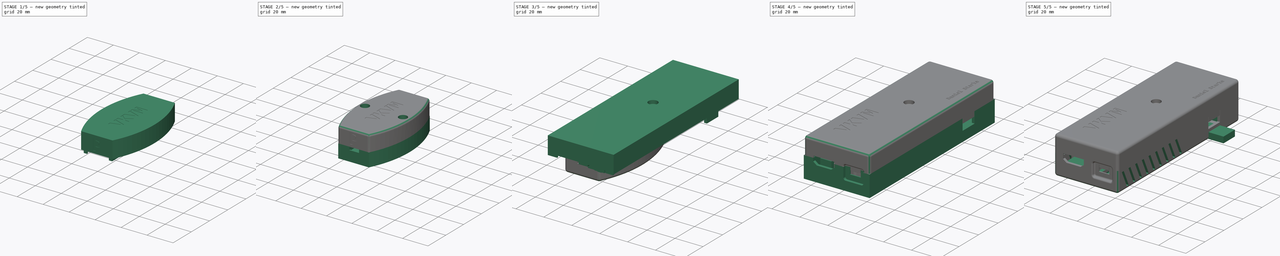
[diagram: build sequence overview — one tinted view per stage of 5, left to right]
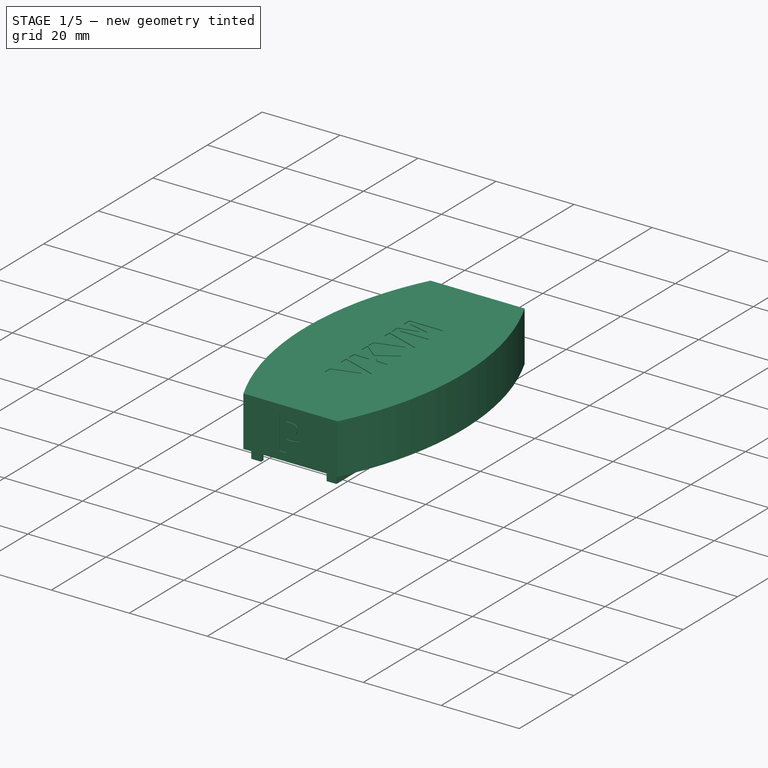
[diagram: stage 1 of 5 — iso view after this stage's code; geometry added in this stage tinted green]
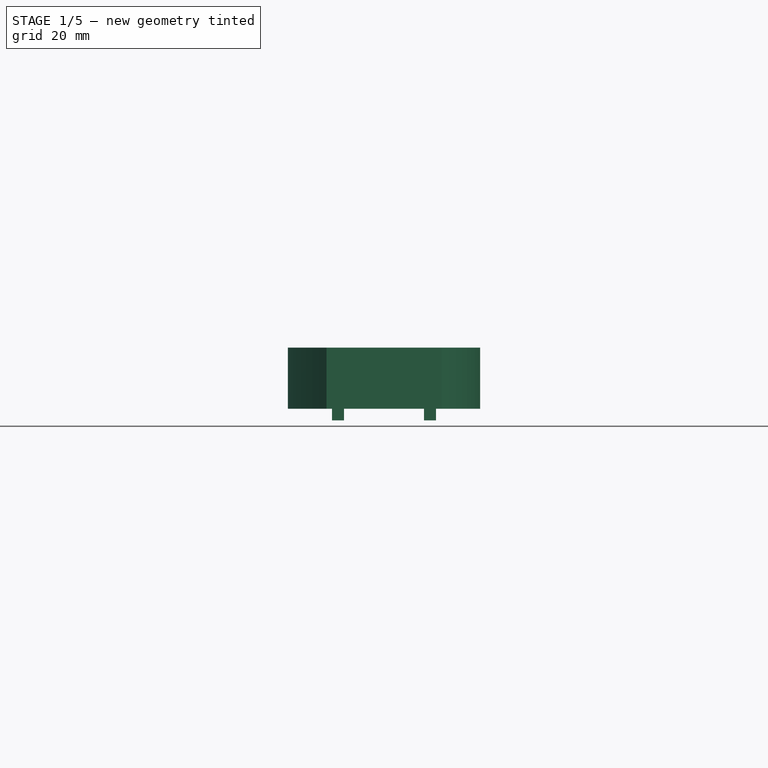
[diagram: stage 1 of 5 — front view after this stage's code; geometry added in this stage tinted green]
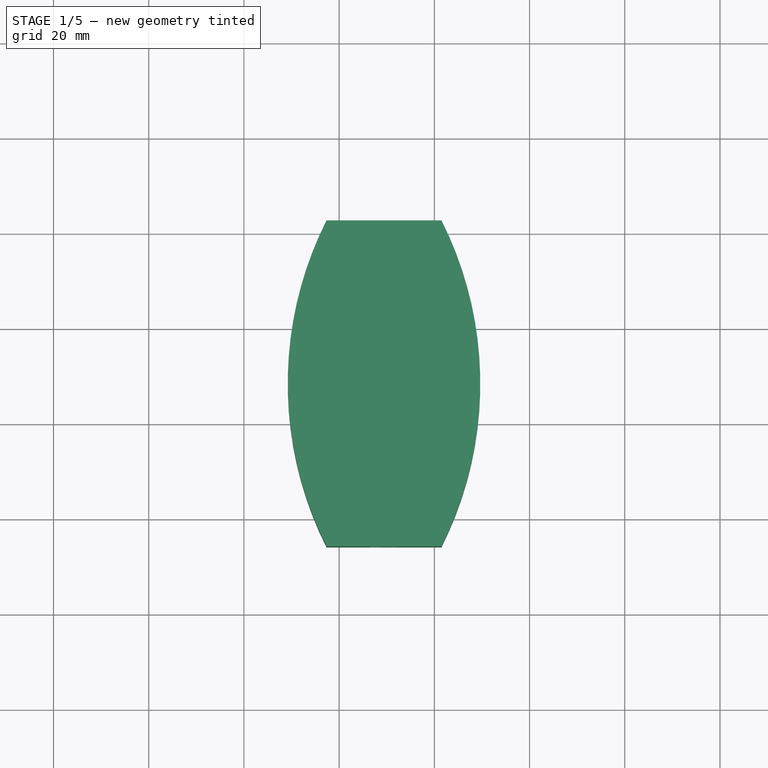
[diagram: stage 1 of 5 — top view after this stage's code; geometry added in this stage tinted green]
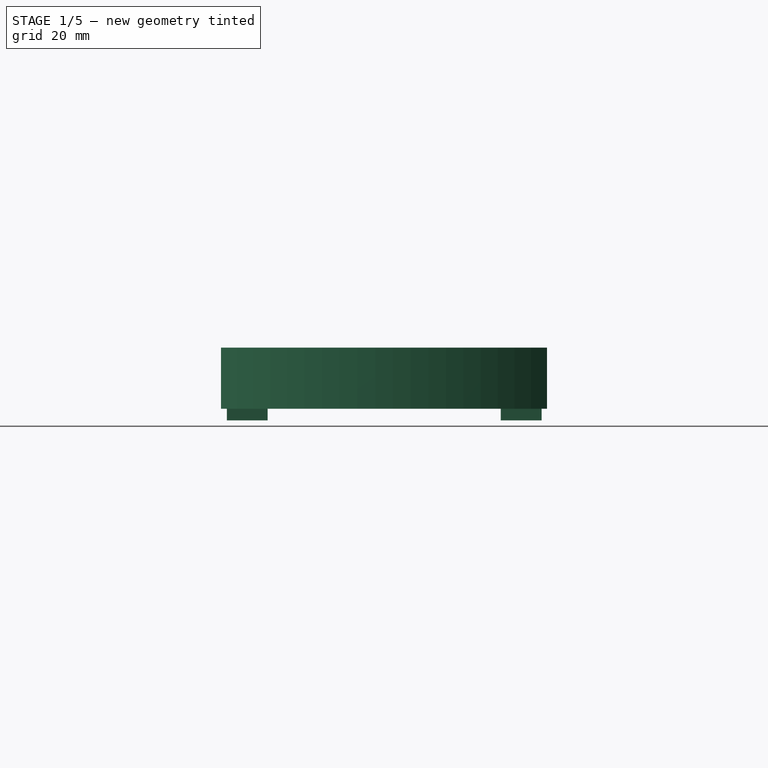
[diagram: stage 1 of 5 — right view after this stage's code; geometry added in this stage tinted green]
FCSTD DOCUMENT  (FreeCAD 0.21R33668 +7 (Git))
Label: Case
License: All rights reserved
LicenseURL: http://en.wikipedia.org/wiki/All_rights_reserved
objects: Sketcher::SketchObject×62, PartDesign::Pocket×38, PartDesign::Pad×24, PartDesign::Body×9, PartDesign::Fillet×9, PartDesign::Hole×5, Part::Part2DObjectPython×5, Spreadsheet::Sheet×2, Part::Compound×1, PartDesign::Chamfer×1
note: 231 computed .brp shape members not serialized (recipe doc carries the construction recipe); baked Part::Feature solids carry a one-line shape summary decoded from their .brp

FEATURE [Sketcher::SketchObject] Sketch  label="UsbHubSketch1"
  FullyConstrained = true
  MapMode = 5
  Support = -> [XY_Plane]
  expr: Constraints[10] = <<Params>>.USB_HUB_H
  expr: Constraints[9] = <<Params>>.USB_HUB_W
  sketch-geometry (4):
    g0: LineSegment StartX=0 StartY=46.74 StartZ=0 EndX=36.66 EndY=46.74 EndZ=0
    g1: LineSegment StartX=0 StartY=46.74 StartZ=0 EndX=0 EndY=0 EndZ=0
    g2: LineSegment StartX=36.66 StartY=46.74 StartZ=0 EndX=36.66 EndY=0 EndZ=0
    g3: LineSegment StartX=0 StartY=0 StartZ=0 EndX=36.66 EndY=0 EndZ=0
  constraints (11):
    c: Coincident(g2,g0)
    c: Coincident(g3,g2)
    c: Coincident(g1,g3)
    c: Coincident(g1,g-1)
    c: Coincident(g0,g1)
    c: Horizontal(g0)
    c: Horizontal(g3)
    c: Vertical(g1)
    c: Vertical(g2)
    c: DistanceX(g0,g0) = 36.66
    c: DistanceY(g2,g2) = 46.74
FEATURE [PartDesign::Pad] Pad  label="UsbHubPad1"
  AllowMultiFace = false
  Direction = (0,0,1)
  Length = 1.6
  Length2 = 100
  Profile = -> Sketch
  Type = 0
  expr: Length = <<Params>>.USB_HUB_D
FEATURE [PartDesign::Body] Body001  label="HdmiCapture"
  Group = -> [Sketch003,Pad003,Sketch004,Pad004,Sketch005,Pad005,Sketch006,Pocket]
  Origin = -> Origin001
  Placement = pos=(-3.45,-76,2.945) rot=(0,0,1;0rad)
  Tip = -> Pocket
  expr: .Placement.Base.x = Sketch001.Constraints.USB_B_X + <<Params>>.USB_B_W / 2 - <<Params>>.HDMI_CAP_W / 2
  expr: .Placement.Base.y = -(<<Params>>.HDMI_CAP_H + <<Params>>.USB_GAP)
  expr: .Placement.Base.z = <<Params>>.USB_HUB_D - <<Params>>.HDMI_CAP_D - <<Params>>.USB_A_O + <<Params>>.USB_B_D / 2 - <<Params>>.USB_A_D / 2
FEATURE [Sketcher::SketchObject] Sketch007  label="UsbSerSketch1"
  FullyConstrained = true
  MapMode = 5
  Support = -> [XY_Plane003]
  expr: Constraints[8] = <<Params>>.USB_SER_W
  expr: Constraints[9] = <<Params>>.USB_SER_H
  sketch-geometry (4):
    g0: LineSegment StartX=0 StartY=29.5 StartZ=0 EndX=17.25 EndY=29.5 EndZ=0
    g1: LineSegment StartX=17.25 StartY=29.5 StartZ=0 EndX=17.25 EndY=0 EndZ=0
    g2: LineSegment StartX=17.25 StartY=0 StartZ=0 EndX=0 EndY=0 EndZ=0
    g3: LineSegment StartX=0 StartY=0 StartZ=0 EndX=0 EndY=29.5 EndZ=0
  constraints (11):
    c: Coincident(g0,g1)
    c: Coincident(g1,g2)
    c: Coincident(g2,g3)
    c: Coincident(g3,g0)
    c: Horizontal(g0)
    c: Horizontal(g2)
    c: Vertical(g1)
    c: Vertical(g3)
    c: DistanceX(g0,g0) = 17.25
    c: DistanceY(g3,g3) = 29.5
    c: Coincident(g2,g-1)
FEATURE [PartDesign::Pad] Pad006  label="UsbSerPad1"
  AllowMultiFace = false
  Direction = (0,0,1)
  Length = 1.6
  Length2 = 100
  Profile = -> Sketch007
  Type = 0
  expr: Length = <<Params>>.USB_SER_D
FEATURE [Sketcher::SketchObject] Sketch008  label="UsbSerSketch2"
  AttachmentOffset = pos=(0,0,-1) rot=(0,0,1;0rad)
  FullyConstrained = true
  MapMode = 5
  Placement = pos=(0,0,0.6) rot=(0,0,1;0rad)
  Support = -> [Pad006]
  expr: .AttachmentOffset.Base.z = <<Params>>.USB_A_O
  expr: Constraints[10] = <<Params>>.USB_SER_H - 3.2 mm
  expr: Constraints[11] = (<<Params>>.USB_SER_W - <<Params>>.USB_A_H) / 2
  expr: Constraints[8] = <<Params>>.USB_A_H
  expr: Constraints[9] = <<Params>>.USB_A_W
  sketch-geometry (4):
    g0: LineSegment StartX=2.625 StartY=45.1 StartZ=0 EndX=14.625 EndY=45.1 EndZ=0
    g1: LineSegment StartX=14.625 StartY=45.1 StartZ=0 EndX=14.625 EndY=26.3 EndZ=0
    g2: LineSegment StartX=14.625 StartY=26.3 StartZ=0 EndX=2.625 EndY=26.3 EndZ=0
    g3: LineSegment StartX=2.625 StartY=26.3 StartZ=0 EndX=2.625 EndY=45.1 EndZ=0
  constraints (12):
    c: Coincident(g0,g1)
    c: Coincident(g1,g2)
    c: Coincident(g2,g3)
    c: Coincident(g3,g0)
    c: Horizontal(g0)
    c: Horizontal(g2)
    c: Vertical(g1)
    c: Vertical(g3)
    c: DistanceX(g0,g0) = 12
    c: DistanceY(g3,g3) = 18.8
    c: DistanceY(g-1,g2) = 26.3
    c: DistanceX(g-1,g2) = 2.625
FEATURE [PartDesign::Pad] Pad007  label="UsbSerPad2"
  AllowMultiFace = false
  BaseFeature = -> Pad006
  Direction = (0,0,1)
  Length = 4.5
  Length2 = 100
  Profile = -> Sketch008
  Type = 0
  expr: Length = <<Params>>.USB_A_D
FEATURE [Sketcher::SketchObject] Sketch009  label="UsbSerSketch3"
  FullyConstrained = true
  MapMode = 5
  Placement = pos=(0,0,1.6) rot=(0,0,1;0rad)
  Support = -> [Pad007]
  expr: .Constraints.HEADER_W = <<Params>>.PIN_HEAD_W * 6
  expr: .Constraints.PIN_X = (<<Params>>.USB_SER_W - .Constraints.HEADER_W) / 2
  expr: Constraints[9] = <<Params>>.PIN_HEAD_W
  sketch-geometry (4):
    g0: LineSegment StartX=1.005 StartY=2.84 StartZ=0 EndX=16.245 EndY=2.84 EndZ=0
    g1: LineSegment StartX=16.245 StartY=2.84 StartZ=0 EndX=16.245 EndY=0.3 EndZ=0
    g2: LineSegment StartX=16.245 StartY=0.3 StartZ=0 EndX=1.005 EndY=0.3 EndZ=0
    g3: LineSegment StartX=1.005 StartY=0.3 StartZ=0 EndX=1.005 EndY=2.84 EndZ=0
  constraints (12):
    c: Coincident(g0,g1)
    c: Coincident(g1,g2)
    c: Coincident(g2,g3)
    c: Coincident(g3,g0)
    c: Horizontal(g0)
    c: Horizontal(g2)
    c: Vertical(g1)
    c: Vertical(g3)
    c: DistanceX(g0,g0) = 15.24  'HEADER_W'
    c: DistanceY(g1,g1) = 2.54
    c: DistanceX(g-1,g2) = 1.005  'PIN_X'
    c: DistanceY(g-1,g2) = 0.3  'PIN_Y'
FEATURE [PartDesign::Pad] Pad008  label="UsbSerPad3"
  AllowMultiFace = false
  BaseFeature = -> Pad007
  Direction = (0,0,1)
  Length = 3
  Length2 = 100
  Profile = -> Sketch009
  Refine = true
  Type = 0
  expr: Length = <<Params>>.PIN_HEAD_D
FEATURE [PartDesign::Body] Body003  label="UsbSer"
  Group = -> [Sketch007,Pad006,Sketch008,Pad007,Sketch009,Pad008]
  Origin = -> Origin003
  Placement = pos=(19.535,-40.5,2.245) rot=(0,0,1;0rad)
  Tip = -> Pad008
  expr: .Placement.Base.x = Sketch001.Constraints.USB_B_X + <<Params>>.USB_B_W * 1.5 + Sketch001.Constraints.USB_GAP_X - <<Params>>.USB_SER_W / 2
  expr: .Placement.Base.y = -(<<Params>>.USB_SER_H + <<Params>>.USB_GAP)
  expr: .Placement.Base.z = <<Params>>.USB_HUB_D - <<Params>>.USB_SER_D - <<Params>>.USB_A_O + <<Params>>.USB_B_D / 2 - <<Params>>.USB_A_D / 2
FEATURE [Sketcher::SketchObject] Sketch010  label="UsbHidSketch1"
  FullyConstrained = true
  MapMode = 5
  Support = -> [XY_Plane004]
  expr: Constraints[8] = <<Params>>.USB_HID_W
  expr: Constraints[9] = <<Params>>.USB_HID_H
  sketch-geometry (4):
    g0: LineSegment StartX=0 StartY=33.15 StartZ=0 EndX=17.9 EndY=33.15 EndZ=0
    g1: LineSegment StartX=17.9 StartY=33.15 StartZ=0 EndX=17.9 EndY=0 EndZ=0
    g2: LineSegment StartX=17.9 StartY=0 StartZ=0 EndX=0 EndY=0 EndZ=0
    g3: LineSegment StartX=0 StartY=0 StartZ=0 EndX=0 EndY=33.15 EndZ=0
  constraints (11):
    c: Coincident(g0,g1)
    c: Coincident(g1,g2)
    c: Coincident(g2,g3)
    c: Coincident(g3,g0)
    c: Horizontal(g0)
    c: Horizontal(g2)
    c: Vertical(g1)
    c: Vertical(g3)
    c: DistanceX(g0,g0) = 17.9
    c: DistanceY(g3,g3) = 33.15
    c: Coincident(g2,g-1)
FEATURE [PartDesign::Pad] Pad009  label="UsbHidPad1"
  AllowMultiFace = false
  Direction = (0,0,1)
  Length = 1.6
  Length2 = 100
  Profile = -> Sketch010
  Type = 0
  expr: Length = <<Params>>.USB_HID_D
FEATURE [Sketcher::SketchObject] Sketch011  label="UsbHidSketch2"
  FullyConstrained = true
  MapMode = 5
  Placement = pos=(0,0,1.6) rot=(0,0,1;0rad)
  Support = -> [Pad009]
  expr: .Constraints.PIN_X = (<<Params>>.USB_HID_W - <<Params>>.PIN_HEAD_W * 7) / 2
  expr: Constraints[16] = <<Params>>.PIN_HEAD_W
  expr: Constraints[17] = <<Params>>.PIN_HEAD_W * 12
  expr: Constraints[21] = <<Params>>.USB_HID_H - <<Params>>.PIN_HEAD_W * 12
  expr: Constraints[22] = <<Params>>.PIN_HEAD_W * 7
  sketch-geometry (8):
    g0: LineSegment StartX=0.06 StartY=33.15 StartZ=0 EndX=2.6 EndY=33.15 EndZ=0
    g1: LineSegment StartX=2.6 StartY=33.15 StartZ=0 EndX=2.6 EndY=2.67 EndZ=0
    g2: LineSegment StartX=2.6 StartY=2.67 StartZ=0 EndX=0.06 EndY=2.67 EndZ=0
    g3: LineSegment StartX=0.06 StartY=2.67 StartZ=0 EndX=0.06 EndY=33.15 EndZ=0
    g4: LineSegment StartX=15.3 StartY=33.15 StartZ=0 EndX=17.84 EndY=33.15 EndZ=0
    g5: LineSegment StartX=17.84 StartY=33.15 StartZ=0 EndX=17.84 EndY=2.67 EndZ=0
    g6: LineSegment StartX=17.84 StartY=2.67 StartZ=0 EndX=15.3 EndY=2.67 EndZ=0
    g7: LineSegment StartX=15.3 StartY=2.67 StartZ=0 EndX=15.3 EndY=33.15 EndZ=0
  constraints (24):
    c: Coincident(g0,g1)
    c: Coincident(g1,g2)
    c: Coincident(g2,g3)
    c: Coincident(g3,g0)
    c: Horizontal(g0)
    c: Horizontal(g2)
    c: Vertical(g1)
    c: Vertical(g3)
    c: Coincident(g4,g5)
    c: Coincident(g5,g6)
    c: Coincident(g6,g7)
    c: Coincident(g7,g4)
    c: Horizontal(g4)
    c: Horizontal(g6)
    c: Vertical(g5)
    c: Vertical(g7)
    c: DistanceX(g0,g0) = 2.54
    c: DistanceY(g3,g3) = 30.48
    c: Equal(g4,g0)
    c: Equal(g7,g3)
    c: Horizontal(g0,g4)
    c: DistanceY(g-1,g2) = 2.67
    c: DistanceX(g0,g4) = 17.78
    c: DistanceX(g-1,g2) = 0.06  'PIN_X'
FEATURE [PartDesign::Pad] Pad010  label="UsbHidPad2"
  AllowMultiFace = false
  BaseFeature = -> Pad009
  Direction = (0,0,1)
  Length = 3
  Length2 = 100
  Profile = -> Sketch011
  Type = 0
  expr: Length = <<Params>>.PIN_HEAD_D
FEATURE [Sketcher::SketchObject] Sketch012  label="UsbHidSketch3"
  FullyConstrained = true
  MapMode = 5
  Placement = pos=(0,0,1.6) rot=(0,0,1;0rad)
  Support = -> [Pad010]
  expr: Constraints[10] = (<<Params>>.USB_HID_W - <<Params>>.USB_M_W) / 2
  expr: Constraints[11] = <<Params>>.USB_M_O
  expr: Constraints[8] = <<Params>>.USB_M_W
  expr: Constraints[9] = <<Params>>.USB_M_H
  sketch-geometry (4):
    g0: LineSegment StartX=5.25 StartY=4.06 StartZ=0 EndX=12.65 EndY=4.06 EndZ=0
    g1: LineSegment StartX=12.65 StartY=4.06 StartZ=0 EndX=12.65 EndY=-0.94 EndZ=0
    g2: LineSegment StartX=12.65 StartY=-0.94 StartZ=0 EndX=5.25 EndY=-0.94 EndZ=0
    g3: LineSegment StartX=5.25 StartY=-0.94 StartZ=0 EndX=5.25 EndY=4.06 EndZ=0
  constraints (12):
    c: Coincident(g0,g1)
    c: Coincident(g1,g2)
    c: Coincident(g2,g3)
    c: Coincident(g3,g0)
    c: Horizontal(g0)
    c: Horizontal(g2)
    c: Vertical(g1)
    c: Vertical(g3)
    c: DistanceX(g0,g0) = 7.4
    c: DistanceY(g1,g1) = 5
    c: DistanceX(g-1,g0) = 5.25
    c: DistanceY(g2,g-1) = 0.94
FEATURE [Sketcher::SketchObject] Sketch013  label="SerSketch1"
  FullyConstrained = true
  MapMode = 5
  Support = -> [XY_Plane005]
  expr: Constraints[8] = <<Params>>.SER_W
  expr: Constraints[9] = <<Params>>.SER_H
  sketch-geometry (4):
    g0: LineSegment StartX=0 StartY=0 StartZ=0 EndX=17.78 EndY=0 EndZ=0
    g1: LineSegment StartX=17.78 StartY=0 StartZ=0 EndX=17.78 EndY=35.56 EndZ=0
    g2: LineSegment StartX=17.78 StartY=35.56 StartZ=0 EndX=0 EndY=35.56 EndZ=0
    g3: LineSegment StartX=0 StartY=35.56 StartZ=0 EndX=0 EndY=0 EndZ=0
  constraints (11):
    c: Coincident(g0,g1)
    c: Coincident(g1,g2)
    c: Coincident(g2,g3)
    c: Coincident(g3,g0)
    c: Horizontal(g0)
    c: Horizontal(g2)
    c: Vertical(g1)
    c: Vertical(g3)
    c: DistanceX(g2,g2) = 17.78
    c: DistanceY(g3,g3) = 35.56
    c: Coincident(g0,g-1)
FEATURE [PartDesign::Pad] Pad012  label="SerPad1"
  AllowMultiFace = false
  Direction = (0,0,1)
  Length = 1.15
  Length2 = 100
  Profile = -> Sketch013
  Type = 0
  expr: Length = <<Params>>.SER_D
FEATURE [Sketcher::SketchObject] Sketch014  label="SerSketch2"
  FullyConstrained = true
  MapMode = 5
  Placement = pos=(0,0,0) rot=(1,0,0;3.14159rad)
  Support = -> [Pad012]
  expr: Constraints[17] = <<Params>>.PIN_HEAD_W * 12
  expr: Constraints[33] = <<Params>>.PIN_HEAD_W * 6
  expr: Constraints[34] = <<Params>>.PIN_HEAD_W
  expr: Constraints[8] = <<Params>>.PIN_HEAD_W
  sketch-geometry (12):
    g0: LineSegment StartX=0 StartY=-33.02 StartZ=0 EndX=15.24 EndY=-33.02 EndZ=0
    g1: LineSegment StartX=15.24 StartY=-33.02 StartZ=0 EndX=15.24 EndY=-35.56 EndZ=0
    g2: LineSegment StartX=15.24 StartY=-35.56 StartZ=0 EndX=0 EndY=-35.56 EndZ=0
    g3: LineSegment StartX=0 StartY=-35.56 StartZ=0 EndX=0 EndY=-33.02 EndZ=0
    g4: LineSegment StartX=0 StartY=0 StartZ=0 EndX=2.54 EndY=0 EndZ=0
    g5: LineSegment StartX=2.54 StartY=0 StartZ=0 EndX=2.54 EndY=-30.48 EndZ=0
    g6: LineSegment StartX=2.54 StartY=-30.48 StartZ=0 EndX=0 EndY=-30.48 EndZ=0
    g7: LineSegment StartX=0 StartY=-30.48 StartZ=0 EndX=0 EndY=0 EndZ=0
    g8: LineSegment StartX=15.24 StartY=0 StartZ=0 EndX=17.78 EndY=0 EndZ=0
    g9: LineSegment StartX=17.78 StartY=0 StartZ=0 EndX=17.78 EndY=-30.48 EndZ=0
    g10: LineSegment StartX=17.78 StartY=-30.48 StartZ=0 EndX=15.24 EndY=-30.48 EndZ=0
    g11: LineSegment StartX=15.24 StartY=-30.48 StartZ=0 EndX=15.24 EndY=0 EndZ=0
  constraints (35):
    c: Coincident(g0,g1)
    c: Coincident(g1,g2)
    c: Coincident(g2,g3)
    c: Coincident(g3,g0)
    c: Horizontal(g0)
    c: Horizontal(g2)
    c: Vertical(g1)
    c: Vertical(g3)
    c: DistanceY(g1,g1) = 2.54
    c: Coincident(g4,g5)
    c: Coincident(g5,g6)
    c: Coincident(g6,g7)
    c: Coincident(g7,g4)
    c: Horizontal(g4)
    c: Horizontal(g6)
    c: Vertical(g5)
    c: Vertical(g7)
    c: DistanceY(g7,g7) = 30.48
    c: Coincident(g8,g9)
    c: Coincident(g9,g10)
    c: Coincident(g10,g11)
    c: Coincident(g11,g8)
    c: Horizontal(g8)
    c: Vertical(g9)
    c: Vertical(g11)
    c: Equal(g4,g8)
    c: Equal(g11,g7)
    c: Horizontal(g8,g4)
    c: Equal(g4,g1)
    c: Vertical(g0,g-1)
    c: Horizontal(g10)
    c: Coincident(g4,g-1)
    c: Vertical(g0,g10)
    c: DistanceX(g2,g2) = 15.24
    c: DistanceY(g0,g6) = 2.54
FEATURE [PartDesign::Pad] Pad013  label="SerPad2"
  AllowMultiFace = false
  BaseFeature = -> Pad012
  Direction = (0,0,-1)
  Length = 3
  Length2 = 100
  Profile = -> Sketch014
  Refine = true
  Type = 0
  expr: Length = <<Params>>.PIN_HEAD_D
FEATURE [PartDesign::Body] Body005  label="Ser"
  Group = -> [Sketch013,Pad012,Sketch014,Pad013]
  Origin = -> Origin005
  Placement = pos=(20.54,-73.22,12.845) rot=(0,0,1;0rad)
  Tip = -> Pad013
  expr: .Placement.Base.x = <<UsbSer>>.Placement.Base.x + <<UsbSerSketch3>>.Constraints.PIN_X
  expr: .Placement.Base.y = <<UsbSer>>.Placement.Base.y + <<UsbSerSketch3>>.Constraints.PIN_Y + <<Params>>.PIN_HEAD_W - <<Params>>.SER_H
  expr: .Placement.Base.z = <<UsbSer>>.Placement.Base.z + <<Params>>.USB_SER_D + 2 * <<Params>>.PIN_HEAD_D + 3 mm
FEATURE [PartDesign::Pad] Pad011  label="UsbHidPad03"
  AllowMultiFace = false
  BaseFeature = -> Pad010
  Direction = (0,0,1)
  Length = 2.35
  Length2 = 100
  Profile = -> Sketch012
  Refine = true
  Type = 0
  expr: Length = <<Params>>.USB_M_D
FEATURE [Sketcher::SketchObject] Sketch058  label="SmallCaseBSketch1"
  AttachmentOffset = pos=(0,0,10.65) rot=(0,0,1;0rad)
  FullyConstrained = true
  MapMode = 5
  Placement = pos=(0,0,10.65) rot=(0,0,1;0rad)
  Support = -> [XY_Plane009]
  expr: .AttachmentOffset.Base.z = <<Params>>.SMALL_CASE_A_D
  expr: Constraints[10] = <<SmallCaseASketch1>>.Constraints.WIDTH
  expr: Constraints[11] = <<SmallCaseASketch1>>.Constraints.HEIGHT
  expr: Constraints[15] = <<SmallCaseASketch1>>.Constraints.HEIGHT / 2
  expr: Constraints[16] = 2 * <<Params>>.SMALL_CASE_SCREW + <<Params>>.WALL + <<Params>>.GAP_XY
  expr: Constraints[20] = 2 * <<Params>>.SMALL_CASE_SCREW + <<Params>>.WALL + <<Params>>.GAP_XY
  expr: Constraints[21] = <<SmallCaseASketch1>>.Constraints.HEIGHT / 2
  expr: Constraints[8] = <<SmallCaseASketch1>>.Constraints.OFFSET_LEFT_X
  expr: Constraints[9] = <<SmallCaseASketch1>>.Constraints.OFFSET_LEFT_Y
  sketch-geometry (8):
    g0: LineSegment StartX=-2.65 StartY=2.65 StartZ=0 EndX=21.495 EndY=2.65 EndZ=0
    g1: LineSegment StartX=21.495 StartY=2.65 StartZ=0 EndX=21.495 EndY=-65.85 EndZ=0
    g2: LineSegment StartX=21.495 StartY=-65.85 StartZ=0 EndX=-2.65 EndY=-65.85 EndZ=0
    g3: LineSegment StartX=-2.65 StartY=-65.85 StartZ=0 EndX=-2.65 EndY=2.65 EndZ=0
    g4: ArcOfCircle CenterX=65.242 CenterY=-31.6 CenterZ=0 NormalX=0 NormalY=0 NormalZ=1 AngleXU=0 Radius=76.042 StartAngle=2.67437 EndAngle=3.60882
    g5: GeomPoint X=-10.8 Y=-31.6 Z=0
    g6: ArcOfCircle CenterX=-46.397 CenterY=-31.6 CenterZ=0 NormalX=0 NormalY=0 NormalZ=1 AngleXU=0 Radius=76.042 StartAngle=5.81596 EndAngle=6.75041
    g7: GeomPoint X=29.645 Y=-31.6 Z=0
  constraints (22):
    c: Coincident(g0,g1)
    c: Coincident(g1,g2)
    c: Coincident(g2,g3)
    c: Coincident(g3,g0)
    c: Horizontal(g0)
    c: Horizontal(g2)
    c: Vertical(g1)
    c: Vertical(g3)
    c: DistanceX(g0,g-1) = 2.65
    c: DistanceY(g-1,g0) = 2.65
    c: DistanceX(g0,g0) = 24.145
    c: DistanceY(g3,g3) = 68.5
    c: Coincident(g4,g0)
    c: Coincident(g4,g2)
    c: PointOnObject(g5,g4)
    c: DistanceY(g2,g5) = 34.25
    c: DistanceX(g5,g2) = 8.15
    c: Coincident(g6,g2)
    c: Coincident(g0,g6)
    c: PointOnObject(g7,g6)
    c: DistanceX(g2,g7) = 8.15
    c: DistanceY(g2,g7) = 34.25
FEATURE [PartDesign::Pad] Pad022  label="SmallCaseBPad1"
  AllowMultiFace = false
  Direction = (0,0,1)
  Length = 12.85
  Length2 = 100
  Profile = -> Sketch058
  Type = 0
  expr: Length = <<LaterParams>>.SMALL_CASE_B_D
FEATURE [Spreadsheet::Sheet] Spreadsheet001  label="LaterParams"
  cells = A1='Key; B1='Value; C1='Comment; D1='Seen From; A2='SMALL_CASE_B_D; B2(SMALL_CASE_B_D)==abs(<<Ser>>.Placement.Base.z - <<UsbHid>>.Placement.Base.z) + <<Params>>.SER_D + 3 mm + <<Params>>.WALL + <<Params>>.GAP_Z - <<Params>>.USB_HID_D - (<<Params>>.USB_M_D + abs(<<Params>>.USB_SER_D - <<Params>>.USB_HID_D)); C2='depth of the upper small case; D2='top view
FEATURE [Sketcher::SketchObject] Sketch059  label="SmallCaseBSketch2"
  AttachmentOffset = pos=(0,0,10.65) rot=(0,0,1;0rad)
  FullyConstrained = true
  MapMode = 5
  Placement = pos=(0,0,10.65) rot=(0,0,1;0rad)
  Support = -> [XY_Plane009]
  expr: .AttachmentOffset.Base.z = <<Params>>.SMALL_CASE_A_D
  expr: Constraints[10] = <<SmallCaseASketch1>>.Constraints.WIDTH - 2 * <<Params>>.WALL
  expr: Constraints[11] = <<SmallCaseASketch1>>.Constraints.HEIGHT - <<Params>>.WALL - <<Params>>.USB_M_O - <<SmallCaseASketch7>>.Constraints.STAND_WALL1
  expr: Constraints[8] = <<Params>>.SPACE_XY + <<Params>>.GAP_XY
  expr: Constraints[9] = <<Params>>.SPACE_XY + <<Params>>.GAP_XY
  sketch-geometry (4):
    g0: LineSegment StartX=-0.65 StartY=0.65 StartZ=0 EndX=19.495 EndY=0.65 EndZ=0
    g1: LineSegment StartX=19.495 StartY=0.65 StartZ=0 EndX=19.495 EndY=-63.76 EndZ=0
    g2: LineSegment StartX=19.495 StartY=-63.76 StartZ=0 EndX=-0.65 EndY=-63.76 EndZ=0
    g3: LineSegment StartX=-0.65 StartY=-63.76 StartZ=0 EndX=-0.65 EndY=0.65 EndZ=0
  constraints (12):
    c: Coincident(g0,g1)
    c: Coincident(g1,g2)
    c: Coincident(g2,g3)
    c: Coincident(g3,g0)
    c: Horizontal(g0)
    c: Horizontal(g2)
    c: Vertical(g1)
    c: Vertical(g3)
    c: DistanceX(g0,g-1) = 0.65
    c: DistanceY(g-1,g0) = 0.65
    c: DistanceX(g0,g0) = 20.145
    c: DistanceY(g3,g3) = 64.41
FEATURE [PartDesign::Pocket] Pocket034  label="SmallCaseBPocket1"
  AllowMultiFace = false
  BaseFeature = -> Pad022
  Direction = (0,0,-1)
  Length = 10.85
  Length2 = 100
  Profile = -> Sketch059
  Reversed = true
  Type = 0
  expr: Length = <<LaterParams>>.SMALL_CASE_B_D - <<Params>>.WALL
FEATURE [Sketcher::SketchObject] Sketch060  label="SmallCaseBSketch3"
  AttachmentOffset = pos=(0,0,10.65) rot=(0,0,1;0rad)
  FullyConstrained = true
  MapMode = 5
  Placement = pos=(0,0,10.65) rot=(0,0,1;0rad)
  Support = -> [XY_Plane009]
  expr: .AttachmentOffset.Base.z = <<Params>>.SMALL_CASE_A_D
  expr: Constraints[10] = <<Params>>.USB_A_H + 2 * <<Params>>.GAP_XY
  expr: Constraints[11] = <<Params>>.WALL
  expr: Constraints[8] = (<<Params>>.USB_SER_W - <<Params>>.USB_A_H) / 2 - <<Params>>.GAP_XY
  expr: Constraints[9] = <<Params>>.SPACE_XY + <<Params>>.GAP_XY
  sketch-geometry (4):
    g0: LineSegment StartX=2.475 StartY=2.65 StartZ=0 EndX=14.775 EndY=2.65 EndZ=0
    g1: LineSegment StartX=14.775 StartY=2.65 StartZ=0 EndX=14.775 EndY=0.65 EndZ=0
    g2: LineSegment StartX=14.775 StartY=0.65 StartZ=0 EndX=2.475 EndY=0.65 EndZ=0
    g3: LineSegment StartX=2.475 StartY=0.65 StartZ=0 EndX=2.475 EndY=2.65 EndZ=0
  constraints (12):
    c: Coincident(g0,g1)
    c: Coincident(g1,g2)
    c: Coincident(g2,g3)
    c: Coincident(g3,g0)
    c: Horizontal(g0)
    c: Horizontal(g2)
    c: Vertical(g1)
    c: Vertical(g3)
    c: DistanceX(g-1,g2) = 2.475
    c: DistanceY(g-1,g2) = 0.65
    c: DistanceX(g0,g0) = 12.3
    c: DistanceY(g3,g3) = 2
FEATURE [PartDesign::Pocket] Pocket035  label="SmallCaseBPocket2"
  AllowMultiFace = false
  BaseFeature = -> Pocket034
  Direction = (0,0,-1)
  Length = 1.15
  Length2 = 100
  Profile = -> Sketch060
  Reversed = true
  Type = 0
  expr: Length = abs(<<UsbSer>>.Placement.Base.z - <<UsbHid>>.Placement.Base.z) - <<Params>>.USB_M_D + <<Params>>.USB_A_O + <<Params>>.USB_A_D
FEATURE [Sketcher::SketchObject] Sketch061  label="SmallCaseBSketch4"
  AttachmentOffset = pos=(0,0,10.65) rot=(0,0,1;0rad)
  FullyConstrained = true
  MapMode = 5
  Placement = pos=(0,0,10.65) rot=(0,0,1;0rad)
  Support = -> [XY_Plane009]
  expr: .AttachmentOffset.Base.z = <<Params>>.SMALL_CASE_A_D
  expr: Constraints[12] = <<Params>>.SPACE_XY + <<Params>>.GAP_XY
  expr: Constraints[13] = <<Params>>.SPACE_XY + <<Params>>.GAP_XY
  expr: Constraints[14] = <<SmallCaseASketch7>>.Constraints.STAND_WALL1 - 2 * <<Params>>.GAP_XY
  expr: Constraints[16] = <<SmallCaseASketch7>>.Constraints.STAND_H - 2 * <<Params>>.GAP_XY
  expr: Constraints[17] = <<SmallCaseASketch7>>.Constraints.STAND_W - 2 * <<Params>>.GAP_XY
  expr: Constraints[30] = <<SmallCaseASketch1>>.Constraints.WIDTH - <<SmallCaseASketch1>>.Constraints.OFFSET_LEFT_X - <<Params>>.WALL
  expr: Constraints[52] = <<SmallCaseASketch1>>.Constraints.HEIGHT + <<SmallCaseASketch7>>.Constraints.STAND_WALL1 - <<Params>>.WALL - 4 * <<Params>>.GAP_XY - <<Params>>.USB_M_O
  sketch-geometry (24):
    g0: LineSegment StartX=-1.5 StartY=-7.075 StartZ=0 EndX=-0.65 EndY=-7.075 EndZ=0
    g1: LineSegment StartX=-0.65 StartY=-7.075 StartZ=0 EndX=-0.65 EndY=0.65 EndZ=0
    g2: LineSegment StartX=-0.65 StartY=0.65 StartZ=0 EndX=1.025 EndY=0.65 EndZ=0
    g3: LineSegment StartX=1.025 StartY=0.65 StartZ=0 EndX=1.025 EndY=1.5 EndZ=0
    g4: LineSegment StartX=1.025 StartY=1.5 StartZ=0 EndX=-1.5 EndY=1.5 EndZ=0
    g5: LineSegment StartX=-1.5 StartY=1.5 StartZ=0 EndX=-1.5 EndY=-7.075 EndZ=0
    g6: LineSegment StartX=17.82 StartY=1.5 StartZ=0 EndX=20.345 EndY=1.5 EndZ=0
    g7: LineSegment StartX=20.345 StartY=1.5 StartZ=0 EndX=20.345 EndY=-7.075 EndZ=0
    g8: LineSegment StartX=20.345 StartY=-7.075 StartZ=0 EndX=19.495 EndY=-7.075 EndZ=0
    g9: LineSegment StartX=19.495 StartY=-7.075 StartZ=0 EndX=19.495 EndY=0.65 EndZ=0
    g10: LineSegment StartX=19.495 StartY=0.65 StartZ=0 EndX=17.82 EndY=0.65 EndZ=0
    g11: LineSegment StartX=17.82 StartY=0.65 StartZ=0 EndX=17.82 EndY=1.5 EndZ=0
    g12: LineSegment StartX=-1.5 StartY=-56.035 StartZ=0 EndX=-1.5 EndY=-64.61 EndZ=0
    g13: LineSegment StartX=-1.5 StartY=-64.61 StartZ=0 EndX=1.025 EndY=-64.61 EndZ=0
    g14: LineSegment StartX=1.025 StartY=-64.61 StartZ=0 EndX=1.025 EndY=-63.76 EndZ=0
    g15: LineSegment StartX=1.025 StartY=-63.76 StartZ=0 EndX=-0.65 EndY=-63.76 EndZ=0
    g16: LineSegment StartX=-0.65 StartY=-63.76 StartZ=0 EndX=-0.65 EndY=-56.035 EndZ=0
    g17: LineSegment StartX=-0.65 StartY=-56.035 StartZ=0 EndX=-1.5 EndY=-56.035 EndZ=0
    g18: LineSegment StartX=19.495 StartY=-56.035 StartZ=0 EndX=20.345 EndY=-56.035 EndZ=0
    g19: LineSegment StartX=20.345 StartY=-56.035 StartZ=0 EndX=20.345 EndY=-64.61 EndZ=0
    g20: LineSegment StartX=20.345 StartY=-64.61 StartZ=0 EndX=17.82 EndY=-64.61 EndZ=0
    g21: LineSegment StartX=17.82 StartY=-64.61 StartZ=0 EndX=17.82 EndY=-63.76 EndZ=0
    g22: LineSegment StartX=17.82 StartY=-63.76 StartZ=0 EndX=19.495 EndY=-63.76 EndZ=0
    g23: LineSegment StartX=19.495 StartY=-63.76 StartZ=0 EndX=19.495 EndY=-56.035 EndZ=0
  constraints (72):
    c: Horizontal(g0)
    c: Coincident(g0,g1)
    c: Vertical(g1)
    c: Coincident(g1,g2)
    c: Horizontal(g2)
    c: Coincident(g2,g3)
    c: Vertical(g3)
    c: Coincident(g3,g4)
    c: Horizontal(g4)
    c: Coincident(g4,g5)
    c: Coincident(g5,g0)
    c: Vertical(g5)
    c: DistanceX(g1,g-1) = 0.65
    c: DistanceY(g-1,g1) = 0.65
    c: DistanceX(g0,g0) = 0.85
    c: Equal(g3,g0)
    c: DistanceY(g1,g1) = 7.725
    c: DistanceX(g2,g2) = 1.675
    c: Horizontal(g6)
    c: Coincident(g6,g7)
    c: Vertical(g7)
    c: Coincident(g7,g8)
    c: Horizontal(g8)
    c: Coincident(g8,g9)
    c: Vertical(g9)
    c: Coincident(g9,g10)
    c: Horizontal(g10)
    c: Coincident(g10,g11)
    c: Coincident(g11,g6)
    c: Vertical(g11)
    c: DistanceX(g-1,g9) = 19.495
    c: Horizontal(g10,g2)
    c: Equal(g3,g11)
    c: Equal(g6,g4)
    c: Equal(g10,g2)
    c: Equal(g9,g1)
    c: Vertical(g12)
    c: Coincident(g12,g13)
    c: Horizontal(g13)
    c: Coincident(g13,g14)
    c: Vertical(g14)
    c: Coincident(g14,g15)
    c: Horizontal(g15)
    c: Coincident(g15,g16)
    c: Vertical(g16)
    c: Coincident(g16,g17)
    c: Coincident(g17,g12)
    c: Horizontal(g17)
    c: Equal(g17,g0)
    c: Vertical(g16,g0)
    c: Equal(g14,g17)
    c: Equal(g12,g5)
    c: DistanceY(g12,g4) = 66.11
    c: Vertical(g14,g2)
    c: Horizontal(g18)
    c: Coincident(g18,g19)
    c: Vertical(g19)
    c: Coincident(g19,g20)
    c: Horizontal(g20)
    c: Coincident(g20,g21)
    c: Coincident(g21,g22)
    c: Horizontal(g22)
    c: Coincident(g22,g23)
    c: Coincident(g23,g18)
    c: Vertical(g23)
    c: Vertical(g21)
    c: Equal(g21,g14)
    c: Horizontal(g21,g14)
    c: Equal(g23,g16)
    c: Vertical(g18,g8)
    c: Equal(g18,g17)
    c: Equal(g22,g15)
FEATURE [PartDesign::Pad] Pad023  label="SmallCaseBPad2"
  AllowMultiFace = false
  BaseFeature = -> Pocket035
  Direction = (0,0,1)
  Length = 2.45
  Length2 = 100
  Profile = -> Sketch061
  Reversed = true
  Type = 0
  expr: Length = <<Params>>.SMALL_CASE_A_L - <<Params>>.GAP_Z
FEATURE [Part::Part2DObjectPython] ShapeString002  label="SmallCaseBLabel1"  # Draft 2D object (typed FeaturePython)
  FontFile = LiberationMono-Bold.ttf
  Placement = pos=(13.8325,-47.24,23.5) rot=(0,0,1;1.5708rad)
  Size = 10
  String = VKVM
  Tracking = 0
  expr: .Placement.Base.x = -<<SmallCaseASketch1>>.Constraints.OFFSET_LEFT_X + <<SmallCaseASketch1>>.Constraints.WIDTH - (<<SmallCaseASketch1>>.Constraints.WIDTH - 0.882 * <<Params>>.LABEL_H) / 2
  expr: .Placement.Base.y = <<SmallCaseASketch1>>.Constraints.OFFSET_LEFT_Y - (<<SmallCaseASketch1>>.Constraints.HEIGHT + 3.128 * <<Params>>.LABEL_H) / 2
  expr: .Placement.Base.z = <<Params>>.SMALL_CASE_A_D + <<LaterParams>>.SMALL_CASE_B_D
  expr: Size = <<Params>>.LABEL_H
FEATURE [PartDesign::Pocket] Pocket036  label="SmallCaseBPocket3"
  AllowMultiFace = false
  BaseFeature = -> Pad023
  Direction = (0,0,-1)
  Length = 0.2
  Length2 = 100
  Profile = -> ShapeString002
  Type = 0
  expr: Length = <<Params>>.WALL * 0.1
FEATURE [Part::Part2DObjectPython] ShapeString003  label="SmallCaseBLabel2"  # Draft 2D object (typed FeaturePython)
  FontFile = LiberationMono-Bold.ttf
  Placement = pos=(13.4025,2.65,12.65) rot=(0,0.707107,0.707107;3.14159rad)
  Size = 10
  String = C
  Tracking = 0
  expr: .Placement.Base.x = -<<SmallCaseASketch1>>.Constraints.OFFSET_LEFT_X + (<<SmallCaseASketch1>>.Constraints.WIDTH + 0.796 * <<Params>>.LABEL_H) / 2
  expr: .Placement.Base.y = <<SmallCaseASketch1>>.Constraints.OFFSET_LEFT_Y
  expr: .Placement.Base.z = <<Params>>.SMALL_CASE_A_D + <<Params>>.WALL
  expr: Size = <<Params>>.LABEL_H
FEATURE [PartDesign::Pocket] Pocket037  label="SmallCaseBPocket4"
  AllowMultiFace = false
  BaseFeature = -> Pocket036
  Direction = (0,-1,2e-16)
  Length = 0.2
  Length2 = 100
  Profile = -> ShapeString003
  Type = 0
  expr: Length = <<Params>>.WALL * 0.1
FEATURE [Part::Part2DObjectPython] ShapeString004  label="SmallCaseBLabel3"  # Draft 2D object (typed FeaturePython)
  FontFile = LiberationMono-Bold.ttf
  Placement = pos=(5.6625,-65.85,12.65) rot=(1,0,0;1.5708rad)
  Size = 10
  String = P
  Tracking = 0
  expr: .Placement.Base.x = -<<SmallCaseASketch1>>.Constraints.OFFSET_LEFT_X + (<<SmallCaseASketch1>>.Constraints.WIDTH - 0.752 * <<Params>>.LABEL_H) / 2
  expr: .Placement.Base.y = <<SmallCaseASketch1>>.Constraints.OFFSET_LEFT_Y - <<SmallCaseASketch1>>.Constraints.HEIGHT
  expr: .Placement.Base.z = <<Params>>.SMALL_CASE_A_D + <<Params>>.WALL
FEATURE [PartDesign::Pocket] Pocket038  label="SmallCaseBPocket5"
  AllowMultiFace = false
  BaseFeature = -> Pocket037
  Direction = (0,1,-2e-16)
  Length = 0.2
  Length2 = 100
  Profile = -> ShapeString004
  Type = 0
  expr: Length = <<Params>>.WALL * 0.1
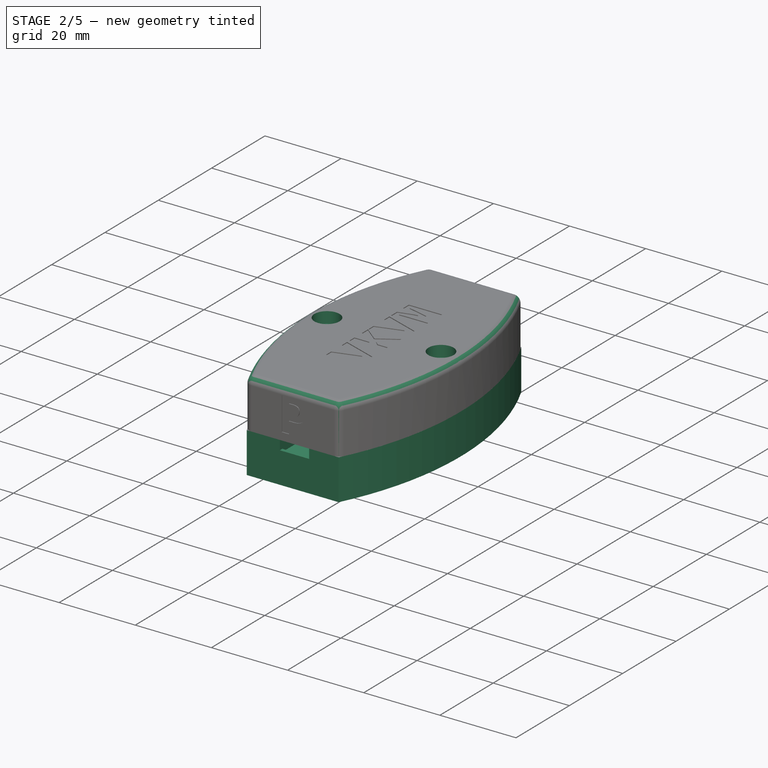
[diagram: stage 2 of 5 — iso view after this stage's code; geometry added in this stage tinted green]
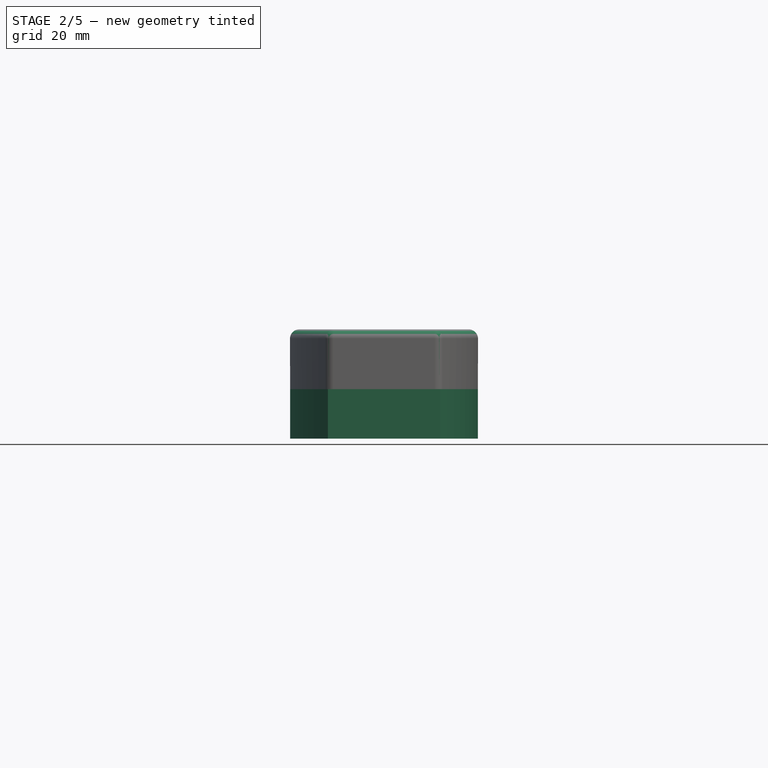
[diagram: stage 2 of 5 — front view after this stage's code; geometry added in this stage tinted green]
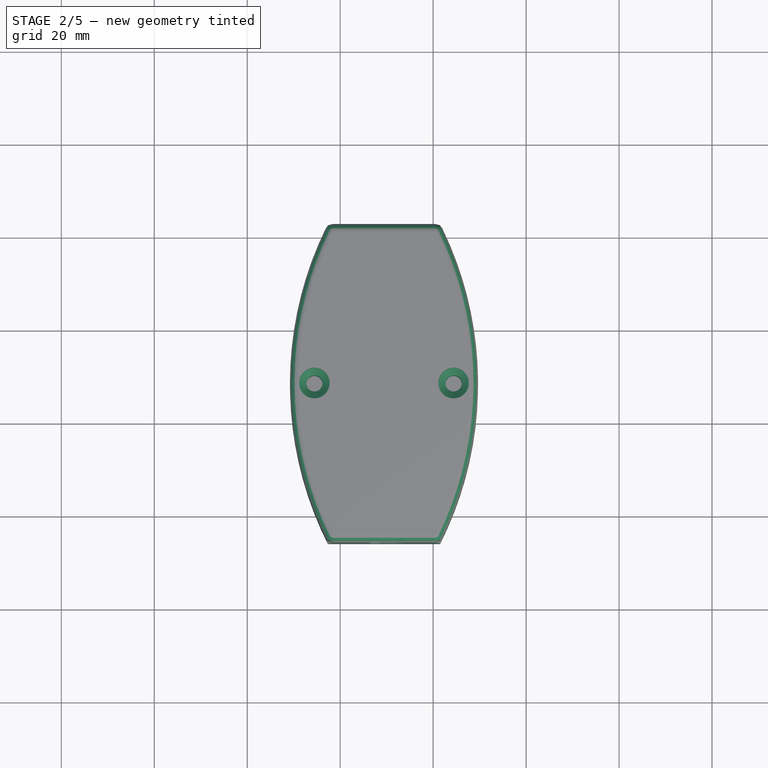
[diagram: stage 2 of 5 — top view after this stage's code; geometry added in this stage tinted green]
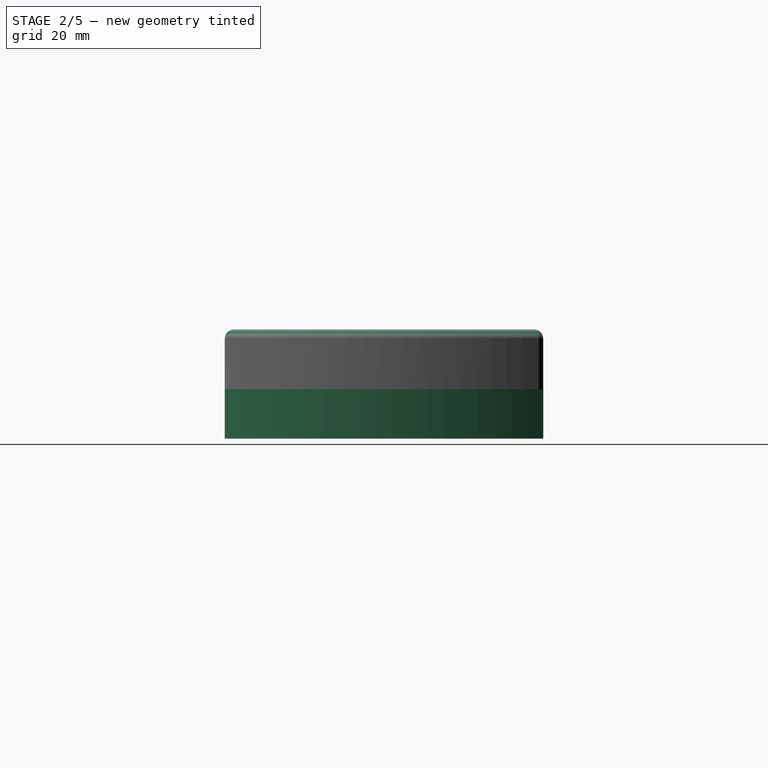
[diagram: stage 2 of 5 — right view after this stage's code; geometry added in this stage tinted green]
FEATURE [Sketcher::SketchObject] Sketch001  label="UsbHubSketch2"
  FullyConstrained = true
  MapMode = 5
  Placement = pos=(0,0,1.6) rot=(0,0,1;0rad)
  Support = -> [Pad]
  expr: Constraints[32] = <<Params>>.USB_B_WING_W
  expr: Constraints[33] = <<Params>>.USB_B_WING_H
  expr: Constraints[77] = <<Params>>.USB_B_W
  expr: Constraints[82] = <<Params>>.USB_B_H
  sketch-geometry (32):
    g0: LineSegment StartX=1.75 StartY=37.31 StartZ=0 EndX=1.75 EndY=51.01 EndZ=0
    g1: LineSegment StartX=14.85 StartY=51.01 StartZ=0 EndX=14.85 EndY=37.31 EndZ=0
    g2: LineSegment StartX=14.85 StartY=37.31 StartZ=0 EndX=1.75 EndY=37.31 EndZ=0
    g3: LineSegment StartX=34.71 StartY=51.01 StartZ=0 EndX=34.71 EndY=37.31 EndZ=0
    g4: LineSegment StartX=34.71 StartY=37.31 StartZ=0 EndX=21.61 EndY=37.31 EndZ=0
    g5: LineSegment StartX=21.61 StartY=37.31 StartZ=0 EndX=21.61 EndY=51.01 EndZ=0
    g6: LineSegment StartX=1.75 StartY=9.43 StartZ=0 EndX=14.85 EndY=9.43 EndZ=0
    g7: LineSegment StartX=14.85 StartY=9.43 StartZ=0 EndX=14.85 EndY=-4.27 EndZ=0
    g8: LineSegment StartX=1.75 StartY=-4.27 StartZ=0 EndX=1.75 EndY=9.43 EndZ=0
    g9: LineSegment StartX=21.61 StartY=9.43 StartZ=0 EndX=34.71 EndY=9.43 EndZ=0
    g10: LineSegment StartX=34.71 StartY=9.43 StartZ=0 EndX=34.71 EndY=-4.27 EndZ=0
    g11: LineSegment StartX=21.61 StartY=-4.27 StartZ=0 EndX=21.61 EndY=9.43 EndZ=0
    g12: LineSegment StartX=1.1 StartY=51.01 StartZ=0 EndX=1.75 EndY=51.01 EndZ=0
    g13: LineSegment StartX=1.1 StartY=51.31 StartZ=0 EndX=1.1 EndY=51.01 EndZ=0
    g14: LineSegment StartX=1.1 StartY=51.31 StartZ=0 EndX=15.5 EndY=51.31 EndZ=0
    g15: LineSegment StartX=15.5 StartY=51.31 StartZ=0 EndX=15.5 EndY=51.01 EndZ=0
    g16: LineSegment StartX=15.5 StartY=51.01 StartZ=0 EndX=14.85 EndY=51.01 EndZ=0
    g17: LineSegment StartX=20.96 StartY=51.31 StartZ=0 EndX=35.36 EndY=51.31 EndZ=0
    g18: LineSegment StartX=21.61 StartY=51.01 StartZ=0 EndX=20.96 EndY=51.01 EndZ=0
    g19: LineSegment StartX=20.96 StartY=51.01 StartZ=0 EndX=20.96 EndY=51.31 EndZ=0
    g20: LineSegment StartX=35.36 StartY=51.31 StartZ=0 EndX=35.36 EndY=51.01 EndZ=0
    g21: LineSegment StartX=35.36 StartY=51.01 StartZ=0 EndX=34.71 EndY=51.01 EndZ=0
    g22: LineSegment StartX=1.1 StartY=-4.27 StartZ=0 EndX=1.75 EndY=-4.27 EndZ=0
    g23: LineSegment StartX=1.1 StartY=-4.57 StartZ=0 EndX=1.1 EndY=-4.27 EndZ=0
    g24: LineSegment StartX=1.1 StartY=-4.57 StartZ=0 EndX=15.5 EndY=-4.57 EndZ=0
    g25: LineSegment StartX=15.5 StartY=-4.57 StartZ=0 EndX=15.5 EndY=-4.27 EndZ=0
    g26: LineSegment StartX=15.5 StartY=-4.27 StartZ=0 EndX=14.85 EndY=-4.27 EndZ=0
    g27: LineSegment StartX=20.96 StartY=-4.27 StartZ=0 EndX=21.61 EndY=-4.27 EndZ=0
    g28: LineSegment StartX=20.96 StartY=-4.57 StartZ=0 EndX=20.96 EndY=-4.27 EndZ=0
    g29: LineSegment StartX=34.71 StartY=-4.27 StartZ=0 EndX=35.36 EndY=-4.27 EndZ=0
    g30: LineSegment StartX=35.36 StartY=-4.27 StartZ=0 EndX=35.36 EndY=-4.57 EndZ=0
    g31: LineSegment StartX=35.36 StartY=-4.57 StartZ=0 EndX=20.96 EndY=-4.57 EndZ=0
  constraints (98):
    c: Coincident(g1,g2)
    c: Coincident(g0,g2)
    c: Coincident(g6,g8)
    c: Coincident(g6,g7)
    c: Coincident(g9,g11)
    c: Coincident(g9,g10)
    c: Coincident(g3,g4)
    c: Coincident(g4,g5)
    c: Vertical(g6,g0)
    c: Vertical(g4,g9)
    c: Horizontal(g1,g4)
    c: Horizontal(g6,g9)
    c: Horizontal(g14,g17)
    c: Vertical(g9,g3)
    c: Vertical(g6,g1)
    c: Equal(g0,g8)
    c: DistanceY(g6,g0) = 27.88  'USB_B_GAP_Y'
    c: DistanceX(g-1,g6) = 1.75  'USB_B_X'
    c: Horizontal(g6)
    c: Horizontal(g9)
    c: Horizontal(g4)
    c: Horizontal(g2)
    c: Vertical(g1)
    c: Vertical(g5)
    c: Vertical(g8)
    c: Vertical(g7)
    c: Vertical(g11)
    c: Vertical(g10)
    c: DistanceY(g-1,g6) = 9.43  'USB_B_Y'
    c: Coincident(g13,g12)
    c: Horizontal(g12)
    c: Vertical(g13)
    c: DistanceX(g12,g12) = 0.65
    c: DistanceY(g13,g13) = 0.3
    c: Coincident(g14,g15)
    c: Coincident(g15,g16)
    c: Horizontal(g14)
    c: Horizontal(g16)
    c: Vertical(g15)
    c: Equal(g13,g15)
    c: Coincident(g18,g19)
    c: Coincident(g19,g17)
    c: Horizontal(g17)
    c: Horizontal(g18)
    c: Vertical(g19)
    c: Equal(g19,g13)
    c: Coincident(g20,g21)
    c: Horizontal(g21)
    c: Vertical(g20)
    c: Coincident(g23,g22)
    c: Horizontal(g22)
    c: Vertical(g23)
    c: Coincident(g24,g25)
    c: Coincident(g25,g26)
    c: Horizontal(g24)
    c: Horizontal(g26)
    c: Vertical(g25)
    c: Coincident(g28,g27)
    c: Horizontal(g27)
    c: Vertical(g28)
    c: Coincident(g29,g30)
    c: Coincident(g30,g31)
    c: Horizontal(g29)
    c: Horizontal(g31)
    c: Vertical(g30)
    c: Equal(g23,g13)
    c: Equal(g25,g13)
    c: Equal(g13,g28)
    c: Coincident(g5,g18)
    c: Coincident(g0,g12)
    c: Coincident(g8,g22)
    c: Coincident(g11,g27)
    c: Coincident(g3,g21)
    c: Coincident(g1,g16)
    c: Coincident(g31,g28)
    c: Coincident(g7,g26)
    c: Coincident(g23,g24)
    c: DistanceX(g2,g2) = 13.1
    c: DistanceX(g1,g4) = 6.76  'USB_GAP_X'
    c: Coincident(g17,g20)
    c: Vertical(g3)
    c: Coincident(g13,g14)
    c: DistanceY(g0,g13) = 14
    c: Vertical(g0)
    c: Equal(g12,g16)
    c: Equal(g12,g21)
    c: Equal(g12,g18)
    c: Equal(g13,g20)
    c: Coincident(g10,g29)
    c: Equal(g22,g12)
    c: Equal(g12,g26)
    c: Equal(g12,g27)
    c: Equal(g12,g29)
    c: Equal(g30,g13)
    c: Horizontal(g24,g28)
    c: Horizontal(g28,g31)
    c: Horizontal(g31,g25)
    c: Equal(g4,g2)
FEATURE [PartDesign::Pad] Pad001  label="UsbHubPad2"
  AllowMultiFace = false
  BaseFeature = -> Pad
  Direction = (0,0,1)
  Length = 6.99
  Length2 = 100
  Profile = -> Sketch001
  Type = 0
  expr: Length = <<Params>>.USB_B_D
FEATURE [Sketcher::SketchObject] Sketch003  label="HdmiCaptureSketch1"
  FullyConstrained = true
  MapMode = 5
  Support = -> [XY_Plane001]
  expr: Constraints[8] = <<Params>>.HDMI_CAP_W
  expr: Constraints[9] = <<Params>>.HDMI_CAP_H
  sketch-geometry (4):
    g0: LineSegment StartX=0 StartY=65 StartZ=0 EndX=23.5 EndY=65 EndZ=0
    g1: LineSegment StartX=23.5 StartY=65 StartZ=0 EndX=23.5 EndY=0 EndZ=0
    g2: LineSegment StartX=23.5 StartY=0 StartZ=0 EndX=0 EndY=0 EndZ=0
    g3: LineSegment StartX=0 StartY=0 StartZ=0 EndX=0 EndY=65 EndZ=0
  constraints (11):
    c: Coincident(g0,g1)
    c: Coincident(g1,g2)
    c: Coincident(g2,g3)
    c: Coincident(g3,g0)
    c: Horizontal(g0)
    c: Horizontal(g2)
    c: Vertical(g1)
    c: Vertical(g3)
    c: DistanceX(g0,g0) = 23.5
    c: DistanceY(g3,g3) = 65
    c: Coincident(g2,g-1)
FEATURE [PartDesign::Pad] Pad003  label="HdmiCapturePad1"
  AllowMultiFace = false
  Direction = (0,0,1)
  Length = 0.9
  Length2 = 100
  Profile = -> Sketch003
  Type = 0
FEATURE [Sketcher::SketchObject] Sketch004  label="HdmiCaptureSketch2"
  AttachmentOffset = pos=(0,0,-1) rot=(0,0,1;0rad)
  FullyConstrained = true
  MapMode = 5
  Placement = pos=(0,0,-0.1) rot=(0,0,1;0rad)
  Support = -> [Pad003]
  expr: .AttachmentOffset.Base.z = <<Params>>.USB_A_O
  expr: Constraints[11] = <<Params>>.HDMI_CAP_H + 15.5 mm
  expr: Constraints[8] = <<Params>>.USB_A_W
  expr: Constraints[9] = <<Params>>.USB_A_H
  sketch-geometry (4):
    g0: LineSegment StartX=5.7 StartY=80.5 StartZ=0 EndX=17.7 EndY=80.5 EndZ=0
    g1: LineSegment StartX=17.7 StartY=80.5 StartZ=0 EndX=17.7 EndY=61.7 EndZ=0
    g2: LineSegment StartX=17.7 StartY=61.7 StartZ=0 EndX=5.7 EndY=61.7 EndZ=0
    g3: LineSegment StartX=5.7 StartY=61.7 StartZ=0 EndX=5.7 EndY=80.5 EndZ=0
  constraints (12):
    c: Coincident(g0,g1)
    c: Coincident(g1,g2)
    c: Coincident(g2,g3)
    c: Coincident(g3,g0)
    c: Horizontal(g0)
    c: Horizontal(g2)
    c: Vertical(g1)
    c: Vertical(g3)
    c: DistanceY(g3,g3) = 18.8
    c: DistanceX(g0,g0) = 12
    c: DistanceX(g-1,g2) = 5.7  'USB_OFFSET_X'
    c: DistanceY(g-1,g0) = 80.5
FEATURE [Spreadsheet::Sheet] Spreadsheet  label="Params"
  cells = A1='Key; B1='Value; C1='Comment; D1='Seen From; A2='SPACE_XY; B2(SPACE_XY)==0.5 mm; C2='spacing of the case around the object in X/Y direction; D2='top view; A3='SPACE_Z; B3(SPACE_Z)==3 mm; C3='spacing of the case around the object in Z direction; D3='top view; A4='WALL; B4(WALL)==2 mm; C4='thickness of the case; D4='top view; A5='GAP_XY; B5(GAP_XY)==0.15 mm; C5='3d printer tolerance in X/Y direction; D5='top view; A6='GAP_Z; B6(GAP_Z)==0.05 mm; C6='3d printer tolerance in Z direction; D6='top view; A7='USB_HUB_W; B7(USB_HUB_W)==36.66 mm; C7='width of the USB hub board; D7='top view; A8='USB_HUB_H; B8(USB_HUB_H)==46.74 mm; C8='height of the USB hub board; D8='top view; A9='USB_HUB_D; B9(USB_HUB_D)==1.6 mm; C9='depth of the USB hub board; D9='top view; A10='USB_A_W; B10(USB_A_W)==18.8 mm; C10='width of the USB connector type A plug; D10='top view, right; A11='USB_A_H; B11(USB_A_H)==12 mm; C11='height of the USB connector type A plug; D11='top view, right; A12='USB_A_D; B12(USB_A_D)==4.5 mm; C12='depth of the USB connector type A plug; D12='top view, right; A13='USB_A_O; B13(USB_A_O)==-1 mm; C13='offset of the USB connector type A plug in Z direction relative to the PCB; D13='top view, right; A14='USB_B_W; B14(USB_B_W)==13.1 mm; C14='width of the USB connector type A jack; D14='top view, right; A15='USB_B_H; B15(USB_B_H)==14 mm; C15='height of the USB connector type A jack; D15='top view, right; A16='USB_B_D; B16(USB_B_D)==6.99 mm; C16='depth of the USB connector type A jack; D16='top view, right; A17='USB_B_WING_W; B17(USB_B_WING_W)==0.65 mm; C17='width of the USB connector A jack side wing; D17='top view, right; A18='USB_B_WING_H; B18(USB_B_WING_H)==0.3 mm; C18='height (thickness) of the USB connector A jack side wing; D18='top view, right; A19='HDMI_CAP_W; B19(HDMI_CAP_W)==23.5 mm; C19='width of the HDMI capture board; D19='top view, up; A20='HDMI_CAP_H; B20(HDMI_CAP_H)==65 mm; C20='height of the HDMI capture board; D20='top view, up; A21='HDMI_CAP_D; B21(HDMI_CAP_D)==0.9 mm; C21='depth of the HDMI capture board; D21='top view, up; A22='HDMI_W; B22(HDMI_W)==15 mm; C22='width of the HDMI connector jack; D22='top view; A23='HDMI_H; B23(HDMI_H)==10.9 mm; C23='height of the HDMI connector jack; D23='top view; A24='HDMI_D; B24(HDMI_D)==6.18 mm; C24='depth of the HDMI connector jack; D24='top view; A25='HDMI_W2; B25(HDMI_W2)==10 mm; C25='width of the HDMI connector jack lower edge; D25='side view; A26='HDMI_H2; B26(HDMI_H2)==3.7 mm; C26='height of the HDMI connector jack side edges; D26='side view; A27='HDMI_D2; B27(HDMI_D2)==5.6 mm; C27='height of the HDMI connector jack; D27='side view; A28='USB_SER_W; B28(USB_SER_W)==17.25 mm; C28='width of the USB serial adapter board; D28='top view; A29='USB_SER_H; B29(USB_SER_H)==29.5 mm; C29='height of the USB serial adapter board; D29='top view; A30='USB_SER_D; B30(USB_SER_D)==1.6 mm; C30='depth of the USB serial adapter board; D30='top view; A31='USB_HID_W; B31(USB_HID_W)==17.9 mm; C31='width of the USB HID board; D31='top view; A32='USB_HID_H; B32(USB_HID_H)==33.15 mm; C32='height of the USB HID board; D32='top view; A33='USB_HID_D; B33(USB_HID_D)==1.6 mm; C33='depth of the USB HID board; D33='top view; A34='PIN_HEAD_W; B34(PIN_HEAD_W)==2.54 mm; C34='width/height of the pin header (same as pin spacing); D34='top view; A35='PIN_HEAD_D; B35(PIN_HEAD_D)==3 mm; C35='depth of the pin header; D35='top view; A36='USB_M_W; B36(USB_M_W)==7.4 mm; C36='width of the USB connector type micro jack; D36='top view, up; A37='USB_M_H; B37(USB_M_H)==5 mm; C37='height of the USB connector type micro jack; D37='top view, up; A38='USB_M_D; B38(USB_M_D)==2.35 mm; C38='depth of the USB connector type micro jack; D38='top view, up; A39='USB_M_O; B39(USB_M_O)==0.94 mm; C39='offset of the USB connector type micro jack in Y direction relative to the PCB border; D39='top view, up; A40='SER_W; B40(SER_W)==17.78 mm; C40='width of the serial connector board; D40='top view; A41='SER_H; B41(SER_H)==35.56 mm; C41='height of the serial connector board; D41='top view; A42='SER_D; B42(SER_D)==1.15 mm; C42='depth of the serial connector board; D42='top view; A43='USB_GAP; B43(USB_GAP)==11 mm; C43='gap between the borders of the USB hub and connected board; D43='top view; A44='CASE_A_Z; B44(CASE_A_Z)==-(USB_HUB_D + SPACE_Z + WALL + GAP_Z); C44='offset of the lower case in Z direction relative to the ground of the USB hub; D44='top view; A45='CASE_A_D; B45(CASE_A_D)==USB_HUB_D + USB_B_D + GAP_Z - CASE_A_Z; C45='depth of the lower case; D45='top view; A46='CASE_A_L; B46(CASE_A_L)==2.5 mm; C46='depth of the case latch; D46='top view; A47='CASE_B_D; B47(CASE_B_D)==28 mm - CASE_A_D; C47='depth of the upper case; D47='top view; A48='SMALL_CASE_A_Z; B48(SMALL_CASE_A_Z)==-(USB_SER_D + SPACE_Z + WALL + GAP_Z); C48='offset of the lower small case in Z direction relative to the ground of the USB serial; D48='top view; A49='SMALL_CASE_A_D; B49(SMALL_CASE_A_D)==USB_SER_D + USB_M_D + GAP_Z - CASE_A_Z; C49='depth of the lower small case; D49='top view; A50='SMALL_CASE_A_L; B50(SMALL_CASE_A_L)==2.5 mm; C50='depth of the small case latch; D50='top view; +56 more cells
FEATURE [PartDesign::Pad] Pad004  label="HdmiCapturePad2"
  AllowMultiFace = false
  BaseFeature = -> Pad003
  Direction = (0,0,1)
  Length = 4.5
  Length2 = 100
  Profile = -> Sketch004
  Type = 0
  expr: Length = <<Params>>.USB_A_D
FEATURE [Sketcher::SketchObject] Sketch005  label="HdmiCaptureSketch3"
  FullyConstrained = true
  MapMode = 5
  Placement = pos=(0,0,0.9) rot=(0,0,1;0rad)
  Support = -> [Pad004]
  expr: Constraints[11] = (<<Params>>.HDMI_CAP_W - <<Params>>.HDMI_W) / 2
  expr: Constraints[8] = <<Params>>.HDMI_W
  expr: Constraints[9] = <<Params>>.HDMI_H
  sketch-geometry (4):
    g0: LineSegment StartX=4.25 StartY=8.9 StartZ=0 EndX=19.25 EndY=8.9 EndZ=0
    g1: LineSegment StartX=19.25 StartY=8.9 StartZ=0 EndX=19.25 EndY=-2 EndZ=0
    g2: LineSegment StartX=19.25 StartY=-2 StartZ=0 EndX=4.25 EndY=-2 EndZ=0
    g3: LineSegment StartX=4.25 StartY=-2 StartZ=0 EndX=4.25 EndY=8.9 EndZ=0
  constraints (12):
    c: Coincident(g0,g1)
    c: Coincident(g1,g2)
    c: Coincident(g2,g3)
    c: Coincident(g3,g0)
    c: Horizontal(g0)
    c: Horizontal(g2)
    c: Vertical(g1)
    c: Vertical(g3)
    c: DistanceX(g0,g0) = 15
    c: DistanceY(g3,g3) = 10.9
    c: DistanceY(g2,g-1) = 2
    c: DistanceX(g-1,g2) = 4.25
FEATURE [PartDesign::Pad] Pad005  label="HdmiCapturePad3"
  AllowMultiFace = false
  BaseFeature = -> Pad004
  Direction = (0,0,1)
  Length = 6.18
  Length2 = 100
  Profile = -> Sketch005
  Type = 0
  expr: Length = <<Params>>.HDMI_D
FEATURE [Sketcher::SketchObject] Sketch006  label="HdmiCaptureSketch4"
  FullyConstrained = true
  MapMode = 5
  Placement = pos=(0,-2,0) rot=(1,0,0;1.5708rad)
  Support = -> [Pad005]
  expr: .Constraints.HDMI_H = <<Params>>.HDMI_D - <<Params>>.HDMI_H2
  expr: .Constraints.HDMI_INNER_W = <<Params>>.HDMI_W2
  expr: .Constraints.HDMI_W = <<Params>>.HDMI_W
  expr: .Constraints.HDMI_X = (<<Params>>.HDMI_CAP_W - <<Params>>.HDMI_W) / 2
  expr: .Constraints.HDMI_Y = <<Params>>.HDMI_D - <<Params>>.HDMI_D2
  expr: Constraints[16] = <<Params>>.HDMI_CAP_D
  sketch-geometry (6):
    g0: LineSegment StartX=4.25 StartY=0.9 StartZ=0 EndX=4.25 EndY=3.38 EndZ=0
    g1: LineSegment StartX=4.25 StartY=3.38 StartZ=0 EndX=6.75 EndY=1.48 EndZ=0
    g2: LineSegment StartX=6.75 StartY=1.48 StartZ=0 EndX=16.75 EndY=1.48 EndZ=0
    g3: LineSegment StartX=16.75 StartY=1.48 StartZ=0 EndX=19.25 EndY=3.38 EndZ=0
    g4: LineSegment StartX=19.25 StartY=3.38 StartZ=0 EndX=19.25 EndY=0.9 EndZ=0
    g5: LineSegment StartX=19.25 StartY=0.9 StartZ=0 EndX=4.25 EndY=0.9 EndZ=0
  constraints (18):
    c: Vertical(g0)
    c: Coincident(g0,g1)
    c: Coincident(g1,g2)
    c: Horizontal(g2)
    c: Coincident(g2,g3)
    c: Coincident(g3,g4)
    c: Vertical(g4)
    c: Coincident(g4,g5)
    c: Coincident(g5,g0)
    c: Horizontal(g5)
    c: Horizontal(g0,g3)
    c: DistanceX(g5,g5) = 15  'HDMI_W'
    c: DistanceX(g2,g2) = 10  'HDMI_INNER_W'
    c: Equal(g1,g3)
    c: DistanceY(g0,g1) = 0.58  'HDMI_Y'
    c: DistanceY(g0,g0) = 2.48  'HDMI_H'
    c: DistanceY(g-1,g0) = 0.9
    c: DistanceX(g-1,g0) = 4.25  'HDMI_X'
FEATURE [PartDesign::Pocket] Pocket  label="HdmiCapturePocket1"
  AllowMultiFace = false
  BaseFeature = -> Pad005
  Direction = (0,1,-2e-16)
  Length = 3
  Length2 = 100
  Profile = -> Sketch006
  Refine = true
  Type = 0
FEATURE [PartDesign::Body] Body007  label="CaseB"
  Group = -> [Sketch039,Pad018,Sketch040,Pocket018,Sketch041,Pocket019,Sketch042,Pad019,Sketch043,Pad020,Sketch044,Pocket020,Sketch045,Pocket021,Sketch046,Pocket022,Sketch047,Hole001,ShapeString,Pocket023,ShapeString001,Pocket024,Chamfer,Fillet004,Fillet005]
  Origin = -> Origin007
  Placement = pos=(0,0,-6.65) rot=(0,1,0;0rad)
  Tip = -> Fillet005
  expr: .Placement.Base.z = <<Params>>.CASE_A_Z
FEATURE [Sketcher::SketchObject] Sketch048  label="SmallCaseASketch1"
  FullyConstrained = false
  MapMode = 5
  Support = -> [XY_Plane008]
  expr: .Constraints.HEIGHT = <<UsbSer>>.Placement.Base.y - <<UsbHid>>.Placement.Base.y + <<Params>>.USB_SER_H + <<Params>>.WALL + <<Params>>.SPACE_XY + <<Params>>.GAP_XY + <<Params>>.USB_M_O + <<Params>>.GAP_XY
  expr: .Constraints.OFFSET_LEFT_X = <<Params>>.WALL + <<Params>>.SPACE_XY + <<Params>>.GAP_XY
  expr: .Constraints.OFFSET_LEFT_Y = <<Params>>.WALL + <<Params>>.SPACE_XY + <<Params>>.GAP_XY
  expr: .Constraints.WIDTH = <<UsbHid>>.Placement.Base.x - <<UsbSer>>.Placement.Base.x + <<Params>>.USB_HID_W + 2 * (<<Params>>.WALL + <<Params>>.SPACE_XY + <<Params>>.GAP_XY)
  expr: Constraints[13] = .Constraints.HEIGHT / 2
  expr: Constraints[14] = 2 * <<Params>>.SMALL_CASE_SCREW + <<Params>>.WALL + <<Params>>.GAP_XY
  expr: Constraints[16] = .Constraints.HEIGHT / 2
  expr: Constraints[17] = 2 * <<Params>>.SMALL_CASE_SCREW + <<Params>>.WALL + <<Params>>.GAP_XY
  sketch-geometry (12):
    g0: LineSegment StartX=-2.65 StartY=2.65 StartZ=0 EndX=21.495 EndY=2.65 EndZ=0
    g1: LineSegment StartX=21.495 StartY=2.65 StartZ=0 EndX=21.495 EndY=-65.85 EndZ=0
    g2: LineSegment StartX=21.495 StartY=-65.85 StartZ=0 EndX=-2.65 EndY=-65.85 EndZ=0
    g3: LineSegment StartX=-2.65 StartY=-65.85 StartZ=0 EndX=-2.65 EndY=2.65 EndZ=0
    g4: GeomPoint X=-2.65 Y=-65.85 Z=0
    g5: GeomPoint X=-2.65 Y=2.65 Z=0
    g6: GeomPoint X=21.495 Y=2.65 Z=0
    g7: GeomPoint X=21.495 Y=-65.85 Z=0
    g8: ArcOfCircle CenterX=65.242 CenterY=-31.6 CenterZ=0 NormalX=0 NormalY=0 NormalZ=1 AngleXU=0 Radius=76.042 StartAngle=2.67437 EndAngle=3.60882
    g9: GeomPoint X=-10.8 Y=-31.6 Z=0
    g10: ArcOfCircle CenterX=-46.397 CenterY=-31.6 CenterZ=0 NormalX=0 NormalY=0 NormalZ=1 AngleXU=0 Radius=76.042 StartAngle=5.81596 EndAngle=6.75041
    g11: GeomPoint X=29.645 Y=-31.6 Z=0
  constraints (22):
    c: Coincident(g0,g1)
    c: Coincident(g1,g2)
    c: Coincident(g2,g3)
    c: Coincident(g3,g0)
    c: Horizontal(g0)
    c: Horizontal(g2)
    c: Vertical(g1)
    c: Vertical(g3)
    c: DistanceX(g0,g-1) = 2.65  'OFFSET_LEFT_X'
    c: DistanceY(g-1,g0) = 2.65  'OFFSET_LEFT_Y'
    c: DistanceX(g0,g0) = 24.145  'WIDTH'
    c: DistanceY(g3,g3) = 68.5  'HEIGHT'
    c: PointOnObject(g9,g8)
    c: DistanceY(g8,g9) = 34.25
    c: DistanceX(g9,g8) = 8.15
    c: PointOnObject(g11,g10)
    c: DistanceY(g1,g11) = 34.25
    c: DistanceX(g1,g11) = 8.15
    c: Coincident(g10,g0)
    c: Coincident(g10,g2)
    c: Coincident(g8,g2)
    c: Coincident(g8,g0)
FEATURE [PartDesign::Pad] Pad021  label="SmallCaseAPad1"
  AllowMultiFace = false
  Direction = (0,0,1)
  Length = 10.65
  Length2 = 100
  Profile = -> Sketch048
  Type = 0
  expr: Length = <<Params>>.SMALL_CASE_A_D
FEATURE [Sketcher::SketchObject] Sketch049  label="SmallCaseASketch2"
  AttachmentOffset = pos=(0,0,10.65) rot=(0,0,1;0rad)
  FullyConstrained = true
  MapMode = 5
  Placement = pos=(0,0,10.65) rot=(0,0,1;0rad)
  Support = -> [XY_Plane008]
  expr: .AttachmentOffset.Base.y = 0
  expr: .AttachmentOffset.Base.z = <<Params>>.SMALL_CASE_A_D
  expr: .Constraints.SER_SEP_H = <<CaseASketch2>>.Constraints.SER_SEP_H
  expr: .Constraints.SER_SEP_W = <<CaseASketch2>>.Constraints.SER_SEP_W
  expr: .Constraints.SER_SEP_X = <<CaseASketch2>>.Constraints.SER_SEP_X - <<UsbSer>>.Placement.Base.x
  expr: .Constraints.SER_SEP_Y = <<UsbSer>>.Placement.Base.y + <<Params>>.USB_SER_H + <<CaseASketch2>>.Constraints.SER_SEP_Y
  expr: .Constraints.USB_HID_R = <<CaseASketch2>>.Constraints.USB_HID_R
  expr: .Constraints.USB_HID_X = <<CaseASketch2>>.Constraints.USB_HID_X - <<UsbSer>>.Placement.Base.x
  expr: .Constraints.USB_HID_Y = <<UsbSer>>.Placement.Base.y + <<Params>>.USB_SER_H + <<CaseASketch2>>.Constraints.USB_HID_Y
  expr: .Constraints.USB_SER_R = <<CaseASketch2>>.Constraints.USB_SER_R
  expr: .Constraints.USB_SER_X = <<CaseASketch2>>.Constraints.USB_SER_X - <<UsbSer>>.Placement.Base.x
  expr: .Constraints.USB_SER_Y = <<UsbSer>>.Placement.Base.y + <<Params>>.USB_SER_H + <<CaseASketch2>>.Constraints.USB_SER_Y
  expr: Constraints[10] = <<SmallCaseASketch1>>.Constraints.WIDTH - 2 * <<Params>>.WALL
  expr: Constraints[11] = <<SmallCaseASketch1>>.Constraints.HEIGHT - <<Params>>.WALL - <<Params>>.USB_M_O
  expr: Constraints[8] = <<Params>>.SPACE_XY + <<Params>>.GAP_XY
  expr: Constraints[9] = <<Params>>.SPACE_XY + <<Params>>.GAP_XY
  sketch-geometry (10):
    g0: LineSegment StartX=-0.65 StartY=0.65 StartZ=0 EndX=19.495 EndY=0.65 EndZ=0
    g1: LineSegment StartX=19.495 StartY=0.65 StartZ=0 EndX=19.495 EndY=-64.91 EndZ=0
    g2: LineSegment StartX=19.495 StartY=-64.91 StartZ=0 EndX=-0.65 EndY=-64.91 EndZ=0
    g3: LineSegment StartX=-0.65 StartY=-64.91 StartZ=0 EndX=-0.65 EndY=0.65 EndZ=0
    g4: Circle CenterX=8.625 CenterY=-22.125 CenterZ=0 NormalX=0 NormalY=0 NormalZ=1 AngleXU=0 Radius=3
    g5: LineSegment StartX=3.545 StartY=-31.249 StartZ=0 EndX=16.245 EndY=-31.249 EndZ=0
    g6: LineSegment StartX=16.245 StartY=-31.249 StartZ=0 EndX=16.245 EndY=-29.861 EndZ=0
    g7: LineSegment StartX=16.245 StartY=-29.861 StartZ=0 EndX=3.545 EndY=-29.861 EndZ=0
    g8: LineSegment StartX=3.545 StartY=-29.861 StartZ=0 EndX=3.545 EndY=-31.249 EndZ=0
    g9: Circle CenterX=9.895 CenterY=-48.185 CenterZ=0 NormalX=0 NormalY=0 NormalZ=1 AngleXU=0 Radius=5
  constraints (30):
    c: Coincident(g0,g1)
    c: Coincident(g1,g2)
    c: Coincident(g2,g3)
    c: Coincident(g3,g0)
    c: Horizontal(g0)
    c: Horizontal(g2)
    c: Vertical(g1)
    c: Vertical(g3)
    c: DistanceX(g0,g-1) = 0.65
    c: DistanceY(g-1,g0) = 0.65
    c: DistanceX(g0,g0) = 20.145
    c: DistanceY(g3,g3) = 65.56
    c: Radius(g4) = 3  'USB_SER_R'
    c: DistanceY(g4,g-1) = 22.125  'USB_SER_Y'
    c: DistanceX(g-1,g4) = 8.625  'USB_SER_X'
    c: Coincident(g5,g6)
    c: Coincident(g6,g7)
    c: Coincident(g7,g8)
    c: Coincident(g8,g5)
    c: Horizontal(g5)
    c: Horizontal(g7)
    c: Vertical(g6)
    c: Vertical(g8)
    c: DistanceX(g-1,g5) = 3.545  'SER_SEP_X'
    c: DistanceY(g5,g-1) = 31.249  'SER_SEP_Y'
    c: DistanceY(g8,g8) = 1.388  'SER_SEP_H'
    c: DistanceX(g5,g5) = 12.7  'SER_SEP_W'
    c: Radius(g9) = 5  'USB_HID_R'
    c: DistanceY(g9,g-1) = 48.185  'USB_HID_Y'
    c: DistanceX(g-1,g9) = 9.895  'USB_HID_X'
FEATURE [PartDesign::Pocket] Pocket025  label="SmallCaseAPocket1"
  AllowMultiFace = false
  BaseFeature = -> Pad021
  Direction = (0,0,-1)
  Length = 8.65
  Length2 = 100
  Profile = -> Sketch049
  Type = 0
  expr: Length = <<Params>>.SMALL_CASE_A_D - <<Params>>.WALL
FEATURE [Sketcher::SketchObject] Sketch050  label="SmallCaseASketch3"
  AttachmentOffset = pos=(0,0,10.65) rot=(0,0,1;0rad)
  FullyConstrained = true
  MapMode = 5
  Placement = pos=(0,0,10.65) rot=(0,0,1;0rad)
  Support = -> [XY_Plane008]
  expr: .AttachmentOffset.Base.z = <<Params>>.SMALL_CASE_A_D
  expr: Constraints[10] = <<Params>>.SPACE_XY + <<Params>>.GAP_XY
  expr: Constraints[11] = (<<Params>>.USB_SER_W - <<Params>>.USB_A_H) / 2 - <<Params>>.GAP_XY
  expr: Constraints[8] = <<Params>>.USB_A_H + 2 * <<Params>>.GAP_XY
  expr: Constraints[9] = <<Params>>.WALL + <<Params>>.SPACE_XY + <<Params>>.GAP_XY
  sketch-geometry (4):
    g0: LineSegment StartX=2.475 StartY=2.65 StartZ=0 EndX=14.775 EndY=2.65 EndZ=0
    g1: LineSegment StartX=14.775 StartY=2.65 StartZ=0 EndX=14.775 EndY=0.65 EndZ=0
    g2: LineSegment StartX=14.775 StartY=0.65 StartZ=0 EndX=2.475 EndY=0.65 EndZ=0
    g3: LineSegment StartX=2.475 StartY=0.65 StartZ=0 EndX=2.475 EndY=2.65 EndZ=0
  constraints (12):
    c: Coincident(g0,g1)
    c: Coincident(g1,g2)
    c: Coincident(g2,g3)
    c: Coincident(g3,g0)
    c: Horizontal(g0)
    c: Horizontal(g2)
    c: Vertical(g1)
    c: Vertical(g3)
    c: DistanceX(g0,g0) = 12.3
    c: DistanceY(g-1,g0) = 2.65
    c: DistanceY(g-1,g2) = 0.65
    c: DistanceX(g-1,g2) = 2.475
FEATURE [PartDesign::Pocket] Pocket026  label="SmallCaseAPocket2"
  AllowMultiFace = false
  BaseFeature = -> Pocket025
  Direction = (0,0,-1)
  Length = 3.45
  Length2 = 100
  Profile = -> Sketch050
  Type = 0
  expr: Length = <<Params>>.USB_M_D + abs(<<Params>>.USB_SER_D - <<Params>>.USB_HID_D) - <<Params>>.USB_A_O + 2 * <<Params>>.GAP_Z
FEATURE [Sketcher::SketchObject] Sketch051  label="SmallCaseASketch4"
  AttachmentOffset = pos=(0,0,10.65) rot=(0,0,1;0rad)
  FullyConstrained = true
  MapMode = 5
  Placement = pos=(0,0,10.65) rot=(0,0,1;0rad)
  Support = -> [XY_Plane008]
  expr: .AttachmentOffset.Base.z = <<Params>>.SMALL_CASE_A_D
  expr: Constraints[10] = <<Params>>.USB_M_W + 2 * <<Params>>.GAP_XY
  expr: Constraints[11] = <<UsbHid>>.Placement.Base.x - <<UsbSer>>.Placement.Base.x + (<<Params>>.USB_HID_W - <<Params>>.USB_M_W) / 2 - <<Params>>.GAP_XY
  expr: Constraints[8] = <<SmallCaseASketch1>>.Constraints.HEIGHT - <<SmallCaseASketch1>>.Constraints.OFFSET_LEFT_Y - <<Params>>.USB_M_O
  expr: Constraints[9] = <<Params>>.USB_M_O
  sketch-geometry (4):
    g0: LineSegment StartX=6.045 StartY=-64.91 StartZ=0 EndX=13.745 EndY=-64.91 EndZ=0
    g1: LineSegment StartX=13.745 StartY=-64.91 StartZ=0 EndX=13.745 EndY=-65.85 EndZ=0
    g2: LineSegment StartX=13.745 StartY=-65.85 StartZ=0 EndX=6.045 EndY=-65.85 EndZ=0
    g3: LineSegment StartX=6.045 StartY=-65.85 StartZ=0 EndX=6.045 EndY=-64.91 EndZ=0
  constraints (12):
    c: Coincident(g0,g1)
    c: Coincident(g1,g2)
    c: Coincident(g2,g3)
    c: Coincident(g3,g0)
    c: Horizontal(g0)
    c: Horizontal(g2)
    c: Vertical(g1)
    c: Vertical(g3)
    c: DistanceY(g0,g-1) = 64.91
    c: DistanceY(g3,g3) = 0.94
    c: DistanceX(g2,g2) = 7.7
    c: DistanceX(g-1,g0) = 6.045
FEATURE [PartDesign::Pocket] Pocket027  label="SmallCaseAPocket3"
  AllowMultiFace = false
  BaseFeature = -> Pocket026
  Direction = (0,0,-1)
  Length = 2.45
  Length2 = 100
  Profile = -> Sketch051
  Type = 0
  expr: Length = <<Params>>.USB_M_D + 2 * <<Params>>.GAP_Z
FEATURE [Sketcher::SketchObject] Sketch052  label="SmallCaseASketch9"
  AttachmentOffset = pos=(0,0,10.65) rot=(0,0,1;0rad)
  FullyConstrained = true
  MapMode = 5
  Placement = pos=(0,0,10.65) rot=(0,0,1;0rad)
  Support = -> [XY_Plane008]
  expr: .AttachmentOffset.Base.z = <<Params>>.SMALL_CASE_A_D
  expr: Constraints[10] = <<SmallCaseASketch2>>.Constraints.SER_SEP_H
  expr: Constraints[11] = <<SmallCaseASketch2>>.Constraints.SER_SEP_Y
  expr: Constraints[8] = <<SmallCaseASketch2>>.Constraints.SER_SEP_X
  expr: Constraints[9] = <<SmallCaseASketch2>>.Constraints.SER_SEP_W
  sketch-geometry (4):
    g0: LineSegment StartX=3.545 StartY=-29.861 StartZ=0 EndX=16.245 EndY=-29.861 EndZ=0
    g1: LineSegment StartX=16.245 StartY=-29.861 StartZ=0 EndX=16.245 EndY=-31.249 EndZ=0
    g2: LineSegment StartX=16.245 StartY=-31.249 StartZ=0 EndX=3.545 EndY=-31.249 EndZ=0
    g3: LineSegment StartX=3.545 StartY=-31.249 StartZ=0 EndX=3.545 EndY=-29.861 EndZ=0
  constraints (12):
    c: Coincident(g0,g1)
    c: Coincident(g1,g2)
    c: Coincident(g2,g3)
    c: Coincident(g3,g0)
    c: Horizontal(g0)
    c: Horizontal(g2)
    c: Vertical(g1)
    c: Vertical(g3)
    c: DistanceX(g-1,g2) = 3.545
    c: DistanceX(g2,g2) = 12.7
    c: DistanceY(g3,g3) = 1.388
    c: DistanceY(g2,g-1) = 31.249
FEATURE [Sketcher::SketchObject] Sketch053  label="SmallCaseASketch5"
  AttachmentOffset = pos=(0,0,10.65) rot=(0,0,1;0rad)
  FullyConstrained = true
  MapMode = 5
  Placement = pos=(0,0,10.65) rot=(0,0,1;0rad)
  Support = -> [XY_Plane008]
  expr: .AttachmentOffset.Base.z = <<Params>>.SMALL_CASE_A_D
  expr: Constraints[0] = <<SmallCaseASketch2>>.Constraints.USB_SER_R
  expr: Constraints[1] = <<SmallCaseASketch2>>.Constraints.USB_SER_X
  expr: Constraints[2] = <<SmallCaseASketch2>>.Constraints.USB_SER_Y
  sketch-geometry (1):
    g0: Circle CenterX=8.625 CenterY=-22.125 CenterZ=0 NormalX=0 NormalY=0 NormalZ=1 AngleXU=0 Radius=3
  constraints (3):
    c: Radius(g0) = 3
    c: DistanceX(g-1,g0) = 8.625
    c: DistanceY(g0,g-1) = 22.125
FEATURE [PartDesign::Pocket] Pocket029  label="SmallCaseAPocket4"
  AllowMultiFace = false
  BaseFeature = -> Pocket027
  Direction = (0,0,-1)
  Length = 4.05
  Length2 = 100
  Profile = -> Sketch053
  Type = 0
  expr: Length = <<Params>>.USB_M_D + abs(<<UsbSer>>.Placement.Base.z - <<UsbHid>>.Placement.Base.z) + <<Params>>.USB_SER_D + 2 * <<Params>>.GAP_Z
FEATURE [Sketcher::SketchObject] Sketch054  label="SmallCaseASketch6"
  AttachmentOffset = pos=(0,0,10.65) rot=(0,0,1;0rad)
  FullyConstrained = true
  MapMode = 5
  Placement = pos=(0,0,10.65) rot=(0,0,1;0rad)
  Support = -> [XY_Plane008]
  expr: .AttachmentOffset.Base.z = <<Params>>.SMALL_CASE_A_D
  expr: Constraints[0] = <<SmallCaseASketch2>>.Constraints.USB_HID_R
  expr: Constraints[1] = <<SmallCaseASketch2>>.Constraints.USB_HID_X
  expr: Constraints[2] = <<SmallCaseASketch2>>.Constraints.USB_HID_Y
  sketch-geometry (1):
    g0: Circle CenterX=9.895 CenterY=-48.185 CenterZ=0 NormalX=0 NormalY=0 NormalZ=1 AngleXU=0 Radius=5
  constraints (3):
    c: Radius(g0) = 5
    c: DistanceX(g-1,g0) = 9.895
    c: DistanceY(g0,g-1) = 48.185
FEATURE [PartDesign::Pocket] Pocket030  label="SmallCaseAPocket5"
  AllowMultiFace = false
  BaseFeature = -> Pocket029
  Direction = (0,0,-1)
  Length = 4.05
  Length2 = 100
  Profile = -> Sketch054
  Type = 0
  expr: Length = <<Params>>.USB_M_D + <<Params>>.USB_HID_D + 2 * <<Params>>.GAP_Z
FEATURE [Sketcher::SketchObject] Sketch056  label="SmallCaseASketch7"
  AttachmentOffset = pos=(0,0,10.65) rot=(0,0,1;0rad)
  FullyConstrained = true
  MapMode = 5
  Placement = pos=(0,0,10.65) rot=(0,0,1;0rad)
  Support = -> [XY_Plane008]
  expr: .AttachmentOffset.Base.z = <<Params>>.SMALL_CASE_A_D
  expr: .Constraints.STAND_H = <<Params>>.USB_SER_H / 4 + <<Params>>.SPACE_XY + <<Params>>.GAP_XY
  expr: .Constraints.STAND_W = (<<Params>>.USB_SER_W - <<Params>>.USB_A_H) / 2 - <<Params>>.SPACE_XY - <<Params>>.GAP_XY
  expr: .Constraints.STAND_WALL1 = <<Params>>.WALL / 2 + <<Params>>.GAP_XY
  expr: Constraints[12] = <<Params>>.SPACE_XY + <<Params>>.GAP_XY
  expr: Constraints[13] = <<Params>>.SPACE_XY + <<Params>>.GAP_XY
  expr: Constraints[33] = <<SmallCaseASketch1>>.Constraints.WIDTH - <<SmallCaseASketch1>>.Constraints.OFFSET_LEFT_X - <<Params>>.WALL
  expr: Constraints[43] = <<SmallCaseASketch1>>.Constraints.HEIGHT - <<Params>>.WALL - <<Params>>.USB_M_O
  sketch-geometry (20):
    g0: LineSegment StartX=-1.8 StartY=1.8 StartZ=0 EndX=-1.8 EndY=-7.375 EndZ=0
    g1: LineSegment StartX=-1.8 StartY=-7.375 StartZ=0 EndX=-0.65 EndY=-7.375 EndZ=0
    g2: LineSegment StartX=-0.65 StartY=-7.375 StartZ=0 EndX=-0.65 EndY=0.65 EndZ=0
    g3: LineSegment StartX=-0.65 StartY=0.65 StartZ=0 EndX=1.325 EndY=0.65 EndZ=0
    g4: LineSegment StartX=1.325 StartY=0.65 StartZ=0 EndX=1.325 EndY=1.8 EndZ=0
    g5: LineSegment StartX=1.325 StartY=1.8 StartZ=0 EndX=-1.8 EndY=1.8 EndZ=0
    g6: LineSegment StartX=17.52 StartY=1.8 StartZ=0 EndX=20.645 EndY=1.8 EndZ=0
    g7: LineSegment StartX=20.645 StartY=1.8 StartZ=0 EndX=20.645 EndY=-7.375 EndZ=0
    g8: LineSegment StartX=20.645 StartY=-7.375 StartZ=0 EndX=19.495 EndY=-7.375 EndZ=0
    g9: LineSegment StartX=19.495 StartY=-7.375 StartZ=0 EndX=19.495 EndY=0.65 EndZ=0
    g10: LineSegment StartX=19.495 StartY=0.65 StartZ=0 EndX=17.52 EndY=0.65 EndZ=0
    g11: LineSegment StartX=17.52 StartY=0.65 StartZ=0 EndX=17.52 EndY=1.8 EndZ=0
    g12: LineSegment StartX=-0.65 StartY=-55.735 StartZ=0 EndX=-0.65 EndY=-64.91 EndZ=0
    g13: LineSegment StartX=-1.8 StartY=-64.91 StartZ=0 EndX=-1.8 EndY=-55.735 EndZ=0
    g14: LineSegment StartX=-1.8 StartY=-55.735 StartZ=0 EndX=-0.65 EndY=-55.735 EndZ=0
    g15: LineSegment StartX=19.495 StartY=-55.735 StartZ=0 EndX=19.495 EndY=-64.91 EndZ=0
    g16: LineSegment StartX=19.495 StartY=-64.91 StartZ=0 EndX=20.645 EndY=-64.91 EndZ=0
    g17: LineSegment StartX=20.645 StartY=-64.91 StartZ=0 EndX=20.645 EndY=-55.735 EndZ=0
    g18: LineSegment StartX=20.645 StartY=-55.735 StartZ=0 EndX=19.495 EndY=-55.735 EndZ=0
    g19: LineSegment StartX=-1.8 StartY=-64.91 StartZ=0 EndX=-0.65 EndY=-64.91 EndZ=0
  constraints (60):
    c: Vertical(g0)
    c: Coincident(g0,g1)
    c: Horizontal(g1)
    c: Coincident(g1,g2)
    c: Vertical(g2)
    c: Coincident(g2,g3)
    c: Horizontal(g3)
    c: Coincident(g3,g4)
    c: Vertical(g4)
    c: Coincident(g4,g5)
    c: Coincident(g5,g0)
    c: Horizontal(g5)
    c: DistanceX(g2,g-1) = 0.65
    c: DistanceY(g-1,g2) = 0.65
    c: DistanceX(g3,g3) = 1.975  'STAND_W'
    c: DistanceX(g1,g1) = 1.15  'STAND_WALL1'
    c: Equal(g4,g1)
    c: DistanceY(g2,g2) = 8.025  'STAND_H'
    c: Horizontal(g6)
    c: Coincident(g6,g7)
    c: Vertical(g7)
    c: Coincident(g7,g8)
    c: Horizontal(g8)
    c: Coincident(g8,g9)
    c: Vertical(g9)
    c: Coincident(g9,g10)
    c: Horizontal(g10)
    c: Coincident(g10,g11)
    c: Coincident(g11,g6)
    c: Vertical(g11)
    c: Equal(g4,g11)
    c: Equal(g7,g0)
    c: Horizontal(g6,g4)
    c: DistanceX(g-1,g9) = 19.495
    c: Equal(g8,g1)
    c: Equal(g6,g5)
    c: Vertical(g12)
    c: Vertical(g13)
    c: Coincident(g13,g14)
    c: Coincident(g14,g12)
    c: Horizontal(g14)
    c: Equal(g14,g1)
    c: Vertical(g1,g12)
    c: DistanceY(g12,g2) = 65.56
    c: Vertical(g15)
    c: Horizontal(g16)
    c: Coincident(g16,g17)
    c: Vertical(g17)
    c: Coincident(g17,g18)
    c: Coincident(g18,g15)
    c: Horizontal(g18)
    c: Vertical(g15,g8)
    c: Equal(g18,g14)
    c: Horizontal(g15,g12)
    c: Coincident(g19,g13)
    c: Coincident(g19,g12)
    c: Horizontal(g19)
    c: Coincident(g16,g15)
    c: Horizontal(g15,g12)
    c: Equal(g13,g0)
FEATURE [PartDesign::Pocket] Pocket032  label="SmallCaseAPocket6"
  AllowMultiFace = false
  BaseFeature = -> Pocket030
  Direction = (0,0,-1)
  Length = 2.55
  Length2 = 100
  Profile = -> Sketch056
  Type = 0
  expr: Length = <<Params>>.SMALL_CASE_A_L + <<Params>>.GAP_Z
FEATURE [Sketcher::SketchObject] Sketch069  label="SmallCaseBSketch5"
  AttachmentOffset = pos=(0,0,23.5) rot=(0,0,1;0rad)
  FullyConstrained = true
  MapMode = 5
  Placement = pos=(0,0,23.5) rot=(0,0,1;0rad)
  Support = -> [XY_Plane009]
  expr: .AttachmentOffset.Base.z = <<Params>>.SMALL_CASE_A_D + <<LaterParams>>.SMALL_CASE_B_D
  expr: Constraints[18] = Spreadsheet.SMALL_CASE_NUT_W + 2 * <<Params>>.GAP_XY
  expr: Constraints[19] = <<SmallCaseASketch1>>.Constraints.HEIGHT / 2 - <<SmallCaseASketch1>>.Constraints.OFFSET_LEFT_Y
  expr: Constraints[20] = <<SmallCaseASketch1>>.Constraints.OFFSET_LEFT_X
  expr: Constraints[41] = <<SmallCaseASketch1>>.Constraints.WIDTH
  sketch-geometry (14):
    g0: LineSegment StartX=-2.65 StartY=-33.2743 StartZ=0 EndX=-2.65 EndY=-29.9257 EndZ=0
    g1: LineSegment StartX=-2.65 StartY=-29.9257 StartZ=0 EndX=-5.55 EndY=-28.2514 EndZ=0
    g2: LineSegment StartX=-5.55 StartY=-28.2514 StartZ=0 EndX=-8.45 EndY=-29.9257 EndZ=0
    g3: LineSegment StartX=-8.45 StartY=-29.9257 StartZ=0 EndX=-8.45 EndY=-33.2743 EndZ=0
    g4: LineSegment StartX=-8.45 StartY=-33.2743 StartZ=0 EndX=-5.55 EndY=-34.9486 EndZ=0
    g5: LineSegment StartX=-5.55 StartY=-34.9486 StartZ=0 EndX=-2.65 EndY=-33.2743 EndZ=0
    g6: Circle CenterX=-5.55 CenterY=-31.6 CenterZ=0 NormalX=0 NormalY=0 NormalZ=1 AngleXU=0 Radius=3.34863
    g7: LineSegment StartX=27.295 StartY=-33.2743 StartZ=0 EndX=27.295 EndY=-29.9257 EndZ=0
    g8: LineSegment StartX=27.295 StartY=-29.9257 StartZ=0 EndX=24.395 EndY=-28.2514 EndZ=0
    g9: LineSegment StartX=24.395 StartY=-28.2514 StartZ=0 EndX=21.495 EndY=-29.9257 EndZ=0
    g10: LineSegment StartX=21.495 StartY=-29.9257 StartZ=0 EndX=21.495 EndY=-33.2743 EndZ=0
    g11: LineSegment StartX=21.495 StartY=-33.2743 StartZ=0 EndX=24.395 EndY=-34.9486 EndZ=0
    g12: LineSegment StartX=24.395 StartY=-34.9486 StartZ=0 EndX=27.295 EndY=-33.2743 EndZ=0
    g13: Circle CenterX=24.395 CenterY=-31.6 CenterZ=0 NormalX=0 NormalY=0 NormalZ=1 AngleXU=0 Radius=3.34863
  constraints (34):
    c: Coincident(g0,g1)
    c: Coincident(g1,g2)
    c: Coincident(g2,g3)
    c: Coincident(g3,g4)
    c: Coincident(g4,g5)
    c: Coincident(g5,g0)
    c: Equal(g0, g1-g5) x5
    c: PointOnObject(g0,g6)
    c: PointOnObject(g1,g6)
    c: PointOnObject(g2,g6)
    c: PointOnObject(g3,g6)
    c: PointOnObject(g4,g6)
    c: PointOnObject(g5,g6)
    c: Vertical(g0)
    c: DistanceX(g3,g0) = 5.8
    c: DistanceY(g6,g-1) = 31.6
    c: DistanceX(g0,g-1) = 2.65
    c: Coincident(g7,g8)
    c: Coincident(g8,g9)
    c: Coincident(g9,g10)
    c: Coincident(g10,g11)
    c: Coincident(g11,g12)
    c: Coincident(g12,g7)
    c: Equal(g7, g8-g12) x5
    c: PointOnObject(g7,g13)
    c: PointOnObject(g8,g13)
    c: PointOnObject(g9,g13)
    c: PointOnObject(g10,g13)
    c: PointOnObject(g11,g13)
    c: PointOnObject(g12,g13)
    c: Vertical(g7)
    c: DistanceX(g10,g7) = 5.8
    c: Horizontal(g13,g6)
    c: DistanceX(g0,g9) = 24.145
FEATURE [PartDesign::Hole] Hole003  label="SmallCaseBHole1"
  AllowMultiFace = false
  BaseFeature = -> Pocket038
  CustomThreadClearance = 0
  Depth = 3
  DepthType = 0
  Diameter = 6.6
  DrillForDepth = false
  DrillPoint = 0
  DrillPointAngle = 118
  HoleCutCountersinkAngle = 90
  HoleCutCustomValues = false
  HoleCutDepth = 0
  HoleCutDiameter = 0
  HoleCutType = 0
  ModelThread = false
  Profile = -> Sketch069
  Tapered = false
  TaperedAngle = 90
  ThreadClass = 0
  ThreadDepth = 3
  ThreadDepthType = 0
  ThreadDirection = 0
  ThreadFit = 0
  ThreadSize = 0
  ThreadType = 0
  Threaded = false
  UseCustomThreadClearance = false
  expr: Depth = <<Params>>.SMALL_CASE_A_D + <<LaterParams>>.SMALL_CASE_B_D - 20.5 mm
  expr: Diameter = <<Params>>.SMALL_CASE_SCREW * 2.1 + 2 * <<Params>>.GAP_XY
FEATURE [Sketcher::SketchObject] Sketch070  label="SmallCaseBSketch6"
  AttachmentOffset = pos=(0,0,20.5) rot=(0,0,1;0rad)
  FullyConstrained = true
  MapMode = 5
  Placement = pos=(0,0,20.5) rot=(0,0,1;0rad)
  Support = -> [XY_Plane009]
  expr: .AttachmentOffset.Base.z = <<Params>>.SMALL_CASE_A_D + <<LaterParams>>.SMALL_CASE_B_D - (<<Params>>.SMALL_CASE_A_D + <<LaterParams>>.SMALL_CASE_B_D - 20.5 mm)
  expr: Constraints[18] = Spreadsheet.SMALL_CASE_NUT_W + 2 * <<Params>>.GAP_XY
  expr: Constraints[19] = <<SmallCaseASketch1>>.Constraints.HEIGHT / 2 - <<SmallCaseASketch1>>.Constraints.OFFSET_LEFT_Y
  expr: Constraints[20] = <<SmallCaseASketch1>>.Constraints.OFFSET_LEFT_X
  expr: Constraints[41] = <<SmallCaseASketch1>>.Constraints.WIDTH
  sketch-geometry (14):
    g0: LineSegment StartX=-2.65 StartY=-33.2743 StartZ=0 EndX=-2.65 EndY=-29.9257 EndZ=0
    g1: LineSegment StartX=-2.65 StartY=-29.9257 StartZ=0 EndX=-5.55 EndY=-28.2514 EndZ=0
    g2: LineSegment StartX=-5.55 StartY=-28.2514 StartZ=0 EndX=-8.45 EndY=-29.9257 EndZ=0
    g3: LineSegment StartX=-8.45 StartY=-29.9257 StartZ=0 EndX=-8.45 EndY=-33.2743 EndZ=0
    g4: LineSegment StartX=-8.45 StartY=-33.2743 StartZ=0 EndX=-5.55 EndY=-34.9486 EndZ=0
    g5: LineSegment StartX=-5.55 StartY=-34.9486 StartZ=0 EndX=-2.65 EndY=-33.2743 EndZ=0
    g6: Circle CenterX=-5.55 CenterY=-31.6 CenterZ=0 NormalX=0 NormalY=0 NormalZ=1 AngleXU=0 Radius=3.34863
    g7: LineSegment StartX=27.295 StartY=-33.2743 StartZ=0 EndX=27.295 EndY=-29.9257 EndZ=0
    g8: LineSegment StartX=27.295 StartY=-29.9257 StartZ=0 EndX=24.395 EndY=-28.2514 EndZ=0
    g9: LineSegment StartX=24.395 StartY=-28.2514 StartZ=0 EndX=21.495 EndY=-29.9257 EndZ=0
    g10: LineSegment StartX=21.495 StartY=-29.9257 StartZ=0 EndX=21.495 EndY=-33.2743 EndZ=0
    g11: LineSegment StartX=21.495 StartY=-33.2743 StartZ=0 EndX=24.395 EndY=-34.9486 EndZ=0
    g12: LineSegment StartX=24.395 StartY=-34.9486 StartZ=0 EndX=27.295 EndY=-33.2743 EndZ=0
    g13: Circle CenterX=24.395 CenterY=-31.6 CenterZ=0 NormalX=0 NormalY=0 NormalZ=1 AngleXU=0 Radius=3.34863
  constraints (34):
    c: Coincident(g0,g1)
    c: Coincident(g1,g2)
    c: Coincident(g2,g3)
    c: Coincident(g3,g4)
    c: Coincident(g4,g5)
    c: Coincident(g5,g0)
    c: Equal(g0, g1-g5) x5
    c: PointOnObject(g0,g6)
    c: PointOnObject(g1,g6)
    c: PointOnObject(g2,g6)
    c: PointOnObject(g3,g6)
    c: PointOnObject(g4,g6)
    c: PointOnObject(g5,g6)
    c: Vertical(g0)
    c: DistanceX(g3,g0) = 5.8
    c: DistanceY(g6,g-1) = 31.6
    c: DistanceX(g0,g-1) = 2.65
    c: Coincident(g7,g8)
    c: Coincident(g8,g9)
    c: Coincident(g9,g10)
    c: Coincident(g10,g11)
    c: Coincident(g11,g12)
    c: Coincident(g12,g7)
    c: Equal(g7, g8-g12) x5
    c: PointOnObject(g7,g13)
    c: PointOnObject(g8,g13)
    c: PointOnObject(g9,g13)
    c: PointOnObject(g10,g13)
    c: PointOnObject(g11,g13)
    c: PointOnObject(g12,g13)
    c: Vertical(g7)
    c: DistanceX(g10,g7) = 5.8
    c: Horizontal(g13,g6)
    c: DistanceX(g0,g9) = 24.145
FEATURE [PartDesign::Hole] Hole004  label="SmallCaseBHole2"
  AllowMultiFace = false
  BaseFeature = -> Hole003
  CustomThreadClearance = 0
  Depth = 25
  DepthType = 1
  Diameter = 3.45
  DrillForDepth = false
  DrillPoint = 1
  DrillPointAngle = 118
  HoleCutCountersinkAngle = 90
  HoleCutCustomValues = false
  HoleCutDepth = 0
  HoleCutDiameter = 6.45
  HoleCutType = 2
  ModelThread = false
  Profile = -> Sketch070
  Refine = true
  Tapered = false
  TaperedAngle = 90
  ThreadClass = 0
  ThreadDepth = 23.5
  ThreadDepthType = 0
  ThreadDirection = 0
  ThreadFit = 0
  ThreadSize = 0
  ThreadType = 0
  Threaded = false
  UseCustomThreadClearance = false
  expr: Diameter = <<Params>>.SMALL_CASE_SCREW * 1.1 + <<Params>>.GAP_XY
  expr: HoleCutDiameter = <<Params>>.SMALL_CASE_SCREW * 2.1 + <<Params>>.GAP_XY
FEATURE [PartDesign::Body] Body008  label="SmallCaseA"
  Group = -> [Sketch048,Pad021,Sketch049,Pocket025,Sketch050,Pocket026,Sketch051,Pocket027,Sketch052,Sketch053,Pocket029,Sketch054,Pocket030,Sketch056,Pocket032,Sketch066,Pocket039,Pad028,Sketch067,Pocket040,Sketch068,Hole002,Fillet006,Fillet007]
  Origin = -> Origin008
  Placement = pos=(19.535,-11,-4.405) rot=(0,0,1;0rad)
  Tip = -> Fillet007
  expr: .Placement.Base.x = <<UsbSer>>.Placement.Base.x
  expr: .Placement.Base.y = <<UsbSer>>.Placement.Base.y + <<Params>>.USB_SER_H
  expr: .Placement.Base.z = <<UsbSer>>.Placement.Base.z + Spreadsheet.SMALL_CASE_A_Z
FEATURE [PartDesign::Fillet] Fillet008  label="SmallCaseBFilletOut"
  Base = -> Hole004 [Edge1,Edge17,Edge3,Edge4,Edge46,Edge47,Edge15,Edge102]
  BaseFeature = -> Hole004
  Radius = 1.99
  SupportTransform = false
  UseAllEdges = false
  expr: Radius = <<Params>>.FILLET_OUT
FEATURE [PartDesign::Body] Body009  label="SmallCaseB"
  Group = -> [Sketch058,Pad022,Sketch059,Pocket034,Sketch060,Pocket035,Sketch061,Pad023,ShapeString002,Pocket036,ShapeString003,Pocket037,ShapeString004,Pocket038,Sketch069,Hole003,Sketch070,Hole004,Fillet008]
  Origin = -> Origin009
  Placement = pos=(19.535,-11,-4.405) rot=(0,0,1;0rad)
  Tip = -> Fillet008
  expr: .Placement.Base.x = <<UsbSer>>.Placement.Base.x
  expr: .Placement.Base.y = <<UsbSer>>.Placement.Base.y + <<Params>>.USB_SER_H
  expr: .Placement.Base.z = <<UsbSer>>.Placement.Base.z + Spreadsheet.SMALL_CASE_A_Z
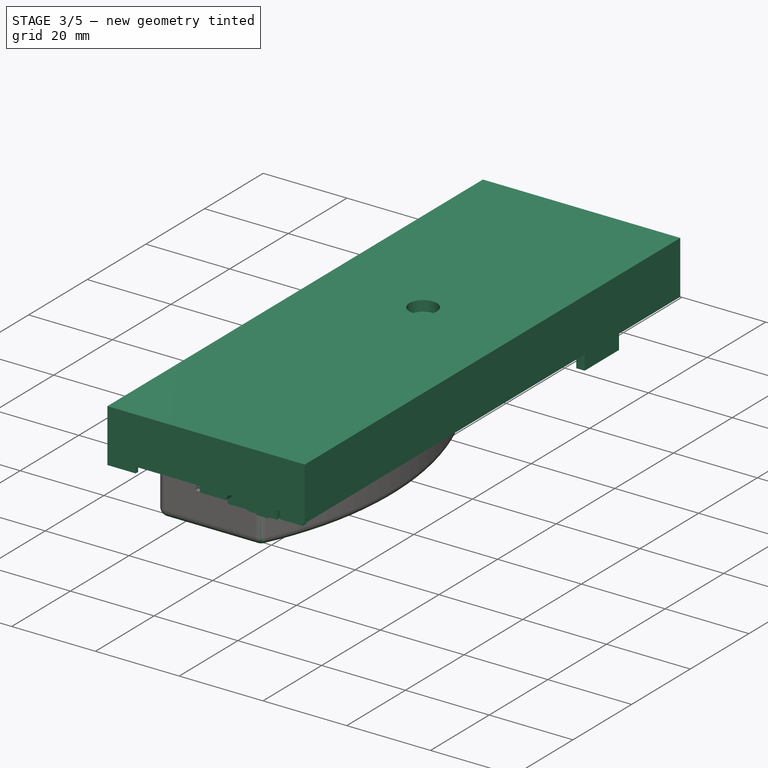
[diagram: stage 3 of 5 — iso view after this stage's code; geometry added in this stage tinted green]
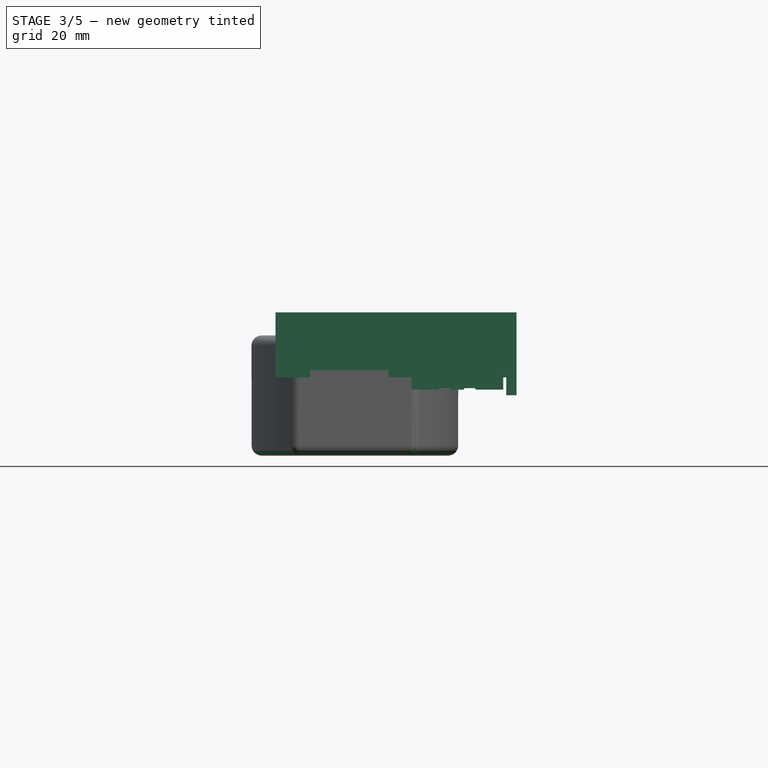
[diagram: stage 3 of 5 — front view after this stage's code; geometry added in this stage tinted green]
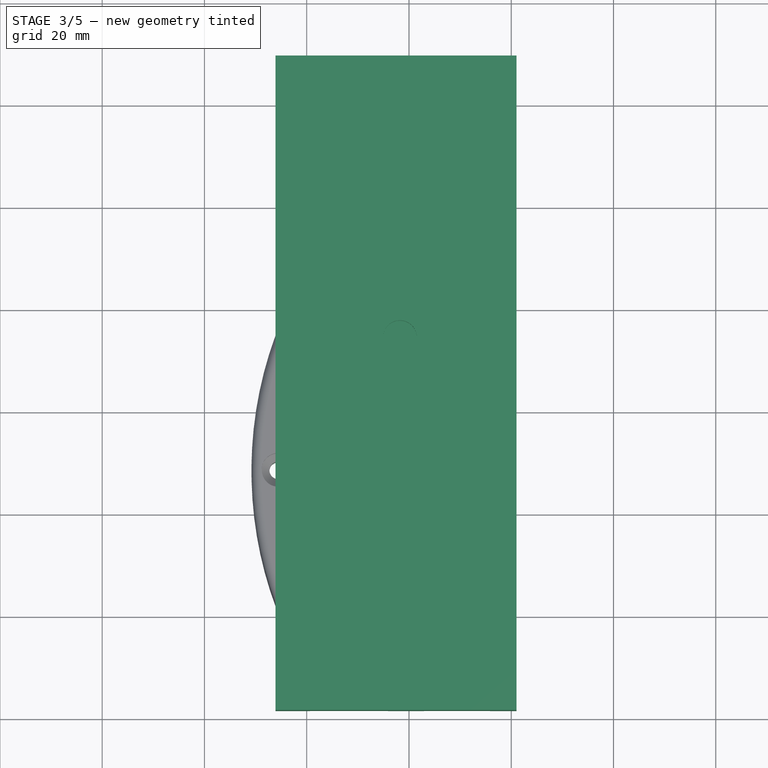
[diagram: stage 3 of 5 — top view after this stage's code; geometry added in this stage tinted green]
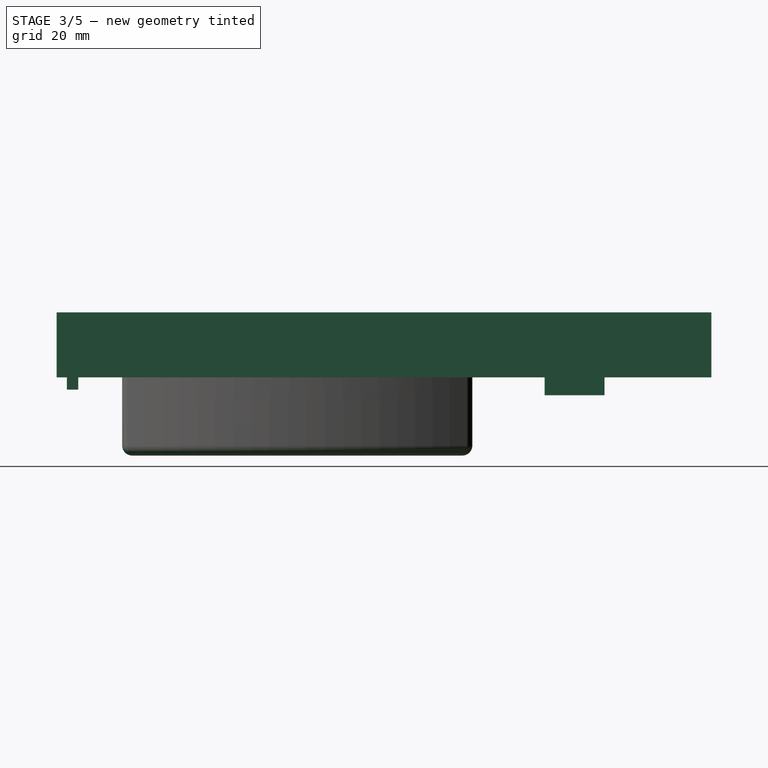
[diagram: stage 3 of 5 — right view after this stage's code; geometry added in this stage tinted green]
FEATURE [Sketcher::SketchObject] Sketch002  label="UsbHubSketch3"
  AttachmentOffset = pos=(0,0,-1) rot=(0,0,1;0rad)
  FullyConstrained = true
  MapMode = 5
  Placement = pos=(0,0,0.6) rot=(0,0,1;0rad)
  Support = -> [Pad001]
  expr: .AttachmentOffset.Base.z = <<Params>>.USB_A_O
  expr: Constraints[4] = <<Params>>.USB_A_W
  expr: Constraints[5] = <<Params>>.USB_A_H
  sketch-geometry (4):
    g0: LineSegment StartX=33.26 StartY=28.64 StartZ=0 EndX=52.06 EndY=28.64 EndZ=0
    g1: LineSegment StartX=52.06 StartY=28.64 StartZ=0 EndX=52.06 EndY=16.64 EndZ=0
    g2: LineSegment StartX=52.06 StartY=16.64 StartZ=0 EndX=33.26 EndY=16.64 EndZ=0
    g3: LineSegment StartX=33.26 StartY=16.64 StartZ=0 EndX=33.26 EndY=28.64 EndZ=0
  constraints (12):
    c: Coincident(g3,g0)
    c: Coincident(g0,g1)
    c: Coincident(g1,g2)
    c: Coincident(g2,g3)
    c: DistanceX(g0,g0) = 18.8
    c: DistanceY(g1,g1) = 12
    c: DistanceY(g-1,g2) = 16.64  'USB_A_Y'
    c: DistanceX(g-1,g2) = 33.26  'USB_A_X'
    c: Vertical(g1)
    c: Vertical(g3)
    c: Horizontal(g0)
    c: Horizontal(g2)
FEATURE [PartDesign::Pad] Pad002  label="UsbHubPad3"
  AllowMultiFace = false
  BaseFeature = -> Pad001
  Direction = (0,0,1)
  Length = 4.5
  Length2 = 100
  Profile = -> Sketch002
  Type = 0
  expr: Length = <<Params>>.USB_A_D
FEATURE [Sketcher::SketchObject] Sketch021  label="UsbHubSketch4"
  FullyConstrained = true
  MapMode = 5
  Placement = pos=(0,0,1.6) rot=(0,0,1;0rad)
  Support = -> [Pad002]
  expr: Constraints[0] = <<Params>>.USB_HUB_HOLE_X
  expr: Constraints[1] = <<Params>>.USB_HUB_HOLE_Y
  expr: Constraints[2] = <<Params>>.USB_HUB_HOLE_R
  expr: Constraints[5] = <<Params>>.USB_HUB_HOLE_W
  expr: Constraints[8] = <<Params>>.USB_HUB_HOLE_H
  sketch-geometry (4):
    g0: Circle CenterX=2.7 CenterY=11.9 CenterZ=0 NormalX=0 NormalY=0 NormalZ=1 AngleXU=0 Radius=1.25
    g1: Circle CenterX=33.5 CenterY=11.9 CenterZ=0 NormalX=0 NormalY=0 NormalZ=1 AngleXU=0 Radius=1.25
    g2: Circle CenterX=2.7 CenterY=33.1 CenterZ=0 NormalX=0 NormalY=0 NormalZ=1 AngleXU=0 Radius=1.25
    g3: Circle CenterX=33.5 CenterY=33.1 CenterZ=0 NormalX=0 NormalY=0 NormalZ=1 AngleXU=0 Radius=1.25
  constraints (12):
    c: DistanceX(g-1,g0) = 2.7
    c: DistanceY(g-1,g0) = 11.9
    c: Radius(g0) = 1.25
    c: Equal(g1,g0)
    c: Horizontal(g1,g0)
    c: DistanceX(g0,g1) = 30.8
    c: Equal(g2,g0)
    c: Vertical(g2,g0)
    c: DistanceY(g0,g2) = 21.2
    c: Equal(g3,g0)
    c: Vertical(g3,g1)
    c: Horizontal(g3,g2)
FEATURE [PartDesign::Pocket] Pocket006  label="UsbHubPocket1"
  AllowMultiFace = false
  BaseFeature = -> Pad002
  Direction = (0,0,-1)
  Length = 5
  Length2 = 100
  Profile = -> Sketch021
  Type = 1
FEATURE [PartDesign::Body] Body006  label="CaseA"
  Group = -> [Sketch015,Pad014,Sketch016,Pocket001,Sketch017,Pocket002,Sketch018,Pocket003,Sketch019,Pocket004,Sketch020,Pocket005,Sketch022,Pocket007,Sketch024,Pocket008,Sketch025,Pocket009,Sketch026,Pocket010,Sketch027,Pocket011,Sketch028,Pocket012,Sketch031,Pad016,Sketch032,Hole,Sketch033,Pocket013,Sketch034,Pocket014,Sketch035,Pocket015,Sketch036,Pad017,Sketch037,Pocket016,Sketch038,Pocket017,Fillet,+3 more]
  Origin = -> Origin006
  Placement = pos=(0,0,-6.65) rot=(0,0,1;0rad)
  Tip = -> Fillet003
  expr: .Placement.Base.z = <<Params>>.CASE_A_Z
FEATURE [Sketcher::SketchObject] Sketch039  label="CaseBSketch1"
  AttachmentOffset = pos=(0,0,15.29) rot=(0,0,1;0rad)
  FullyConstrained = true
  MapMode = 5
  Placement = pos=(0,0,15.29) rot=(0,0,1;0rad)
  Support = -> [XY_Plane007]
  expr: .AttachmentOffset.Base.z = <<Params>>.CASE_A_D
  expr: Constraints[10] = <<CaseASketch1>>.Constraints.WIDTH
  expr: Constraints[11] = <<CaseASketch1>>.Constraints.HEIGHT
  expr: Constraints[8] = <<CaseASketch1>>.Constraints.OFFSET_LEFT_X
  expr: Constraints[9] = <<CaseASketch1>>.Constraints.OFFSET_LEFT_Y
  sketch-geometry (4):
    g0: LineSegment StartX=-6.1 StartY=49.39 StartZ=0 EndX=41.03 EndY=49.39 EndZ=0
    g1: LineSegment StartX=41.03 StartY=49.39 StartZ=0 EndX=41.03 EndY=-78.65 EndZ=0
    g2: LineSegment StartX=41.03 StartY=-78.65 StartZ=0 EndX=-6.1 EndY=-78.65 EndZ=0
    g3: LineSegment StartX=-6.1 StartY=-78.65 StartZ=0 EndX=-6.1 EndY=49.39 EndZ=0
  constraints (12):
    c: Coincident(g0,g1)
    c: Coincident(g1,g2)
    c: Coincident(g2,g3)
    c: Coincident(g3,g0)
    c: Horizontal(g0)
    c: Horizontal(g2)
    c: Vertical(g1)
    c: Vertical(g3)
    c: DistanceX(g0,g-1) = 6.1
    c: DistanceY(g-1,g0) = 49.39
    c: DistanceX(g0,g0) = 47.13
    c: DistanceY(g1,g1) = 128.04
FEATURE [PartDesign::Pad] Pad018  label="CaseBPad1"
  AllowMultiFace = false
  Direction = (0,0,1)
  Length = 12.71
  Length2 = 100
  Profile = -> Sketch039
  Type = 0
  expr: Length = <<Params>>.CASE_B_D
FEATURE [Sketcher::SketchObject] Sketch040  label="CaseBSketch2"
  AttachmentOffset = pos=(0,0,15.29) rot=(0,0,1;0rad)
  FullyConstrained = true
  MapMode = 5
  Placement = pos=(0,0,15.29) rot=(0,0,1;0rad)
  Support = -> [XY_Plane007]
  expr: .AttachmentOffset.Base.z = <<Params>>.CASE_A_D
  expr: Constraints[27] = <<Params>>.SPACE_XY
  expr: Constraints[28] = <<Params>>.WALL
  expr: Constraints[29] = Sketch001.Constraints.USB_B_X + <<Params>>.USB_B_W + <<Params>>.GAP_XY - <<Params>>.WALL
  expr: Constraints[30] = Sketch001.Constraints.USB_GAP_X + <<Params>>.WALL * 2 - <<Params>>.GAP_XY * 2
  expr: Constraints[37] = <<CaseASketch2>>.Constraints.HEIGHT
  expr: Constraints[38] = <<CaseASketch2>>.Constraints.USB_HID_X2
  expr: Constraints[39] = <<CaseASketch2>>.Constraints.USB_HID_H2 + (<<Params>>.USB_HID_H - <<Params>>.PIN_HEAD_W * 12) / 2 + <<Params>>.GAP_XY
  expr: Constraints[7] = <<CaseASketch2>>.Constraints.TOP_HEIGHT
  expr: Constraints[8] = <<CaseASketch1>>.Constraints.OFFSET_LEFT_X - <<Params>>.WALL
  expr: Constraints[9] = <<CaseASketch2>>.Constraints.WIDTH
  sketch-geometry (14):
    g0: LineSegment StartX=-4.1 StartY=47.39 StartZ=0 EndX=39.03 EndY=47.39 EndZ=0
    g1: LineSegment StartX=39.03 StartY=47.39 StartZ=0 EndX=39.03 EndY=-0.5 EndZ=0
    g2: LineSegment StartX=20.48 StartY=-76.65 StartZ=0 EndX=-4.1 EndY=-76.65 EndZ=0
    g3: LineSegment StartX=-4.1 StartY=-76.65 StartZ=0 EndX=-4.1 EndY=-2.5 EndZ=0
    g4: LineSegment StartX=-4.1 StartY=-2.5 StartZ=0 EndX=13 EndY=-2.5 EndZ=0
    g5: LineSegment StartX=13 StartY=-2.5 StartZ=0 EndX=13 EndY=-12.96 EndZ=0
    g6: LineSegment StartX=13 StartY=-12.96 StartZ=0 EndX=23.46 EndY=-12.96 EndZ=0
    g7: LineSegment StartX=23.46 StartY=-12.96 StartZ=0 EndX=23.46 EndY=-2.5 EndZ=0
    g8: LineSegment StartX=23.46 StartY=-2.5 StartZ=0 EndX=39.03 EndY=-2.5 EndZ=0
    g9: LineSegment StartX=-4.1 StartY=-0.5 StartZ=0 EndX=39.03 EndY=-0.5 EndZ=0
    g10: LineSegment StartX=-4.1 StartY=-0.5 StartZ=0 EndX=-4.1 EndY=47.39 EndZ=0
    g11: LineSegment StartX=39.03 StartY=-2.5 StartZ=0 EndX=39.03 EndY=-74.425 EndZ=0
    g12: LineSegment StartX=20.48 StartY=-76.65 StartZ=0 EndX=20.48 EndY=-74.425 EndZ=0
    g13: LineSegment StartX=20.48 StartY=-74.425 StartZ=0 EndX=39.03 EndY=-74.425 EndZ=0
  constraints (40):
    c: Coincident(g0,g1)
    c: Coincident(g2,g3)
    c: Coincident(g10,g0)
    c: Horizontal(g0)
    c: Horizontal(g2)
    c: Vertical(g1)
    c: Vertical(g3)
    c: DistanceY(g-1,g0) = 47.39
    c: DistanceX(g0,g-1) = 4.1
    c: DistanceX(g0,g0) = 43.13
    c: Horizontal(g4)
    c: Coincident(g4,g5)
    c: Vertical(g5)
    c: Coincident(g5,g6)
    c: Horizontal(g6)
    c: Coincident(g6,g7)
    c: Vertical(g7)
    c: Coincident(g7,g8)
    c: Horizontal(g8)
    c: Horizontal(g7,g4)
    c: Horizontal(g9)
    c: Coincident(g3,g4)
    c: Coincident(g10,g9)
    c: Tangent(g3,g10)
    c: Coincident(g1,g9)
    c: Coincident(g11,g8)
    c: Tangent(g1,g11)
    c: DistanceY(g9,g-1) = 0.5
    c: DistanceY(g3,g9) = 2
    c: DistanceX(g-1,g4) = 13
    c: DistanceX(g4,g7) = 10.46
    c: Equal(g7,g6)
    c: Vertical(g12)
    c: Coincident(g12,g13)
    c: Horizontal(g13)
    c: Coincident(g2,g12)
    c: Coincident(g11,g13)
    c: DistanceY(g2,g0) = 124.04
    c: DistanceX(g-1,g12) = 20.48
    c: DistanceY(g2,g12) = 2.225
FEATURE [PartDesign::Pocket] Pocket018  label="CaseBPocket1"
  AllowMultiFace = false
  BaseFeature = -> Pad018
  Direction = (0,0,-1)
  Length = 10.71
  Length2 = 100
  Profile = -> Sketch040
  Reversed = true
  Type = 0
  expr: Length = <<Params>>.CASE_B_D - <<Params>>.WALL
FEATURE [Sketcher::SketchObject] Sketch041  label="CaseBSketch3"
  AttachmentOffset = pos=(0,0,78.65) rot=(0,0,1;0rad)
  FullyConstrained = true
  MapMode = 5
  Placement = pos=(0,-78.65,-1.75e-14) rot=(1,0,0;1.5708rad)
  Support = -> [XZ_Plane007]
  expr: .AttachmentOffset.Base.z = <<CaseASketch1>>.Constraints.HEIGHT - <<CaseASketch1>>.Constraints.OFFSET_LEFT_Y
  expr: .Constraints.USB_H = <<Params>>.USB_M_H * 2
  expr: .Constraints.USB_W = <<Params>>.USB_HID_W * 0.8
  expr: Constraints[10] = <<HdmiCapture>>.Placement.Base.x + <<HdmiCaptureSketch4>>.Constraints.HDMI_X - <<Params>>.GAP_XY
  expr: Constraints[11] = <<HdmiCaptureSketch4>>.Constraints.HDMI_W + 2 * <<Params>>.GAP_XY
  expr: Constraints[14] = <<HdmiCaptureSketch4>>.Constraints.HDMI_INNER_W + 2 * <<Params>>.GAP_XY
  expr: Constraints[15] = -<<Params>>.CASE_A_Z - <<UsbHub>>.Placement.Base.z + <<HdmiCapture>>.Placement.Base.z + <<Params>>.HDMI_CAP_D + <<HdmiCaptureSketch4>>.Constraints.HDMI_Y - <<Params>>.GAP_Z
  expr: Constraints[16] = <<Params>>.HDMI_D - <<HdmiCaptureSketch4>>.Constraints.HDMI_Y + 2 * <<Params>>.GAP_Z
  expr: Constraints[17] = <<HdmiCaptureSketch4>>.Constraints.HDMI_H - <<HdmiCaptureSketch4>>.Constraints.HDMI_Y
  expr: Constraints[18] = <<UsbHid>>.Placement.Base.x + <<Params>>.USB_HID_W / 2
  expr: Constraints[19] = -<<Params>>.CASE_A_Z - <<UsbHub>>.Placement.Base.z + <<UsbHid>>.Placement.Base.z + <<Params>>.USB_HID_D + <<Params>>.USB_M_D / 2
  expr: Constraints[37] = .Constraints.USB_H / 2
  expr: Constraints[38] = .Constraints.USB_W / 2
  sketch-geometry (15):
    g0: LineSegment StartX=0.65 StartY=16.725 StartZ=0 EndX=0.65 EndY=12.925 EndZ=0
    g1: LineSegment StartX=0.65 StartY=12.925 StartZ=0 EndX=3.15 EndY=11.025 EndZ=0
    g2: LineSegment StartX=3.15 StartY=11.025 StartZ=0 EndX=13.45 EndY=11.025 EndZ=0
    g3: LineSegment StartX=13.45 StartY=11.025 StartZ=0 EndX=15.95 EndY=12.925 EndZ=0
    g4: LineSegment StartX=15.95 StartY=12.925 StartZ=0 EndX=15.95 EndY=16.725 EndZ=0
    g5: LineSegment StartX=15.95 StartY=16.725 StartZ=0 EndX=0.65 EndY=16.725 EndZ=0
    g6: GeomPoint X=29.43 Y=11.67 Z=0
    g7: LineSegment StartX=23.77 StartY=16.67 StartZ=0 EndX=35.09 EndY=16.67 EndZ=0
    g8: LineSegment StartX=36.59 StartY=15.17 StartZ=0 EndX=36.59 EndY=8.17 EndZ=0
    g9: LineSegment StartX=35.09 StartY=6.67 StartZ=0 EndX=23.77 EndY=6.67 EndZ=0
    g10: LineSegment StartX=22.27 StartY=8.17 StartZ=0 EndX=22.27 EndY=15.17 EndZ=0
    g11: ArcOfCircle CenterX=23.77 CenterY=15.17 CenterZ=0 NormalX=0 NormalY=0 NormalZ=1 AngleXU=0 Radius=1.5 StartAngle=1.5708 EndAngle=3.14159
    g12: ArcOfCircle CenterX=23.77 CenterY=8.17 CenterZ=0 NormalX=0 NormalY=0 NormalZ=1 AngleXU=0 Radius=1.5 StartAngle=3.14159 EndAngle=4.71239
    g13: ArcOfCircle CenterX=35.09 CenterY=8.17 CenterZ=0 NormalX=0 NormalY=0 NormalZ=1 AngleXU=0 Radius=1.5 StartAngle=4.71239 EndAngle=6.28319
    g14: ArcOfCircle CenterX=35.09 CenterY=15.17 CenterZ=0 NormalX=0 NormalY=0 NormalZ=1 AngleXU=0 Radius=1.5 StartAngle=0 EndAngle=1.5708
  constraints (40):
    c: Coincident(g0,g1)
    c: Coincident(g1,g2)
    c: Coincident(g2,g3)
    c: Coincident(g3,g4)
    c: Coincident(g4,g5)
    c: Coincident(g5,g0)
    c: Vertical(g0)
    c: Vertical(g4)
    c: Horizontal(g2)
    c: Horizontal(g5)
    c: DistanceX(g-1,g0) = 0.65
    c: DistanceX(g5,g5) = 15.3
    c: Equal(g1,g3)
    c: Horizontal(g0,g3)
    c: DistanceX(g2,g2) = 10.3
    c: DistanceY(g-1,g1) = 11.025
    c: DistanceY(g2,g4) = 5.7
    c: DistanceY(g2,g3) = 1.9
    c: DistanceX(g-1,g6) = 29.43
    c: DistanceY(g-1,g6) = 11.67
    c: Horizontal(g7)
    c: Horizontal(g9)
    c: Vertical(g8)
    c: Vertical(g10)
    c: Tangent(g7,g11) = 1.5708
    c: Tangent(g10,g11) = 1.5708
    c: Tangent(g10,g12) = 1.5708
    c: Tangent(g9,g12) = 1.5708
    c: Tangent(g9,g13) = 1.5708
    c: Tangent(g8,g13) = 1.5708
    c: Tangent(g8,g14) = 1.5708
    c: Tangent(g7,g14) = 1.5708
    c: Equal(g14,g11)
    c: Equal(g12,g11)
    c: Equal(g13,g11)
    c: DistanceX(g10,g8) = 14.32  'USB_W'
    c: DistanceY(g9,g7) = 10  'USB_H'
    c: DistanceY(g6,g7) = 5
    c: DistanceX(g6,g8) = 7.16
    c: Radius(g11) = 1.5  'USB_R'
FEATURE [PartDesign::Pocket] Pocket019  label="CaseBPocket2"
  AllowMultiFace = false
  BaseFeature = -> Pocket018
  Direction = (0,1,2e-16)
  Length = 2
  Length2 = 100
  Profile = -> Sketch041
  Type = 0
  expr: Length = <<Params>>.WALL
FEATURE [Sketcher::SketchObject] Sketch042  label="CaseBSketch4"
  AttachmentOffset = pos=(0,0,15.29) rot=(0,0,1;0rad)
  FullyConstrained = true
  MapMode = 5
  Placement = pos=(0,0,15.29) rot=(0,0,1;0rad)
  Support = -> [XY_Plane007]
  expr: .AttachmentOffset.Base.z = <<Params>>.CASE_A_D
  expr: Constraints[10] = <<UsbHubSketch3>>.Constraints.USB_A_Y + <<Params>>.GAP_XY
  expr: Constraints[11] = <<Params>>.USB_A_H - 2 * <<Params>>.GAP_XY
  expr: Constraints[8] = <<CaseASketch1>>.Constraints.WIDTH - <<CaseASketch1>>.Constraints.OFFSET_LEFT_X - <<Params>>.WALL
  expr: Constraints[9] = <<Params>>.WALL
  sketch-geometry (4):
    g0: LineSegment StartX=39.03 StartY=28.49 StartZ=0 EndX=41.03 EndY=28.49 EndZ=0
    g1: LineSegment StartX=41.03 StartY=28.49 StartZ=0 EndX=41.03 EndY=16.79 EndZ=0
    g2: LineSegment StartX=41.03 StartY=16.79 StartZ=0 EndX=39.03 EndY=16.79 EndZ=0
    g3: LineSegment StartX=39.03 StartY=16.79 StartZ=0 EndX=39.03 EndY=28.49 EndZ=0
  constraints (12):
    c: Coincident(g0,g1)
    c: Coincident(g1,g2)
    c: Coincident(g2,g3)
    c: Coincident(g3,g0)
    c: Horizontal(g0)
    c: Horizontal(g2)
    c: Vertical(g1)
    c: Vertical(g3)
    c: DistanceX(g-1,g2) = 39.03
    c: DistanceX(g0,g0) = 2
    c: DistanceY(g-1,g2) = 16.79
    c: DistanceY(g1,g1) = 11.7
FEATURE [PartDesign::Pad] Pad019  label="CaseBPad3"
  AllowMultiFace = false
  BaseFeature = -> Pocket019
  Direction = (0,0,1)
  Length = 3.49
  Length2 = 100
  Profile = -> Sketch042
  Reversed = true
  Type = 0
  expr: Length = <<Params>>.USB_B_D - <<Params>>.USB_A_O - <<Params>>.USB_A_D
FEATURE [Sketcher::SketchObject] Sketch043  label="CaseBSketch5"
  AttachmentOffset = pos=(0,0,15.29) rot=(0,0,1;0rad)
  FullyConstrained = true
  MapMode = 5
  Placement = pos=(0,0,15.29) rot=(0,0,1;0rad)
  Support = -> [XY_Plane007]
  expr: .AttachmentOffset.Base.z = <<Params>>.CASE_A_D
  expr: Constraints[10] = <<CaseASketch2>>.Constraints.USB_HID_Y2 - 2 * <<Params>>.GAP_XY
  expr: Constraints[11] = (<<Params>>.USB_HID_H - <<Params>>.PIN_HEAD_W * 12 - <<Params>>.GAP_XY * 2) / 2
  expr: Constraints[17] = <<CaseASketch5>>.Constraints.USB_X + 2 * <<Params>>.GAP_XY
  expr: Constraints[18] = <<Params>>.USB_M_W - 2 * <<Params>>.GAP_XY
  expr: Constraints[19] = <<CaseASketch1>>.Constraints.HEIGHT - <<CaseASketch1>>.Constraints.OFFSET_LEFT_Y - <<Params>>.WALL
  expr: Constraints[8] = <<CaseASketch2>>.Constraints.USB_HID_X2
  expr: Constraints[9] = <<CaseASketch1>>.Constraints.WIDTH - <<CaseASketch1>>.Constraints.OFFSET_LEFT_X - <<Params>>.WALL - 4 * <<Params>>.GAP_XY
  sketch-geometry (8):
    g0: LineSegment StartX=20.48 StartY=-74.425 StartZ=0 EndX=38.43 EndY=-74.425 EndZ=0
    g1: LineSegment StartX=38.43 StartY=-74.425 StartZ=0 EndX=38.43 EndY=-75.61 EndZ=0
    g2: LineSegment StartX=38.43 StartY=-75.61 StartZ=0 EndX=32.98 EndY=-75.61 EndZ=0
    g3: LineSegment StartX=20.48 StartY=-75.61 StartZ=0 EndX=20.48 EndY=-74.425 EndZ=0
    g4: LineSegment StartX=25.88 StartY=-76.65 StartZ=0 EndX=32.98 EndY=-76.65 EndZ=0
    g5: LineSegment StartX=32.98 StartY=-76.65 StartZ=0 EndX=32.98 EndY=-75.61 EndZ=0
    g6: LineSegment StartX=25.88 StartY=-75.61 StartZ=0 EndX=25.88 EndY=-76.65 EndZ=0
    g7: LineSegment StartX=25.88 StartY=-75.61 StartZ=0 EndX=20.48 EndY=-75.61 EndZ=0
  constraints (23):
    c: Coincident(g0,g1)
    c: Coincident(g1,g2)
    c: Coincident(g7,g3)
    c: Coincident(g3,g0)
    c: Horizontal(g0)
    c: Horizontal(g2)
    c: Vertical(g1)
    c: Vertical(g3)
    c: DistanceX(g-1,g0) = 20.48
    c: DistanceX(g-1,g0) = 38.43
    c: DistanceY(g7,g-1) = 75.61
    c: DistanceY(g3,g3) = 1.185
    c: Coincident(g4,g5)
    c: Coincident(g6,g4)
    c: Horizontal(g4)
    c: Vertical(g5)
    c: Vertical(g6)
    c: DistanceX(g-1,g6) = 25.88
    c: DistanceX(g4,g4) = 7.1
    c: DistanceY(g4,g-1) = 76.65
    c: Tangent(g2,g7)
    c: Coincident(g6,g7)
    c: Coincident(g2,g5)
FEATURE [PartDesign::Pad] Pad020  label="CaseBPad4"
  AllowMultiFace = false
  BaseFeature = -> Pad019
  Direction = (0,0,1)
  Length = 2.395
  Length2 = 100
  Profile = -> Sketch043
  Reversed = true
  Type = 0
  expr: Length = <<Params>>.CASE_A_D + <<Params>>.CASE_A_Z - <<UsbHub>>.Placement.Base.z - <<UsbHid>>.Placement.Base.z - <<Params>>.USB_HID_D - <<Params>>.USB_M_D - <<Params>>.GAP_Z
FEATURE [Sketcher::SketchObject] Sketch044  label="CaseBSketch6"
  AttachmentOffset = pos=(0,0,12.895) rot=(0,0,1;0rad)
  FullyConstrained = true
  MapMode = 5
  Placement = pos=(0,0,12.895) rot=(0,0,1;0rad)
  Support = -> [XY_Plane007]
  expr: .AttachmentOffset.Base.z = <<Params>>.CASE_A_D - (<<Params>>.CASE_A_D + <<Params>>.CASE_A_Z - <<UsbHub>>.Placement.Base.z - <<UsbHid>>.Placement.Base.z - <<Params>>.USB_HID_D - <<Params>>.USB_M_D - <<Params>>.GAP_Z)
  expr: .Constraints.OFFSET_X = <<Params>>.GAP_XY
  expr: Constraints[10] = <<Params>>.USB_M_H
  expr: Constraints[11] = -<<UsbHid>>.Placement.Base.y + <<Params>>.USB_M_O
  expr: Constraints[34] = .Constraints.OFFSET_X
  expr: Constraints[35] = 2.2 mm + <<Params>>.GAP_XY
  expr: Constraints[8] = <<UsbHid>>.Placement.Base.x + (<<Params>>.USB_HID_W - <<Params>>.USB_M_W) / 2
  expr: Constraints[9] = <<Params>>.USB_M_W
  sketch-geometry (12):
    g0: LineSegment StartX=25.73 StartY=-71.7 StartZ=0 EndX=33.13 EndY=-71.7 EndZ=0
    g1: LineSegment StartX=33.13 StartY=-71.7 StartZ=0 EndX=33.13 EndY=-76.7 EndZ=0
    g2: LineSegment StartX=33.13 StartY=-76.7 StartZ=0 EndX=25.73 EndY=-76.7 EndZ=0
    g3: LineSegment StartX=25.73 StartY=-76.7 StartZ=0 EndX=25.73 EndY=-71.7 EndZ=0
    g4: LineSegment StartX=25.88 StartY=-71.7 StartZ=0 EndX=28.08 EndY=-71.7 EndZ=0
    g5: LineSegment StartX=28.08 StartY=-71.7 StartZ=0 EndX=28.08 EndY=-76.7 EndZ=0
    g6: LineSegment StartX=28.08 StartY=-76.7 StartZ=0 EndX=25.88 EndY=-76.7 EndZ=0
    g7: LineSegment StartX=25.88 StartY=-76.7 StartZ=0 EndX=25.88 EndY=-71.7 EndZ=0
    g8: LineSegment StartX=30.78 StartY=-71.7 StartZ=0 EndX=32.98 EndY=-71.7 EndZ=0
    g9: LineSegment StartX=32.98 StartY=-71.7 StartZ=0 EndX=32.98 EndY=-76.7 EndZ=0
    g10: LineSegment StartX=32.98 StartY=-76.7 StartZ=0 EndX=30.78 EndY=-76.7 EndZ=0
    g11: LineSegment StartX=30.78 StartY=-76.7 StartZ=0 EndX=30.78 EndY=-71.7 EndZ=0
  constraints (36):
    c: Coincident(g0,g1)
    c: Coincident(g1,g2)
    c: Coincident(g2,g3)
    c: Coincident(g3,g0)
    c: Horizontal(g0)
    c: Horizontal(g2)
    c: Vertical(g1)
    c: Vertical(g3)
    c: DistanceX(g-1,g0) = 25.73
    c: DistanceX(g0,g0) = 7.4
    c: DistanceY(g1,g1) = 5
    c: DistanceY(g2,g-1) = 76.7
    c: Coincident(g4,g5)
    c: Coincident(g5,g6)
    c: Coincident(g6,g7)
    c: Coincident(g7,g4)
    c: Horizontal(g4)
    c: Horizontal(g6)
    c: Vertical(g5)
    c: Vertical(g7)
    c: Coincident(g8,g9)
    c: Coincident(g9,g10)
    c: Coincident(g10,g11)
    c: Coincident(g11,g8)
    c: Horizontal(g8)
    c: Horizontal(g10)
    c: Vertical(g9)
    c: Vertical(g11)
    c: Equal(g4,g8)
    c: PointOnObject(g6,g2)
    c: Horizontal(g10,g5)
    c: Horizontal(g8,g4)
    c: PointOnObject(g4,g0)
    c: DistanceX(g0,g4) = 0.15  'OFFSET_X'
    c: DistanceX(g8,g0) = 0.15
    c: DistanceX(g0,g4) = 2.35
FEATURE [PartDesign::Pocket] Pocket020  label="CaseBPocket3"
  AllowMultiFace = false
  BaseFeature = -> Pad020
  Direction = (0,0,-1)
  Length = 0.3
  Length2 = 100
  Profile = -> Sketch044
  Reversed = true
  Type = 0
FEATURE [Sketcher::SketchObject] Sketch045  label="CaseBSketch7"
  AttachmentOffset = pos=(0,0,15.29) rot=(0,0,1;0rad)
  FullyConstrained = true
  MapMode = 5
  Placement = pos=(0,0,15.29) rot=(0,0,1;0rad)
  Support = -> [XY_Plane007]
  expr: .AttachmentOffset.Base.z = <<Params>>.CASE_A_D
  expr: Constraints[14] = <<Params>>.WALL / 2 + <<Params>>.GAP_XY
  expr: Constraints[15] = <<Params>>.USB_HUB_H * 3 / 4 - 2 * <<Params>>.GAP_XY
  expr: Constraints[16] = <<Params>>.USB_HUB_H + <<Params>>.SPACE_XY + <<Params>>.GAP_XY
  expr: Constraints[17] = <<CaseASketch1>>.Constraints.OFFSET_LEFT_X - <<Params>>.WALL
  expr: Constraints[32] = <<Params>>.USB_HUB_W - 2 * <<Params>>.GAP_XY
  expr: Constraints[33] = <<CaseASketch2>>.Constraints.WIDTH
  expr: Constraints[44] = <<Params>>.USB_HUB_W / 4 + 2 * <<Params>>.GAP_XY
  expr: Constraints[45] = -<<HdmiCapture>>.Placement.Base.y - <<Params>>.HDMI_CAP_H + 2 * <<Params>>.GAP_XY
  expr: Constraints[70] = <<CaseASketch2>>.Constraints.HEIGHT
  expr: Constraints[71] = <<Params>>.HDMI_H + 2 * <<Params>>.GAP_XY
  expr: Constraints[72] = <<HdmiCaptureSketch4>>.Constraints.HDMI_X + <<Params>>.SPACE_XY
  expr: Constraints[85] = (<<Params>>.USB_HID_W - <<Params>>.USB_M_W) / 2 - <<Params>>.USB_M_W / 2
  expr: Constraints[87] = 2 * <<Params>>.GAP_XY
  expr: Constraints[89] = 2 * <<Params>>.GAP_XY
  expr: Constraints[93] = 2 * <<Params>>.GAP_XY
  sketch-geometry (32):
    g0: LineSegment StartX=-4.1 StartY=34.755 StartZ=0 EndX=-4.1 EndY=47.39 EndZ=0
    g1: LineSegment StartX=-4.1 StartY=47.39 StartZ=0 EndX=0 EndY=47.39 EndZ=0
    g2: LineSegment StartX=0 StartY=47.39 StartZ=0 EndX=0 EndY=48.54 EndZ=0
    g3: LineSegment StartX=0 StartY=48.54 StartZ=0 EndX=-5.25 EndY=48.54 EndZ=0
    g4: LineSegment StartX=-5.25 StartY=48.54 StartZ=0 EndX=-5.25 EndY=34.755 EndZ=0
    g5: LineSegment StartX=-5.25 StartY=34.755 StartZ=0 EndX=-4.1 EndY=34.755 EndZ=0
    g6: LineSegment StartX=36.36 StartY=48.54 StartZ=0 EndX=40.18 EndY=48.54 EndZ=0
    g7: LineSegment StartX=40.18 StartY=48.54 StartZ=0 EndX=40.18 EndY=34.755 EndZ=0
    g8: LineSegment StartX=40.18 StartY=34.755 StartZ=0 EndX=39.03 EndY=34.755 EndZ=0
    g9: LineSegment StartX=39.03 StartY=34.755 StartZ=0 EndX=39.03 EndY=47.39 EndZ=0
    g10: LineSegment StartX=39.03 StartY=47.39 StartZ=0 EndX=36.36 EndY=47.39 EndZ=0
    g11: LineSegment StartX=36.36 StartY=47.39 StartZ=0 EndX=36.36 EndY=48.54 EndZ=0
    g12: LineSegment StartX=-3.8 StartY=9.465 StartZ=0 EndX=-5.25 EndY=9.465 EndZ=0
    g13: LineSegment StartX=-5.25 StartY=9.465 StartZ=0 EndX=-5.25 EndY=-11.3 EndZ=0
    g14: LineSegment StartX=-5.25 StartY=-11.3 StartZ=0 EndX=-3.8 EndY=-11.3 EndZ=0
    g15: LineSegment StartX=-3.8 StartY=-11.3 StartZ=0 EndX=-3.8 EndY=9.465 EndZ=0
    g16: LineSegment StartX=38.73 StartY=9.465 StartZ=0 EndX=40.18 EndY=9.465 EndZ=0
    g17: LineSegment StartX=40.18 StartY=9.465 StartZ=0 EndX=40.18 EndY=-11.3 EndZ=0
    g18: LineSegment StartX=40.18 StartY=-11.3 StartZ=0 EndX=38.73 EndY=-11.3 EndZ=0
    g19: LineSegment StartX=38.73 StartY=-11.3 StartZ=0 EndX=38.73 EndY=9.465 EndZ=0
    g20: LineSegment StartX=-4.1 StartY=-65.45 StartZ=0 EndX=-4.1 EndY=-76.65 EndZ=0
    g21: LineSegment StartX=-4.1 StartY=-76.65 StartZ=0 EndX=0.65 EndY=-76.65 EndZ=0
    g22: LineSegment StartX=0.65 StartY=-76.65 StartZ=0 EndX=0.65 EndY=-77.8 EndZ=0
    g23: LineSegment StartX=0.65 StartY=-77.8 StartZ=0 EndX=-5.25 EndY=-77.8 EndZ=0
    g24: LineSegment StartX=-5.25 StartY=-77.8 StartZ=0 EndX=-5.25 EndY=-65.45 EndZ=0
    g25: LineSegment StartX=-5.25 StartY=-65.45 StartZ=0 EndX=-4.1 EndY=-65.45 EndZ=0
    g26: LineSegment StartX=38.43 StartY=-65.45 StartZ=0 EndX=40.18 EndY=-65.45 EndZ=0
    g27: LineSegment StartX=40.18 StartY=-65.45 StartZ=0 EndX=40.18 EndY=-77.8 EndZ=0
    g28: LineSegment StartX=40.18 StartY=-77.8 StartZ=0 EndX=36.88 EndY=-77.8 EndZ=0
    g29: LineSegment StartX=36.88 StartY=-77.8 StartZ=0 EndX=36.88 EndY=-76.35 EndZ=0
    g30: LineSegment StartX=36.88 StartY=-76.35 StartZ=0 EndX=38.43 EndY=-76.35 EndZ=0
    g31: LineSegment StartX=38.43 StartY=-76.35 StartZ=0 EndX=38.43 EndY=-65.45 EndZ=0
  constraints (96):
    c: Vertical(g0)
    c: Coincident(g0,g1)
    c: PointOnObject(g1,g-2)
    c: Coincident(g1,g2)
    c: PointOnObject(g2,g-2)
    c: Coincident(g2,g3)
    c: Horizontal(g3)
    c: Coincident(g3,g4)
    c: Vertical(g4)
    c: Coincident(g4,g5)
    c: Coincident(g0,g5)
    c: Horizontal(g5)
    c: Horizontal(g1)
    c: Equal(g5,g2)
    c: DistanceX(g5,g5) = 1.15
    c: DistanceY(g-1,g0) = 34.755
    c: DistanceY(g-1,g1) = 47.39
    c: DistanceX(g0,g-1) = 4.1
    c: Horizontal(g6)
    c: Coincident(g6,g7)
    c: Vertical(g7)
    c: Coincident(g7,g8)
    c: Horizontal(g8)
    c: Coincident(g8,g9)
    c: Vertical(g9)
    c: Coincident(g9,g10)
    c: Horizontal(g10)
    c: Coincident(g10,g11)
    c: Coincident(g6,g11)
    c: Vertical(g11)
    c: Equal(g11,g5)
    c: Horizontal(g10,g1)
    c: DistanceX(g2,g6) = 36.36
    c: DistanceX(g0,g8) = 43.13
    c: Equal(g8,g11)
    c: Horizontal(g8,g0)
    c: Coincident(g12,g13)
    c: Coincident(g13,g14)
    c: Coincident(g14,g15)
    c: Coincident(g15,g12)
    c: Horizontal(g12)
    c: Horizontal(g14)
    c: Vertical(g13)
    c: Vertical(g15)
    c: DistanceY(g-1,g12) = 9.465
    c: DistanceY(g14,g-1) = 11.3
    c: Coincident(g16,g17)
    c: Coincident(g17,g18)
    c: Coincident(g18,g19)
    c: Coincident(g19,g16)
    c: Horizontal(g16)
    c: Horizontal(g18)
    c: Vertical(g17)
    c: Vertical(g19)
    c: Horizontal(g16,g12)
    c: Horizontal(g18,g14)
    c: Vertical(g20)
    c: Coincident(g20,g21)
    c: Horizontal(g21)
    c: Coincident(g21,g22)
    c: Vertical(g22)
    c: Coincident(g22,g23)
    c: Horizontal(g23)
    c: Coincident(g23,g24)
    c: Vertical(g24)
    c: Coincident(g24,g25)
    c: Coincident(g20,g25)
    c: Horizontal(g25)
    c: Equal(g25,g5)
    c: Equal(g22,g25)
    c: DistanceY(g20,g0) = 124.04
    c: DistanceY(g20,g20) = 11.2
    c: DistanceX(g21,g21) = 4.75
    c: Horizontal(g26)
    c: Coincident(g26,g27)
    c: Vertical(g27)
    c: Coincident(g27,g28)
    c: Horizontal(g28)
    c: Coincident(g28,g29)
    c: Vertical(g29)
    c: Coincident(g29,g30)
    c: Horizontal(g30)
    c: Coincident(g30,g31)
    c: Vertical(g31)
    c: Coincident(g26,g31)
    c: DistanceX(g29,g30) = 1.55
    c: Horizontal(g26,g20)
    c: DistanceY(g21,g29) = 0.3
    c: Horizontal(g28,g22)
    c: DistanceX(g26,g18) = 0.3
    c: Vertical(g26,g17)
    c: Vertical(g20,g0)
    c: Vertical(g12,g4)
    c: DistanceX(g0,g12) = 0.3
    c: Vertical(g16,g7)
    c: Equal(g16,g12)
FEATURE [PartDesign::Pocket] Pocket021  label="CaseBPocket4"
  AllowMultiFace = false
  BaseFeature = -> Pocket020
  Direction = (0,0,-1)
  Length = 2.6
  Length2 = 100
  Profile = -> Sketch045
  Reversed = true
  Type = 0
  expr: Length = <<Params>>.CASE_A_L + 2 * <<Params>>.GAP_Z
FEATURE [Sketcher::SketchObject] Sketch046  label="CaseBSketch8"
  AttachmentOffset = pos=(0,0,28) rot=(0,0,1;0rad)
  FullyConstrained = true
  MapMode = 5
  Placement = pos=(0,0,28) rot=(0,0,1;0rad)
  Support = -> [XY_Plane007]
  expr: .AttachmentOffset.Base.z = <<Params>>.CASE_A_D + <<Params>>.CASE_B_D
  expr: Constraints[0] = <<UsbHubSketch2>>.Constraints.USB_B_X + <<Params>>.USB_B_W + <<UsbHubSketch2>>.Constraints.USB_GAP_X / 2
  expr: Constraints[1] = <<Params>>.SPACE_XY + <<Params>>.WALL + <<UsbHubSketch2>>.Constraints.USB_GAP_X / 2 - <<Params>>.GAP_XY
  expr: Constraints[2] = 3.15 mm + <<Params>>.GAP_XY
  sketch-geometry (1):
    g0: Circle CenterX=18.23 CenterY=-5.73 CenterZ=0 NormalX=0 NormalY=0 NormalZ=1 AngleXU=0 Radius=3.3
  constraints (3):
    c: DistanceX(g-1,g0) = 18.23
    c: DistanceY(g0,g-1) = 5.73
    c: Radius(g0) = 3.3
FEATURE [PartDesign::Pocket] Pocket022  label="CaseBPocket5"
  AllowMultiFace = false
  BaseFeature = -> Pocket021
  Direction = (0,0,-1)
  Length = 2.5
  Length2 = 100
  Profile = -> Sketch046
  Type = 0
  expr: Length = <<Params>>.CASE_A_D + <<Params>>.CASE_B_D - 25.5 mm
FEATURE [Sketcher::SketchObject] Sketch066  label="SmallCaseASketch8"
  AttachmentOffset = pos=(0,0,10.65) rot=(0,0,1;0rad)
  FullyConstrained = true
  MapMode = 5
  Placement = pos=(0,0,10.65) rot=(0,0,1;0rad)
  Support = -> [XY_Plane008]
  expr: .AttachmentOffset.Base.z = <<Params>>.SMALL_CASE_A_D
  expr: Constraints[0] = <<SmallCaseASketch2>>.Constraints.USB_SER_X
  expr: Constraints[1] = <<SmallCaseASketch2>>.Constraints.USB_SER_Y
  expr: Constraints[2] = <<SmallCaseASketch2>>.Constraints.USB_SER_R - <<Params>>.WALL / 2
  expr: Constraints[3] = <<SmallCaseASketch2>>.Constraints.USB_HID_X
  expr: Constraints[4] = <<SmallCaseASketch2>>.Constraints.USB_HID_Y
  expr: Constraints[5] = <<SmallCaseASketch2>>.Constraints.USB_HID_R - <<Params>>.WALL / 2
  sketch-geometry (2):
    g0: Circle CenterX=8.625 CenterY=-22.125 CenterZ=0 NormalX=0 NormalY=0 NormalZ=1 AngleXU=0 Radius=2
    g1: Circle CenterX=9.895 CenterY=-48.185 CenterZ=0 NormalX=0 NormalY=0 NormalZ=1 AngleXU=0 Radius=4
  constraints (6):
    c: DistanceX(g-1,g0) = 8.625
    c: DistanceY(g0,g-1) = 22.125
    c: Radius(g0) = 2
    c: DistanceX(g-1,g1) = 9.895
    c: DistanceY(g1,g-1) = 48.185
    c: Radius(g1) = 4
FEATURE [PartDesign::Pocket] Pocket039  label="SmallCaseAPocket7"
  AllowMultiFace = false
  BaseFeature = -> Pocket032
  Direction = (0,0,-1)
  Length = 8.65
  Length2 = 100
  Profile = -> Sketch066
  Type = 0
  expr: Length = <<Params>>.SMALL_CASE_A_D - <<Params>>.WALL
FEATURE [PartDesign::Pad] Pad028  label="SmallCaseAPad3"
  AllowMultiFace = false
  BaseFeature = -> Pocket039
  Direction = (0,0,1)
  Length = 3
  Length2 = 100
  Profile = -> Sketch052
  Refine = true
  Type = 0
FEATURE [Sketcher::SketchObject] Sketch067  label="SmallCaseASketch10"
  FullyConstrained = true
  MapMode = 5
  Support = -> [XY_Plane008]
  expr: Constraints[18] = Spreadsheet.SMALL_CASE_NUT_W + 2 * <<Params>>.GAP_XY
  expr: Constraints[19] = <<SmallCaseASketch1>>.Constraints.HEIGHT / 2 - <<SmallCaseASketch1>>.Constraints.OFFSET_LEFT_Y
  expr: Constraints[20] = <<SmallCaseASketch1>>.Constraints.OFFSET_LEFT_X
  expr: Constraints[39] = Spreadsheet.SMALL_CASE_NUT_W + 2 * <<Params>>.GAP_XY
  expr: Constraints[41] = <<SmallCaseASketch1>>.Constraints.WIDTH
  sketch-geometry (14):
    g0: LineSegment StartX=-2.65 StartY=-33.2743 StartZ=0 EndX=-2.65 EndY=-29.9257 EndZ=0
    g1: LineSegment StartX=-2.65 StartY=-29.9257 StartZ=0 EndX=-5.55 EndY=-28.2514 EndZ=0
    g2: LineSegment StartX=-5.55 StartY=-28.2514 StartZ=0 EndX=-8.45 EndY=-29.9257 EndZ=0
    g3: LineSegment StartX=-8.45 StartY=-29.9257 StartZ=0 EndX=-8.45 EndY=-33.2743 EndZ=0
    g4: LineSegment StartX=-8.45 StartY=-33.2743 StartZ=0 EndX=-5.55 EndY=-34.9486 EndZ=0
    g5: LineSegment StartX=-5.55 StartY=-34.9486 StartZ=0 EndX=-2.65 EndY=-33.2743 EndZ=0
    g6: Circle CenterX=-5.55 CenterY=-31.6 CenterZ=0 NormalX=0 NormalY=0 NormalZ=1 AngleXU=0 Radius=3.34863
    g7: LineSegment StartX=27.295 StartY=-33.2743 StartZ=0 EndX=27.295 EndY=-29.9257 EndZ=0
    g8: LineSegment StartX=27.295 StartY=-29.9257 StartZ=0 EndX=24.395 EndY=-28.2514 EndZ=0
    g9: LineSegment StartX=24.395 StartY=-28.2514 StartZ=0 EndX=21.495 EndY=-29.9257 EndZ=0
    g10: LineSegment StartX=21.495 StartY=-29.9257 StartZ=0 EndX=21.495 EndY=-33.2743 EndZ=0
    g11: LineSegment StartX=21.495 StartY=-33.2743 StartZ=0 EndX=24.395 EndY=-34.9486 EndZ=0
    g12: LineSegment StartX=24.395 StartY=-34.9486 StartZ=0 EndX=27.295 EndY=-33.2743 EndZ=0
    g13: Circle CenterX=24.395 CenterY=-31.6 CenterZ=0 NormalX=0 NormalY=0 NormalZ=1 AngleXU=0 Radius=3.34863
  constraints (34):
    c: Coincident(g0,g1)
    c: Coincident(g1,g2)
    c: Coincident(g2,g3)
    c: Coincident(g3,g4)
    c: Coincident(g4,g5)
    c: Coincident(g5,g0)
    c: Equal(g0, g1-g5) x5
    c: PointOnObject(g0,g6)
    c: PointOnObject(g1,g6)
    c: PointOnObject(g2,g6)
    c: PointOnObject(g3,g6)
    c: PointOnObject(g4,g6)
    c: PointOnObject(g5,g6)
    c: Vertical(g0)
    c: DistanceX(g3,g0) = 5.8
    c: DistanceY(g6,g-1) = 31.6
    c: DistanceX(g0,g-1) = 2.65
    c: Coincident(g7,g8)
    c: Coincident(g8,g9)
    c: Coincident(g9,g10)
    c: Coincident(g10,g11)
    c: Coincident(g11,g12)
    c: Coincident(g12,g7)
    c: Equal(g7, g8-g12) x5
    c: PointOnObject(g7,g13)
    c: PointOnObject(g8,g13)
    c: PointOnObject(g9,g13)
    c: PointOnObject(g10,g13)
    c: PointOnObject(g11,g13)
    c: PointOnObject(g12,g13)
    c: Vertical(g7)
    c: DistanceX(g10,g7) = 5.8
    c: Horizontal(g13,g6)
    c: DistanceX(g0,g9) = 24.145
FEATURE [PartDesign::Pocket] Pocket040  label="SmallCaseAPocket8"
  AllowMultiFace = false
  BaseFeature = -> Pad028
  Direction = (0,0,-1)
  Length = 2.55
  Length2 = 100
  Profile = -> Sketch067
  Reversed = true
  Type = 0
  expr: Length = <<Params>>.SMALL_CASE_NUT_D + <<Params>>.GAP_Z
FEATURE [Sketcher::SketchObject] Sketch068  label="SmallCaseASketch11"
  FullyConstrained = true
  MapMode = 5
  Support = -> [XY_Plane008]
  expr: Constraints[18] = Spreadsheet.SMALL_CASE_NUT_W + 2 * <<Params>>.GAP_XY
  expr: Constraints[19] = <<SmallCaseASketch1>>.Constraints.HEIGHT / 2 - <<SmallCaseASketch1>>.Constraints.OFFSET_LEFT_Y
  expr: Constraints[20] = <<SmallCaseASketch1>>.Constraints.OFFSET_LEFT_X
  expr: Constraints[41] = <<SmallCaseASketch1>>.Constraints.WIDTH
  sketch-geometry (14):
    g0: LineSegment StartX=-2.65 StartY=-33.2743 StartZ=0 EndX=-2.65 EndY=-29.9257 EndZ=0
    g1: LineSegment StartX=-2.65 StartY=-29.9257 StartZ=0 EndX=-5.55 EndY=-28.2514 EndZ=0
    g2: LineSegment StartX=-5.55 StartY=-28.2514 StartZ=0 EndX=-8.45 EndY=-29.9257 EndZ=0
    g3: LineSegment StartX=-8.45 StartY=-29.9257 StartZ=0 EndX=-8.45 EndY=-33.2743 EndZ=0
    g4: LineSegment StartX=-8.45 StartY=-33.2743 StartZ=0 EndX=-5.55 EndY=-34.9486 EndZ=0
    g5: LineSegment StartX=-5.55 StartY=-34.9486 StartZ=0 EndX=-2.65 EndY=-33.2743 EndZ=0
    g6: Circle CenterX=-5.55 CenterY=-31.6 CenterZ=0 NormalX=0 NormalY=0 NormalZ=1 AngleXU=0 Radius=3.34863
    g7: LineSegment StartX=27.295 StartY=-33.2743 StartZ=0 EndX=27.295 EndY=-29.9257 EndZ=0
    g8: LineSegment StartX=27.295 StartY=-29.9257 StartZ=0 EndX=24.395 EndY=-28.2514 EndZ=0
    g9: LineSegment StartX=24.395 StartY=-28.2514 StartZ=0 EndX=21.495 EndY=-29.9257 EndZ=0
    g10: LineSegment StartX=21.495 StartY=-29.9257 StartZ=0 EndX=21.495 EndY=-33.2743 EndZ=0
    g11: LineSegment StartX=21.495 StartY=-33.2743 StartZ=0 EndX=24.395 EndY=-34.9486 EndZ=0
    g12: LineSegment StartX=24.395 StartY=-34.9486 StartZ=0 EndX=27.295 EndY=-33.2743 EndZ=0
    g13: Circle CenterX=24.395 CenterY=-31.6 CenterZ=0 NormalX=0 NormalY=0 NormalZ=1 AngleXU=0 Radius=3.34863
  constraints (34):
    c: Coincident(g0,g1)
    c: Coincident(g1,g2)
    c: Coincident(g2,g3)
    c: Coincident(g3,g4)
    c: Coincident(g4,g5)
    c: Coincident(g5,g0)
    c: Equal(g0, g1-g5) x5
    c: PointOnObject(g0,g6)
    c: PointOnObject(g1,g6)
    c: PointOnObject(g2,g6)
    c: PointOnObject(g3,g6)
    c: PointOnObject(g4,g6)
    c: PointOnObject(g5,g6)
    c: Vertical(g0)
    c: DistanceX(g3,g0) = 5.8
    c: DistanceY(g6,g-1) = 31.6
    c: DistanceX(g0,g-1) = 2.65
    c: Coincident(g7,g8)
    c: Coincident(g8,g9)
    c: Coincident(g9,g10)
    c: Coincident(g10,g11)
    c: Coincident(g11,g12)
    c: Coincident(g12,g7)
    c: Equal(g7, g8-g12) x5
    c: PointOnObject(g7,g13)
    c: PointOnObject(g8,g13)
    c: PointOnObject(g9,g13)
    c: PointOnObject(g10,g13)
    c: PointOnObject(g11,g13)
    c: PointOnObject(g12,g13)
    c: Vertical(g7)
    c: DistanceX(g10,g7) = 5.8
    c: Horizontal(g13,g6)
    c: DistanceX(g0,g9) = 24.145
FEATURE [PartDesign::Hole] Hole002  label="SmallCaseAHole1"
  AllowMultiFace = false
  BaseFeature = -> Pocket040
  CustomThreadClearance = 0
  Depth = 25
  DepthType = 1
  Diameter = 3.6
  DrillForDepth = false
  DrillPoint = 0
  DrillPointAngle = 118
  HoleCutCountersinkAngle = 90
  HoleCutCustomValues = false
  HoleCutDepth = 0
  HoleCutDiameter = 0
  HoleCutType = 0
  ModelThread = false
  Profile = -> Sketch068
  Refine = true
  Reversed = true
  Tapered = false
  TaperedAngle = 90
  ThreadClass = 0
  ThreadDepth = 23.5
  ThreadDepthType = 0
  ThreadDirection = 0
  ThreadFit = 0
  ThreadSize = 0
  ThreadType = 0
  Threaded = false
  UseCustomThreadClearance = false
  expr: Diameter = <<Params>>.SMALL_CASE_SCREW * 1.1 + 2 * <<Params>>.GAP_XY
FEATURE [PartDesign::Fillet] Fillet006  label="SmallCaseAFilletStand"
  Base = -> Hole002 [Edge139,Edge160,Edge142,Edge140,Edge144,Edge162]
  BaseFeature = -> Hole002
  Radius = 1.5
  SupportTransform = false
  UseAllEdges = false
  expr: Radius = <<Params>>.FILLET_STAND
FEATURE [PartDesign::Fillet] Fillet007  label="SmallCaseAFilletOut"
  Base = -> Fillet006 [Edge131,Edge121,Edge123,Edge122,Edge126,Edge127,Edge125,Edge124]
  BaseFeature = -> Fillet006
  Radius = 1.99
  SupportTransform = false
  UseAllEdges = false
  expr: Radius = <<Params>>.FILLET_OUT
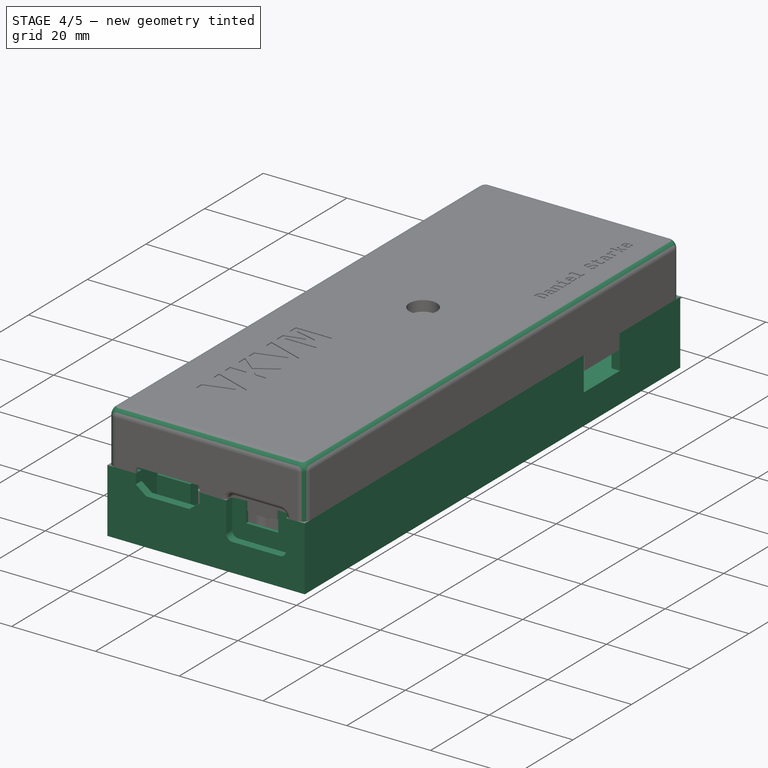
[diagram: stage 4 of 5 — iso view after this stage's code; geometry added in this stage tinted green]
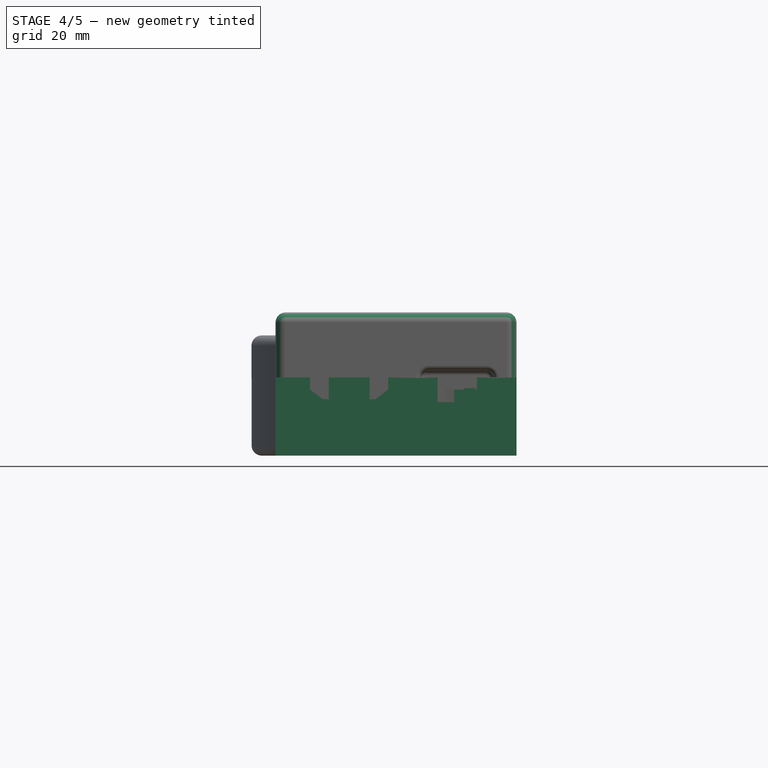
[diagram: stage 4 of 5 — front view after this stage's code; geometry added in this stage tinted green]
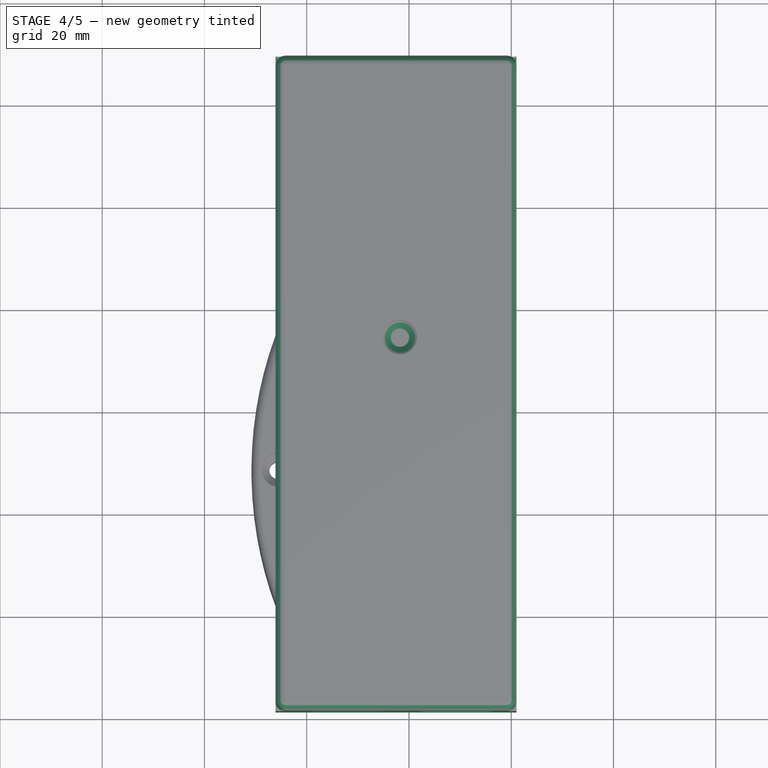
[diagram: stage 4 of 5 — top view after this stage's code; geometry added in this stage tinted green]
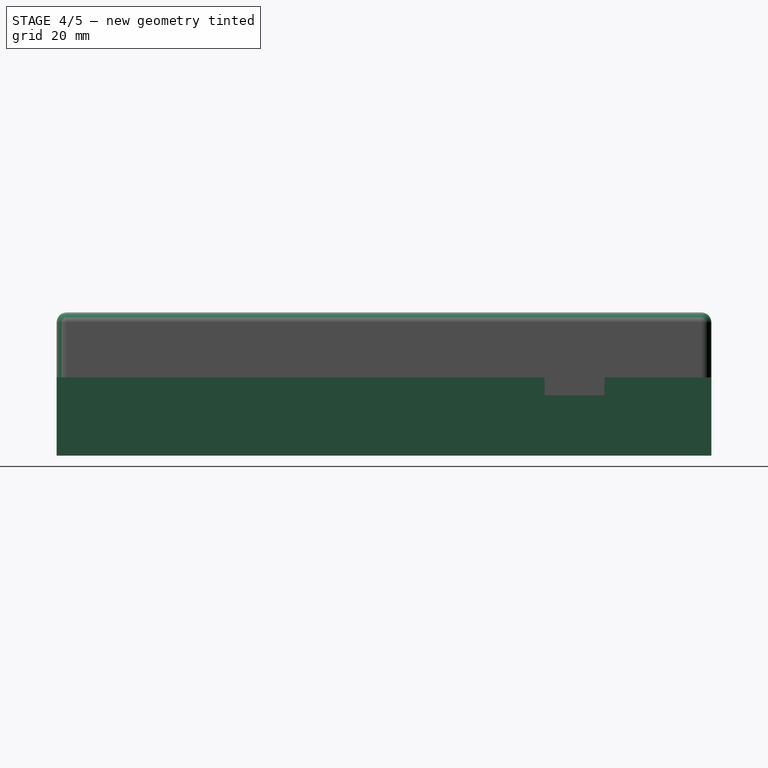
[diagram: stage 4 of 5 — right view after this stage's code; geometry added in this stage tinted green]
FEATURE [PartDesign::Body] Body004  label="UsbHid"
  Group = -> [Sketch010,Pad009,Sketch011,Pad010,Sketch012,Pad011]
  Origin = -> Origin004
  Placement = pos=(20.48,-75.76,2.245) rot=(0,0,1;0rad)
  Tip = -> Pad011
  expr: .Placement.Base.x = <<Ser>>.Placement.Base.x + <<Params>>.SER_W / 2 - <<Params>>.USB_HID_W / 2
  expr: .Placement.Base.y = <<Ser>>.Placement.Base.y - <<Params>>.PIN_HEAD_W
  expr: .Placement.Base.z = <<UsbSer>>.Placement.Base.z - <<Params>>.USB_SER_D + <<Params>>.USB_HID_D
FEATURE [Sketcher::SketchObject] Sketch015  label="CaseASketch1"
  FullyConstrained = true
  MapMode = 5
  Support = -> [XY_Plane006]
  expr: .Constraints.HEIGHT = <<Params>>.USB_HUB_H + <<Params>>.HDMI_CAP_H + <<Params>>.USB_GAP + 2 * <<Params>>.SPACE_XY + 2 * <<Params>>.WALL + 2 * <<Params>>.GAP_XY
  expr: .Constraints.OFFSET_LEFT_X = <<Params>>.HDMI_CAP_W / 2 - (Sketch001.Constraints.USB_B_X + <<Params>>.USB_B_W / 2) + Spreadsheet.SPACE_XY + <<Params>>.WALL + <<Params>>.GAP_XY
  expr: .Constraints.OFFSET_LEFT_Y = <<Params>>.USB_HUB_H + <<Params>>.GAP_XY + Spreadsheet.SPACE_XY + <<Params>>.WALL
  expr: .Constraints.WIDTH = .Constraints.OFFSET_LEFT_X + Sketch001.Constraints.USB_B_X + <<Params>>.USB_B_W * 1.5 + Sketch001.Constraints.USB_GAP_X + <<Params>>.USB_HID_W / 2 + <<Params>>.PIN_HEAD_W / 2 + Spreadsheet.SPACE_XY + <<Params>>.WALL + <<Params>>.GAP_XY
  sketch-geometry (4):
    g0: LineSegment StartX=-6.1 StartY=49.39 StartZ=0 EndX=41.03 EndY=49.39 EndZ=0
    g1: LineSegment StartX=41.03 StartY=49.39 StartZ=0 EndX=41.03 EndY=-78.65 EndZ=0
    g2: LineSegment StartX=41.03 StartY=-78.65 StartZ=0 EndX=-6.1 EndY=-78.65 EndZ=0
    g3: LineSegment StartX=-6.1 StartY=-78.65 StartZ=0 EndX=-6.1 EndY=49.39 EndZ=0
  constraints (12):
    c: Coincident(g0,g1)
    c: Coincident(g1,g2)
    c: Coincident(g2,g3)
    c: Coincident(g3,g0)
    c: Horizontal(g0)
    c: Horizontal(g2)
    c: Vertical(g1)
    c: Vertical(g3)
    c: DistanceY(g3,g3) = 128.04  'HEIGHT'
    c: DistanceX(g0,g0) = 47.13  'WIDTH'
    c: DistanceX(g0,g-1) = 6.1  'OFFSET_LEFT_X'
    c: DistanceY(g-1,g0) = 49.39  'OFFSET_LEFT_Y'
FEATURE [PartDesign::Pad] Pad014  label="CaseAPad1"
  AllowMultiFace = false
  Direction = (0,0,1)
  Length = 15.29
  Length2 = 100
  Profile = -> Sketch015
  Type = 0
  expr: Length = <<Params>>.CASE_A_D
FEATURE [Sketcher::SketchObject] Sketch016  label="CaseASketch2"
  AttachmentOffset = pos=(0,0,15.29) rot=(0,0,1;0rad)
  FullyConstrained = true
  MapMode = 5
  Placement = pos=(0,0,15.29) rot=(0,0,1;0rad)
  Support = -> [XY_Plane006]
  expr: .AttachmentOffset.Base.z = <<Params>>.CASE_A_D
  expr: .Constraints.HDMI_H = <<Params>>.SPACE_XY + <<Params>>.GAP_XY + 2 mm
  expr: .Constraints.HDMI_X = <<HdmiCapture>>.Placement.Base.x + <<Params>>.HDMI_CAP_W / 2 - 4 mm
  expr: .Constraints.HEIGHT = <<CaseASketch1>>.Constraints.HEIGHT - 2 * <<Params>>.WALL
  expr: .Constraints.SER_GAP_H = -(<<UsbHid>>.Placement.Base.y + <<Params>>.USB_HID_H - <<UsbSer>>.Placement.Base.y)
  expr: .Constraints.SER_SEP_H = .Constraints.SER_GAP_H * 0.8 - 2 * <<Params>>.GAP_XY
  expr: .Constraints.SER_SEP_W = <<Params>>.PIN_HEAD_W * 5
  expr: .Constraints.SER_SEP_X = <<UsbHid>>.Placement.Base.x + <<Params>>.USB_HID_W / 2 - 5 * <<Params>>.PIN_HEAD_W / 2
  expr: .Constraints.SER_SEP_Y = -<<UsbHid>>.Placement.Base.y - <<Params>>.USB_HID_H - <<Params>>.GAP_XY - 0.1 * .Constraints.SER_GAP_H
  expr: .Constraints.TOP_HEIGHT = <<CaseASketch1>>.Constraints.OFFSET_LEFT_Y - <<Params>>.WALL
  expr: .Constraints.USB_HID_H2 = <<UsbHid>>.Placement.Base.y - <<HdmiCapture>>.Placement.Base.y + <<Params>>.SPACE_XY
  expr: .Constraints.USB_HID_X = <<UsbHid>>.Placement.Base.x + <<Params>>.USB_HID_W / 2
  expr: .Constraints.USB_HID_X2 = <<UsbHid>>.Placement.Base.x
  expr: .Constraints.USB_HID_Y = -<<UsbHid>>.Placement.Base.y - <<Params>>.USB_HID_H / 2
  expr: .Constraints.USB_HID_Y2 = -<<UsbHid>>.Placement.Base.y + <<Params>>.GAP_XY
  expr: .Constraints.USB_SER_X = <<UsbSer>>.Placement.Base.x + <<Params>>.USB_SER_W / 2
  expr: .Constraints.USB_SER_Y = -<<UsbSer>>.Placement.Base.y - <<Params>>.USB_SER_H / 4
  expr: .Constraints.WIDTH = <<CaseASketch1>>.Constraints.WIDTH - 2 * <<Params>>.WALL
  expr: Constraints[100] = <<UsbHubSketch3>>.Constraints.USB_A_Y - 2 * <<Params>>.WALL
  expr: Constraints[101] = <<Params>>.USB_A_H + 4 * <<Params>>.WALL
  expr: Constraints[107] = <<UsbSer>>.Placement.Base.x
  expr: Constraints[108] = <<UsbSer>>.Placement.Base.y
  expr: Constraints[12] = Spreadsheet.SPACE_XY
  expr: Constraints[13] = <<Params>>.WALL
  expr: Constraints[28] = <<Params>>.GAP_XY
  expr: Constraints[29] = <<CaseASketch1>>.Constraints.OFFSET_LEFT_X - <<Params>>.WALL - <<Params>>.GAP_XY
  expr: Constraints[31] = .Constraints.TOP_HEIGHT / 2 - 2 mm
  expr: Constraints[40] = <<Params>>.WALL
  expr: Constraints[41] = <<Params>>.USB_HUB_W + <<Params>>.GAP_XY
  expr: Constraints[8] = <<CaseASketch1>>.Constraints.OFFSET_LEFT_X - <<Params>>.WALL
  expr: Constraints[94] = Sketch001.Constraints.USB_B_X + <<Params>>.USB_B_W + <<Params>>.GAP_XY
  expr: Constraints[95] = Sketch001.Constraints.USB_GAP_X - <<Params>>.GAP_XY * 2
  sketch-geometry (38):
    g0: LineSegment StartX=-4.1 StartY=47.39 StartZ=0 EndX=39.03 EndY=47.39 EndZ=0
    g1: LineSegment StartX=39.03 StartY=47.39 StartZ=0 EndX=39.03 EndY=34.64 EndZ=0
    g2: LineSegment StartX=-4.1 StartY=-76.65 StartZ=0 EndX=-4.1 EndY=-2.5 EndZ=0
    g3: LineSegment StartX=-4.1 StartY=-0.5 StartZ=0 EndX=39.03 EndY=-0.5 EndZ=0
    g4: LineSegment StartX=39.03 StartY=-2.5 StartZ=0 EndX=21.46 EndY=-2.5 EndZ=0
    g5: LineSegment StartX=-4.1 StartY=-0.5 StartZ=0 EndX=-4.1 EndY=21.695 EndZ=0
    g6: LineSegment StartX=39.03 StartY=-2.5 StartZ=0 EndX=39.03 EndY=-75.91 EndZ=0
    g7: Circle CenterX=19.515 CenterY=23.695 CenterZ=0 NormalX=0 NormalY=0 NormalZ=1 AngleXU=0 Radius=5
    g8: LineSegment StartX=-4.1 StartY=25.695 StartZ=0 EndX=-0.15 EndY=25.695 EndZ=0
    g9: LineSegment StartX=-0.15 StartY=25.695 StartZ=0 EndX=-0.15 EndY=21.695 EndZ=0
    g10: LineSegment StartX=-0.15 StartY=21.695 StartZ=0 EndX=-4.1 EndY=21.695 EndZ=0
    g11: LineSegment StartX=-4.1 StartY=25.695 StartZ=0 EndX=-4.1 EndY=47.39 EndZ=0
    g12: LineSegment StartX=36.81 StartY=34.64 StartZ=0 EndX=39.03 EndY=34.64 EndZ=0
    g13: LineSegment StartX=39.03 StartY=32.64 StartZ=0 EndX=36.81 EndY=32.64 EndZ=0
    g14: LineSegment StartX=36.81 StartY=32.64 StartZ=0 EndX=36.81 EndY=34.64 EndZ=0
    g15: LineSegment StartX=36.81 StartY=12.64 StartZ=0 EndX=39.03 EndY=12.64 EndZ=0
    g16: LineSegment StartX=39.03 StartY=10.64 StartZ=0 EndX=36.81 EndY=10.64 EndZ=0
    g17: LineSegment StartX=36.81 StartY=10.64 StartZ=0 EndX=36.81 EndY=12.64 EndZ=0
    g18: LineSegment StartX=39.03 StartY=32.64 StartZ=0 EndX=39.03 EndY=12.64 EndZ=0
    g19: LineSegment StartX=39.03 StartY=10.64 StartZ=0 EndX=39.03 EndY=-0.5 EndZ=0
    g20: LineSegment StartX=23.08 StartY=-40.861 StartZ=0 EndX=35.78 EndY=-40.861 EndZ=0
    g21: LineSegment StartX=35.78 StartY=-40.861 StartZ=0 EndX=35.78 EndY=-42.249 EndZ=0
    g22: LineSegment StartX=35.78 StartY=-42.249 StartZ=0 EndX=23.08 EndY=-42.249 EndZ=0
    g23: LineSegment StartX=23.08 StartY=-42.249 StartZ=0 EndX=23.08 EndY=-40.861 EndZ=0
    g24: Circle CenterX=29.43 CenterY=-59.185 CenterZ=0 NormalX=0 NormalY=0 NormalZ=1 AngleXU=0 Radius=5
    g25: LineSegment StartX=4.3 StartY=-74 StartZ=0 EndX=12.3 EndY=-74 EndZ=0
    g26: LineSegment StartX=12.3 StartY=-74 StartZ=0 EndX=12.3 EndY=-76.65 EndZ=0
    g27: LineSegment StartX=4.3 StartY=-76.65 StartZ=0 EndX=4.3 EndY=-74 EndZ=0
    g28: LineSegment StartX=4.3 StartY=-76.65 StartZ=0 EndX=-4.1 EndY=-76.65 EndZ=0
    g29: LineSegment StartX=20.48 StartY=-75.91 StartZ=0 EndX=39.03 EndY=-75.91 EndZ=0
    g30: LineSegment StartX=20.48 StartY=-76.65 StartZ=0 EndX=20.48 EndY=-75.91 EndZ=0
    g31: LineSegment StartX=20.48 StartY=-76.65 StartZ=0 EndX=12.3 EndY=-76.65 EndZ=0
    g32: LineSegment StartX=21.46 StartY=-2.5 StartZ=0 EndX=21.46 EndY=-8.96 EndZ=0
    g33: LineSegment StartX=21.46 StartY=-8.96 StartZ=0 EndX=15 EndY=-8.96 EndZ=0
    g34: LineSegment StartX=15 StartY=-8.96 StartZ=0 EndX=15 EndY=-2.5 EndZ=0
    g35: LineSegment StartX=15 StartY=-2.5 StartZ=0 EndX=-4.1 EndY=-2.5 EndZ=0
    g36: Circle CenterX=28.16 CenterY=-33.125 CenterZ=0 NormalX=0 NormalY=0 NormalZ=1 AngleXU=0 Radius=3
    g37: LineSegment StartX=19.535 StartY=-40.5 StartZ=0 EndX=19.535 EndY=-42.61 EndZ=0
  constraints (110):
    c: Coincident(g0,g1)
    c: Coincident(g28,g2)
    c: Coincident(g11,g0)
    c: Horizontal(g0)
    c: Vertical(g1)
    c: Vertical(g2)
    c: DistanceX(g0,g0) = 43.13  'WIDTH'
    c: DistanceY(g2,g11) = 124.04  'HEIGHT'
    c: DistanceX(g0,g-1) = 4.1
    c: DistanceY(g-1,g0) = 47.39  'TOP_HEIGHT'
    c: Horizontal(g3)
    c: Horizontal(g4)
    c: DistanceY(g3,g-1) = 0.5
    c: DistanceY(g35,g3) = 2
    c: PointOnObject(g5,g3)
    c: Tangent(g2,g5)
    c: Tangent(g1,g6)
    c: Equal(g3,g0)
    c: Coincident(g2,g35)
    c: Coincident(g4,g6)
    c: Coincident(g19,g3)
    c: Radius(g7) = 5  'USB_HUB_R'
    c: Symmetric(g-1,g0,g7)
    c: Coincident(g8,g9)
    c: Coincident(g9,g10)
    c: Horizontal(g8)
    c: Horizontal(g10)
    c: Vertical(g9)
    c: DistanceX(g9,g-1) = 0.15
    c: DistanceX(g8,g8) = 3.95
    c: DistanceY(g9,g9) = 4
    c: DistanceY(g-1,g9) = 21.695
    c: PointOnObject(g11,g8)
    c: Tangent(g5,g11)
    c: Coincident(g5,g10)
    c: Coincident(g13,g14)
    c: Coincident(g14,g12)
    c: Horizontal(g12)
    c: Horizontal(g13)
    c: Vertical(g14)
    c: DistanceY(g14,g14) = 2
    c: DistanceX(g-1,g13) = 36.81
    c: Coincident(g16,g17)
    c: Coincident(g17,g15)
    c: Horizontal(g15)
    c: Horizontal(g16)
    c: Vertical(g17)
    c: Equal(g15,g12)
    c: Equal(g14,g17)
    c: Tangent(g1,g18)
    c: Tangent(g18,g19)
    c: Coincident(g15,g18)
    c: Coincident(g16,g19)
    c: Coincident(g13,g18)
    c: Coincident(g1,g12)
    c: Coincident(g20,g21)
    c: Coincident(g21,g22)
    c: Coincident(g22,g23)
    c: Coincident(g23,g20)
    c: Horizontal(g20)
    c: Horizontal(g22)
    c: Vertical(g21)
    c: Vertical(g23)
    c: DistanceY(g23,g23) = 1.388  'SER_SEP_H'
    c: DistanceX(g20,g20) = 12.7  'SER_SEP_W'
    c: DistanceX(g-1,g20) = 23.08  'SER_SEP_X'
    c: Radius(g24) = 5  'USB_HID_R'
    c: DistanceX(g-1,g24) = 29.43  'USB_HID_X'
    c: DistanceY(g24,g-1) = 59.185  'USB_HID_Y'
    c: Coincident(g25,g26)
    c: Coincident(g27,g25)
    c: Horizontal(g25)
    c: Vertical(g26)
    c: Vertical(g27)
    c: DistanceX(g25,g25) = 8  'HDMI_W'
    c: DistanceY(g26,g26) = 2.65  'HDMI_H'
    c: DistanceX(g-1,g27) = 4.3  'HDMI_X'
    c: Coincident(g27,g28)
    c: Coincident(g31,g26)
    c: Coincident(g30,g29)
    c: Horizontal(g29)
    c: Vertical(g30)
    c: DistanceX(g-1,g29) = 20.48  'USB_HID_X2'
    c: DistanceY(g29,g-1) = 75.91  'USB_HID_Y2'
    c: Coincident(g30,g31)
    c: Coincident(g6,g29)
    c: DistanceY(g30,g30) = 0.74  'USB_HID_H2'
    c: Horizontal(g31)
    c: Horizontal(g28)
    c: Coincident(g32,g33)
    c: Coincident(g33,g34)
    c: Horizontal(g33)
    c: Vertical(g32)
    c: Vertical(g34)
    c: DistanceX(g-1,g34) = 15
    c: DistanceX(g34,g32) = 6.46
    c: Equal(g32,g33)
    c: Tangent(g4,g35)
    c: Coincident(g34,g35)
    c: Coincident(g4,g32)
    c: DistanceY(g-1,g15) = 12.64
    c: DistanceY(g15,g13) = 20
    c: DistanceX(g-1,g36) = 28.16  'USB_SER_X'
    c: DistanceY(g36,g-1) = 33.125  'USB_SER_Y'
    c: Radius(g36) = 3  'USB_SER_R'
    c: Vertical(g37)
    c: DistanceY(g37,g37) = 2.11  'SER_GAP_H'
    c: DistanceX(g37) = 19.535
    c: DistanceY(g37) = -40.5
    c: DistanceY(g22,g-1) = 42.249  'SER_SEP_Y'
FEATURE [PartDesign::Pocket] Pocket001  label="CaseAPocket1"
  AllowMultiFace = false
  BaseFeature = -> Pad014
  Direction = (0,0,-1)
  Length = 13.29
  Length2 = 100
  Profile = -> Sketch016
  Type = 0
  expr: Length = <<Params>>.CASE_A_D - <<Params>>.WALL
FEATURE [Sketcher::SketchObject] Sketch017  label="CaseASketch3"
  AttachmentOffset = pos=(0,0,15.29) rot=(0,0,1;0rad)
  FullyConstrained = true
  MapMode = 5
  Placement = pos=(0,0,15.29) rot=(0,0,1;0rad)
  Support = -> [XY_Plane006]
  expr: .AttachmentOffset.Base.z = <<Params>>.CASE_A_D
  expr: Constraints[10] = <<Params>>.USB_HUB_H + Spreadsheet.SPACE_XY + <<Params>>.GAP_XY
  expr: Constraints[11] = Sketch001.Constraints.USB_B_X - <<Params>>.GAP_XY
  expr: Constraints[22] = Sketch001.Constraints.USB_GAP_X - 2 * <<Params>>.GAP_XY
  expr: Constraints[35] = Spreadsheet.SPACE_XY
  expr: Constraints[48] = <<UsbHubSketch2>>.Constraints.USB_B_X + <<Params>>.USB_B_W
  expr: Constraints[50] = <<Params>>.USB_B_H - <<UsbHubSketch2>>.Constraints.USB_B_Y - <<Params>>.USB_B_WING_H / 2
  expr: Constraints[54] = <<UsbHubSketch2>>.Constraints.USB_GAP_X
  expr: Constraints[57] = <<Params>>.USB_B_WING_W + <<Params>>.USB_B_WING_H / 2
  expr: Constraints[8] = <<Params>>.USB_B_W + 2 * <<Params>>.GAP_XY
  expr: Constraints[9] = <<Params>>.WALL
  sketch-geometry (28):
    g0: LineSegment StartX=1.6 StartY=49.39 StartZ=0 EndX=15 EndY=49.39 EndZ=0
    g1: LineSegment StartX=15 StartY=49.39 StartZ=0 EndX=15 EndY=47.39 EndZ=0
    g2: LineSegment StartX=15 StartY=47.39 StartZ=0 EndX=1.6 EndY=47.39 EndZ=0
    g3: LineSegment StartX=1.6 StartY=47.39 StartZ=0 EndX=1.6 EndY=49.39 EndZ=0
    g4: LineSegment StartX=21.46 StartY=49.39 StartZ=0 EndX=34.86 EndY=49.39 EndZ=0
    g5: LineSegment StartX=34.86 StartY=49.39 StartZ=0 EndX=34.86 EndY=47.39 EndZ=0
    g6: LineSegment StartX=34.86 StartY=47.39 StartZ=0 EndX=21.46 EndY=47.39 EndZ=0
    g7: LineSegment StartX=21.46 StartY=47.39 StartZ=0 EndX=21.46 EndY=49.39 EndZ=0
    g8: LineSegment StartX=1.6 StartY=-0.5 StartZ=0 EndX=15 EndY=-0.5 EndZ=0
    g9: LineSegment StartX=15 StartY=-0.5 StartZ=0 EndX=15 EndY=-2.5 EndZ=0
    g10: LineSegment StartX=15 StartY=-2.5 StartZ=0 EndX=1.6 EndY=-2.5 EndZ=0
    g11: LineSegment StartX=1.6 StartY=-2.5 StartZ=0 EndX=1.6 EndY=-0.5 EndZ=0
    g12: LineSegment StartX=21.46 StartY=-0.5 StartZ=0 EndX=34.86 EndY=-0.5 EndZ=0
    g13: LineSegment StartX=34.86 StartY=-0.5 StartZ=0 EndX=34.86 EndY=-2.5 EndZ=0
    g14: LineSegment StartX=34.86 StartY=-2.5 StartZ=0 EndX=21.46 EndY=-2.5 EndZ=0
    g15: LineSegment StartX=21.46 StartY=-2.5 StartZ=0 EndX=21.46 EndY=-0.5 EndZ=0
    g16: LineSegment StartX=14.85 StartY=-2.5 StartZ=0 EndX=14.85 EndY=-4.42 EndZ=0
    g17: LineSegment StartX=21.61 StartY=-2.5 StartZ=0 EndX=21.61 EndY=-4.42 EndZ=0
    g18: LineSegment StartX=14.85 StartY=-4.42 StartZ=0 EndX=15.65 EndY=-4.42 EndZ=0
    g19: LineSegment StartX=20.81 StartY=-4.42 StartZ=0 EndX=21.61 EndY=-4.42 EndZ=0
    g20: ArcOfParabola CenterX=15.65 CenterY=-4.42 CenterZ=0 NormalX=0 NormalY=0 NormalZ=1 Focal=0.8 AngleXU=-3.14159 StartAngle=-1.6 EndAngle=1.6
    g21: GeomPoint X=14.85 Y=-4.42 Z=0
    g22: LineSegment StartX=15.65 StartY=-4.42 StartZ=0 EndX=14.85 EndY=-4.42 EndZ=0
    g23: LineSegment StartX=14.85 StartY=-6.02 StartZ=0 EndX=14.85 EndY=-2.82 EndZ=0
    g24: ArcOfParabola CenterX=20.81 CenterY=-4.42 CenterZ=0 NormalX=0 NormalY=0 NormalZ=1 Focal=0.8 AngleXU=0 StartAngle=-1.6 EndAngle=1.6
    g25: GeomPoint X=21.61 Y=-4.42 Z=0
    g26: LineSegment StartX=20.81 StartY=-4.42 StartZ=0 EndX=21.61 EndY=-4.42 EndZ=0
    g27: LineSegment StartX=21.61 StartY=-2.82 StartZ=0 EndX=21.61 EndY=-6.02 EndZ=0
  constraints (77):
    c: Coincident(g0,g1)
    c: Coincident(g1,g2)
    c: Coincident(g2,g3)
    c: Coincident(g3,g0)
    c: Horizontal(g0)
    c: Horizontal(g2)
    c: Vertical(g1)
    c: Vertical(g3)
    c: DistanceX(g0,g0) = 13.4
    c: DistanceY(g1,g1) = 2
    c: DistanceY(g-1,g2) = 47.39
    c: DistanceX(g-1,g2) = 1.6
    c: Coincident(g4,g5)
    c: Coincident(g5,g6)
    c: Coincident(g6,g7)
    c: Coincident(g7,g4)
    c: Horizontal(g4)
    c: Horizontal(g6)
    c: Vertical(g5)
    c: Vertical(g7)
    c: Equal(g4,g0)
    c: Equal(g7,g3)
    c: DistanceX(g0,g4) = 6.46
    c: Horizontal(g4,g0)
    c: Coincident(g8,g9)
    c: Coincident(g9,g10)
    c: Coincident(g10,g11)
    c: Coincident(g11,g8)
    c: Horizontal(g8)
    c: Horizontal(g10)
    c: Vertical(g9)
    c: Vertical(g11)
    c: Equal(g8,g0)
    c: Equal(g11,g3)
    c: Vertical(g8,g2)
    c: DistanceY(g8,g-1) = 0.5
    c: Coincident(g12,g13)
    c: Coincident(g13,g14)
    c: Coincident(g14,g15)
    c: Coincident(g15,g12)
    c: Horizontal(g12)
    c: Horizontal(g14)
    c: Vertical(g13)
    c: Vertical(g15)
    c: Horizontal(g12,g8)
    c: Equal(g15,g3)
    c: Equal(g12,g0)
    c: Vertical(g12,g6)
    c: DistanceX(g-1,g16) = 14.85
    c: Perpendicular(g16,g10) = 4.71239
    c: DistanceY(g16,g-1) = 4.42
    c: Horizontal(g17,g16)
    c: Vertical(g17)
    c: Horizontal(g17,g16)
    c: DistanceX(g16,g17) = 6.76
    c: Horizontal(g18)
    c: Coincident(g18,g16)
    c: DistanceX(g18,g18) = 0.8
    c: Horizontal(g19)
    c: Coincident(g19,g17)
    c: Equal(g19,g18)
    c: InternalAlignment(g21,g20)
    c: InternalAlignment(g22,g20)
    c: Coincident(g21,g16)
    c: Coincident(g20,g18)
    c: PointOnObject(g20,g16)
    c: Vertical(g20,g20)
    c: Coincident(g23,g20)
    c: Coincident(g20,g23)
    c: InternalAlignment(g25,g24)
    c: InternalAlignment(g26,g24)
    c: Coincident(g25,g17)
    c: Coincident(g24,g19)
    c: PointOnObject(g24,g17)
    c: Vertical(g24,g24)
    c: Coincident(g27,g24)
    c: Coincident(g27,g24)
FEATURE [PartDesign::Pocket] Pocket002  label="CaseAPocket2"
  AllowMultiFace = false
  BaseFeature = -> Pocket001
  Direction = (0,0,-1)
  Length = 7.09
  Length2 = 100
  Profile = -> Sketch017
  Type = 0
  expr: Length = <<Params>>.USB_B_D + 2 * <<Params>>.GAP_Z
FEATURE [Sketcher::SketchObject] Sketch018  label="CaseASketch4"
  AttachmentOffset = pos=(0,0,15.29) rot=(0,0,1;0rad)
  FullyConstrained = true
  MapMode = 5
  Placement = pos=(0,0,15.29) rot=(0,0,1;0rad)
  Support = -> [XY_Plane006]
  expr: .AttachmentOffset.Base.z = <<Params>>.CASE_A_D
  expr: Constraints[10] = <<UsbHubSketch3>>.Constraints.USB_A_Y - <<Params>>.GAP_XY
  expr: Constraints[11] = <<CaseASketch1>>.Constraints.WIDTH - <<CaseASketch1>>.Constraints.OFFSET_LEFT_X - <<Params>>.WALL
  expr: Constraints[8] = <<Params>>.WALL
  expr: Constraints[9] = <<Params>>.USB_A_H + 2 * <<Params>>.GAP_XY
  sketch-geometry (4):
    g0: LineSegment StartX=39.03 StartY=28.79 StartZ=0 EndX=41.03 EndY=28.79 EndZ=0
    g1: LineSegment StartX=41.03 StartY=28.79 StartZ=0 EndX=41.03 EndY=16.49 EndZ=0
    g2: LineSegment StartX=41.03 StartY=16.49 StartZ=0 EndX=39.03 EndY=16.49 EndZ=0
    g3: LineSegment StartX=39.03 StartY=16.49 StartZ=0 EndX=39.03 EndY=28.79 EndZ=0
  constraints (12):
    c: Coincident(g0,g1)
    c: Coincident(g1,g2)
    c: Coincident(g2,g3)
    c: Coincident(g3,g0)
    c: Horizontal(g0)
    c: Horizontal(g2)
    c: Vertical(g1)
    c: Vertical(g3)
    c: DistanceX(g0,g0) = 2
    c: DistanceY(g3,g3) = 12.3
    c: DistanceY(g-1,g2) = 16.49
    c: DistanceX(g-1,g2) = 39.03
FEATURE [PartDesign::Pocket] Pocket003  label="CaseAPocket3"
  AllowMultiFace = false
  BaseFeature = -> Pocket002
  Direction = (0,0,-1)
  Length = 8.09
  Length2 = 100
  Profile = -> Sketch018
  Type = 0
  expr: Length = <<Params>>.USB_B_D - <<Params>>.USB_A_O + 2 * <<Params>>.GAP_Z
FEATURE [Sketcher::SketchObject] Sketch019  label="CaseASketch5"
  AttachmentOffset = pos=(0,0,15.29) rot=(0,0,1;0rad)
  FullyConstrained = true
  MapMode = 5
  Placement = pos=(0,0,15.29) rot=(0,0,1;0rad)
  Support = -> [XY_Plane006]
  expr: .AttachmentOffset.Base.z = <<Params>>.CASE_A_D
  expr: .Constraints.USB_H = <<Params>>.WALL + Sketch016.Constraints.USB_HID_H2
  expr: .Constraints.USB_W = <<Params>>.USB_M_W + 2 * <<Params>>.GAP_XY
  expr: .Constraints.USB_X = Sketch001.Constraints.USB_B_X + <<Params>>.USB_B_W * 1.5 + Sketch001.Constraints.USB_GAP_X - <<Params>>.USB_SER_W / 2 + <<UsbSerSketch3>>.Constraints.PIN_X - (<<Params>>.USB_HID_W - <<Params>>.PIN_HEAD_W * 7) / 2 + <<Params>>.USB_HID_W / 2 - <<Params>>.USB_M_W / 2 - <<Params>>.GAP_XY
  expr: .Constraints.USB_Y = Sketch016.Constraints.USB_HID_Y2
  sketch-geometry (4):
    g0: LineSegment StartX=25.58 StartY=-75.91 StartZ=0 EndX=33.28 EndY=-75.91 EndZ=0
    g1: LineSegment StartX=33.28 StartY=-75.91 StartZ=0 EndX=33.28 EndY=-78.65 EndZ=0
    g2: LineSegment StartX=33.28 StartY=-78.65 StartZ=0 EndX=25.58 EndY=-78.65 EndZ=0
    g3: LineSegment StartX=25.58 StartY=-78.65 StartZ=0 EndX=25.58 EndY=-75.91 EndZ=0
  constraints (12):
    c: Coincident(g0,g1)
    c: Coincident(g1,g2)
    c: Coincident(g2,g3)
    c: Coincident(g3,g0)
    c: Horizontal(g0)
    c: Horizontal(g2)
    c: Vertical(g1)
    c: Vertical(g3)
    c: DistanceX(g0,g0) = 7.7  'USB_W'
    c: DistanceY(g1,g1) = 2.74  'USB_H'
    c: DistanceX(g-1,g0) = 25.58  'USB_X'
    c: DistanceY(g0,g-1) = 75.91  'USB_Y'
FEATURE [PartDesign::Pocket] Pocket004  label="CaseAPocket4"
  AllowMultiFace = false
  BaseFeature = -> Pocket003
  Direction = (0,0,-1)
  Length = 4.845
  Length2 = 100
  Profile = -> Sketch019
  Type = 0
  expr: Length = <<Params>>.USB_B_D + <<UsbHub>>.Placement.Base.z - <<UsbHid>>.Placement.Base.z + 2 * <<Params>>.GAP_Z
FEATURE [Sketcher::SketchObject] Sketch020  label="CaseASketch6"
  AttachmentOffset = pos=(0,0,78.65) rot=(0,0,1;0rad)
  FullyConstrained = true
  MapMode = 5
  Placement = pos=(0,-78.65,-1.75e-14) rot=(1,0,0;1.5708rad)
  Support = -> [XZ_Plane006]
  expr: .AttachmentOffset.Base.z = <<CaseASketch1>>.Constraints.HEIGHT - <<CaseASketch1>>.Constraints.OFFSET_LEFT_Y
  expr: .Constraints.USB_H = <<Params>>.USB_M_H * 2
  expr: .Constraints.USB_W = <<Params>>.USB_HID_W * 0.8
  expr: Constraints[10] = <<HdmiCapture>>.Placement.Base.x + <<HdmiCaptureSketch4>>.Constraints.HDMI_X - <<Params>>.GAP_XY
  expr: Constraints[11] = <<HdmiCaptureSketch4>>.Constraints.HDMI_W + 2 * <<Params>>.GAP_XY
  expr: Constraints[14] = <<HdmiCaptureSketch4>>.Constraints.HDMI_INNER_W + 2 * <<Params>>.GAP_XY
  expr: Constraints[15] = -<<Params>>.CASE_A_Z - <<UsbHub>>.Placement.Base.z + <<HdmiCapture>>.Placement.Base.z + <<Params>>.HDMI_CAP_D + <<HdmiCaptureSketch4>>.Constraints.HDMI_Y - <<Params>>.GAP_Z
  expr: Constraints[16] = <<Params>>.HDMI_D - <<HdmiCaptureSketch4>>.Constraints.HDMI_Y + 2 * <<Params>>.GAP_Z
  expr: Constraints[17] = <<HdmiCaptureSketch4>>.Constraints.HDMI_H - <<HdmiCaptureSketch4>>.Constraints.HDMI_Y
  expr: Constraints[18] = <<UsbHid>>.Placement.Base.x + <<Params>>.USB_HID_W / 2
  expr: Constraints[19] = -<<Params>>.CASE_A_Z - <<UsbHub>>.Placement.Base.z + <<UsbHid>>.Placement.Base.z + <<Params>>.USB_HID_D + <<Params>>.USB_M_D / 2
  expr: Constraints[37] = .Constraints.USB_H / 2
  expr: Constraints[38] = .Constraints.USB_W / 2
  sketch-geometry (15):
    g0: LineSegment StartX=0.65 StartY=16.725 StartZ=0 EndX=0.65 EndY=12.925 EndZ=0
    g1: LineSegment StartX=0.65 StartY=12.925 StartZ=0 EndX=3.15 EndY=11.025 EndZ=0
    g2: LineSegment StartX=3.15 StartY=11.025 StartZ=0 EndX=13.45 EndY=11.025 EndZ=0
    g3: LineSegment StartX=13.45 StartY=11.025 StartZ=0 EndX=15.95 EndY=12.925 EndZ=0
    g4: LineSegment StartX=15.95 StartY=12.925 StartZ=0 EndX=15.95 EndY=16.725 EndZ=0
    g5: LineSegment StartX=15.95 StartY=16.725 StartZ=0 EndX=0.65 EndY=16.725 EndZ=0
    g6: GeomPoint X=29.43 Y=11.67 Z=0
    g7: LineSegment StartX=23.77 StartY=16.67 StartZ=0 EndX=35.09 EndY=16.67 EndZ=0
    g8: LineSegment StartX=36.59 StartY=15.17 StartZ=0 EndX=36.59 EndY=8.17 EndZ=0
    g9: LineSegment StartX=35.09 StartY=6.67 StartZ=0 EndX=23.77 EndY=6.67 EndZ=0
    g10: LineSegment StartX=22.27 StartY=8.17 StartZ=0 EndX=22.27 EndY=15.17 EndZ=0
    g11: ArcOfCircle CenterX=23.77 CenterY=15.17 CenterZ=0 NormalX=0 NormalY=0 NormalZ=1 AngleXU=0 Radius=1.5 StartAngle=1.5708 EndAngle=3.14159
    g12: ArcOfCircle CenterX=23.77 CenterY=8.17 CenterZ=0 NormalX=0 NormalY=0 NormalZ=1 AngleXU=0 Radius=1.5 StartAngle=3.14159 EndAngle=4.71239
    g13: ArcOfCircle CenterX=35.09 CenterY=8.17 CenterZ=0 NormalX=0 NormalY=0 NormalZ=1 AngleXU=0 Radius=1.5 StartAngle=4.71239 EndAngle=6.28319
    g14: ArcOfCircle CenterX=35.09 CenterY=15.17 CenterZ=0 NormalX=0 NormalY=0 NormalZ=1 AngleXU=0 Radius=1.5 StartAngle=0 EndAngle=1.5708
  constraints (40):
    c: Coincident(g0,g1)
    c: Coincident(g1,g2)
    c: Coincident(g2,g3)
    c: Coincident(g3,g4)
    c: Coincident(g4,g5)
    c: Coincident(g5,g0)
    c: Vertical(g0)
    c: Vertical(g4)
    c: Horizontal(g2)
    c: Horizontal(g5)
    c: DistanceX(g-1,g0) = 0.65
    c: DistanceX(g5,g5) = 15.3
    c: Equal(g1,g3)
    c: Horizontal(g0,g3)
    c: DistanceX(g2,g2) = 10.3
    c: DistanceY(g-1,g1) = 11.025
    c: DistanceY(g2,g4) = 5.7
    c: DistanceY(g2,g3) = 1.9
    c: DistanceX(g-1,g6) = 29.43
    c: DistanceY(g-1,g6) = 11.67
    c: Horizontal(g7)
    c: Horizontal(g9)
    c: Vertical(g8)
    c: Vertical(g10)
    c: Tangent(g7,g11) = 1.5708
    c: Tangent(g10,g11) = 1.5708
    c: Tangent(g10,g12) = 1.5708
    c: Tangent(g9,g12) = 1.5708
    c: Tangent(g9,g13) = 1.5708
    c: Tangent(g8,g13) = 1.5708
    c: Tangent(g8,g14) = 1.5708
    c: Tangent(g7,g14) = 1.5708
    c: Equal(g14,g11)
    c: Equal(g12,g11)
    c: Equal(g13,g11)
    c: DistanceX(g10,g8) = 14.32  'USB_W'
    c: DistanceY(g9,g7) = 10  'USB_H'
    c: DistanceY(g6,g7) = 5
    c: DistanceX(g6,g8) = 7.16
    c: Radius(g11) = 1.5  'USB_R'
FEATURE [PartDesign::Pocket] Pocket005  label="CaseAPocket5"
  AllowMultiFace = false
  BaseFeature = -> Pocket004
  Direction = (0,1,2e-16)
  Length = 2
  Length2 = 100
  Profile = -> Sketch020
  Type = 0
  expr: Length = <<Params>>.WALL
FEATURE [Sketcher::SketchObject] Sketch022  label="CaseASketch7"
  AttachmentOffset = pos=(0,0,15.29) rot=(0,0,1;0rad)
  FullyConstrained = true
  MapMode = 5
  Placement = pos=(0,0,15.29) rot=(0,0,1;0rad)
  Support = -> [XY_Plane006]
  expr: .AttachmentOffset.Base.z = <<Params>>.CASE_A_D
  expr: Constraints[10] = <<Params>>.USB_HUB_H
  expr: Constraints[9] = <<Params>>.USB_HUB_W
  sketch-geometry (4):
    g0: LineSegment StartX=0 StartY=46.74 StartZ=0 EndX=36.66 EndY=46.74 EndZ=0
    g1: LineSegment StartX=36.66 StartY=46.74 StartZ=0 EndX=36.66 EndY=0 EndZ=0
    g2: LineSegment StartX=36.66 StartY=0 StartZ=0 EndX=0 EndY=0 EndZ=0
    g3: LineSegment StartX=0 StartY=0 StartZ=0 EndX=0 EndY=46.74 EndZ=0
  constraints (11):
    c: Coincident(g0,g1)
    c: Coincident(g1,g2)
    c: Coincident(g2,g3)
    c: Coincident(g3,g0)
    c: Horizontal(g0)
    c: Horizontal(g2)
    c: Vertical(g1)
    c: Vertical(g3)
    c: Coincident(g2,g-1)
    c: DistanceX(g0,g0) = 36.66
    c: DistanceY(g3,g3) = 46.74
FEATURE [PartDesign::Pocket] Pocket007  label="CaseAPocket6"
  AllowMultiFace = false
  BaseFeature = -> Pocket005
  Direction = (0,0,-1)
  Length = 8.64
  Length2 = 100
  Profile = -> Sketch022
  Type = 0
  expr: Length = <<Params>>.USB_HUB_D + <<Params>>.USB_B_D + <<Params>>.GAP_Z
FEATURE [Sketcher::SketchObject] Sketch024  label="CaseASketch9"
  AttachmentOffset = pos=(0,0,15.29) rot=(0,0,1;0rad)
  FullyConstrained = true
  MapMode = 5
  Placement = pos=(0,0,15.29) rot=(0,0,1;0rad)
  Support = -> [XY_Plane006]
  expr: .AttachmentOffset.Base.z = <<Params>>.CASE_A_D
  expr: Constraints[10] = Sketch016.Constraints.SER_SEP_W
  expr: Constraints[11] = Sketch016.Constraints.SER_GAP_H
  expr: Constraints[8] = Sketch016.Constraints.SER_SEP_X
  expr: Constraints[9] = Sketch016.Constraints.SER_SEP_Y
  sketch-geometry (4):
    g0: LineSegment StartX=23.08 StartY=-42.249 StartZ=0 EndX=35.78 EndY=-42.249 EndZ=0
    g1: LineSegment StartX=35.78 StartY=-42.249 StartZ=0 EndX=35.78 EndY=-44.359 EndZ=0
    g2: LineSegment StartX=35.78 StartY=-44.359 StartZ=0 EndX=23.08 EndY=-44.359 EndZ=0
    g3: LineSegment StartX=23.08 StartY=-44.359 StartZ=0 EndX=23.08 EndY=-42.249 EndZ=0
  constraints (12):
    c: Coincident(g0,g1)
    c: Coincident(g1,g2)
    c: Coincident(g2,g3)
    c: Coincident(g3,g0)
    c: Horizontal(g0)
    c: Horizontal(g2)
    c: Vertical(g1)
    c: Vertical(g3)
    c: DistanceX(g-1,g0) = 23.08
    c: DistanceY(g0,g-1) = 42.249
    c: DistanceX(g0,g0) = 12.7
    c: DistanceY(g1,g1) = 2.11
FEATURE [PartDesign::Pocket] Pocket008  label="CaseAPocket7"
  AllowMultiFace = false
  BaseFeature = -> Pocket007
  Direction = (0,0,-1)
  Length = 2.9
  Length2 = 100
  Profile = -> Sketch024
  Type = 0
  expr: Length = <<Params>>.USB_HUB_D - <<UsbHid>>.Placement.Base.z + <<Params>>.USB_B_D / 2 + <<Params>>.GAP_Z
FEATURE [Sketcher::SketchObject] Sketch025  label="CaseASketch10"
  AttachmentOffset = pos=(0,0,15.29) rot=(0,0,1;0rad)
  FullyConstrained = true
  MapMode = 5
  Placement = pos=(0,0,15.29) rot=(0,0,1;0rad)
  Support = -> [XY_Plane006]
  expr: .AttachmentOffset.Base.z = <<Params>>.CASE_A_D
  expr: Constraints[0] = Sketch016.Constraints.USB_HID_R
  expr: Constraints[1] = Sketch016.Constraints.USB_HID_X
  expr: Constraints[2] = Sketch016.Constraints.USB_HID_Y
  sketch-geometry (1):
    g0: Circle CenterX=29.43 CenterY=-59.185 CenterZ=0 NormalX=0 NormalY=0 NormalZ=1 AngleXU=0 Radius=5
  constraints (3):
    c: Radius(g0) = 5
    c: DistanceX(g-1,g0) = 29.43
    c: DistanceY(g0,g-1) = 59.185
FEATURE [PartDesign::Pocket] Pocket009  label="CaseAPocket8"
  AllowMultiFace = false
  BaseFeature = -> Pocket008
  Direction = (0,0,-1)
  Length = 6.395
  Length2 = 100
  Profile = -> Sketch025
  Type = 0
  expr: Length = <<Params>>.USB_HUB_D - <<UsbHid>>.Placement.Base.z + <<Params>>.USB_B_D + <<Params>>.GAP_Z
FEATURE [Sketcher::SketchObject] Sketch047  label="CaseBSketch9"
  AttachmentOffset = pos=(0,0,25.5) rot=(0,0,1;0rad)
  FullyConstrained = true
  MapMode = 5
  Placement = pos=(0,0,25.5) rot=(0,0,1;0rad)
  Support = -> [XY_Plane007]
  expr: Constraints[0] = <<UsbHubSketch2>>.Constraints.USB_B_X + <<Params>>.USB_B_W + <<UsbHubSketch2>>.Constraints.USB_GAP_X / 2
  expr: Constraints[1] = <<Params>>.SPACE_XY + <<Params>>.WALL + <<UsbHubSketch2>>.Constraints.USB_GAP_X / 2 - <<Params>>.GAP_XY
  expr: Constraints[2] = 1.65 mm + <<Params>>.GAP_XY
  sketch-geometry (1):
    g0: Circle CenterX=18.23 CenterY=-5.73 CenterZ=0 NormalX=0 NormalY=0 NormalZ=1 AngleXU=0 Radius=1.8
  constraints (3):
    c: DistanceX(g-1,g0) = 18.23
    c: DistanceY(g0,g-1) = 5.73
    c: Radius(g0) = 1.8
FEATURE [PartDesign::Hole] Hole001  label="CaseBHole1"
  AllowMultiFace = false
  BaseFeature = -> Pocket022
  CustomThreadClearance = 0
  Depth = 25
  DepthType = 1
  Diameter = 3.6
  DrillForDepth = false
  DrillPoint = 1
  DrillPointAngle = 118
  HoleCutCountersinkAngle = 90
  HoleCutCustomValues = false
  HoleCutDepth = 0
  HoleCutDiameter = 6.6
  HoleCutType = 2
  ModelThread = false
  Profile = -> Sketch047
  Tapered = false
  TaperedAngle = 90
  ThreadClass = 0
  ThreadDepth = 23.5
  ThreadDepthType = 0
  ThreadDirection = 0
  ThreadFit = 0
  ThreadSize = 0
  ThreadType = 0
  Threaded = false
  UseCustomThreadClearance = false
  expr: Diameter = 3.3 mm + 2 * <<Params>>.GAP_XY
  expr: HoleCutDiameter = 6.3 mm + 2 * <<Params>>.GAP_XY
FEATURE [Part::Part2DObjectPython] ShapeString  label="CaseBLabel1"  # Draft 2D object (typed FeaturePython)
  FontFile = LiberationMono-Bold.ttf
  Placement = pos=(11.9,-61.75,28) rot=(0,0,1;1.5708rad)
  Size = 10
  String = VKVM
  Tracking = 1
  expr: .Placement.Base.x = <<CaseASketch1>>.Constraints.OFFSET_LEFT_X + <<Params>>.WALL + <<Params>>.SPACE_XY + <<HdmiCapture>>.Placement.Base.x + <<Params>>.HDMI_CAP_W / 2 - <<Params>>.LABEL_H / 2
  expr: .Placement.Base.y = <<HdmiCapture>>.Placement.Base.y + <<Params>>.WALL + <<Params>>.SPACE_XY + <<Params>>.HDMI_CAP_W / 2
  expr: .Placement.Base.z = <<Params>>.CASE_A_D + <<Params>>.CASE_B_D
  expr: Size = <<Params>>.LABEL_H
FEATURE [PartDesign::Pocket] Pocket023  label="CaseBPocket6"
  AllowMultiFace = false
  BaseFeature = -> Hole001
  Direction = (0,0,-1)
  Length = 0.2
  Length2 = 100
  Profile = -> ShapeString
  Type = 0
  expr: Length = <<Params>>.WALL * 0.1
FEATURE [Part::Part2DObjectPython] ShapeString001  label="CaseBLabel2"  # Draft 2D object (typed FeaturePython)
  FontFile = LiberationMono-Bold.ttf
  Placement = pos=(35.53,10.74,28) rot=(0,0,1;1.5708rad)
  Size = 3
  String = Daniel Starke
  Tracking = 0
  expr: .Placement.Base.x = <<CaseASketch1>>.Constraints.WIDTH - <<CaseASketch1>>.Constraints.OFFSET_LEFT_X - <<Params>>.WALL - <<Params>>.SPACE_XY - <<Params>>.CC_H
  expr: .Placement.Base.y = <<UsbHub>>.Placement.Base.y + <<Params>>.USB_HUB_H - 12 * <<Params>>.CC_H
  expr: .Placement.Base.z = <<Params>>.CASE_A_D + <<Params>>.CASE_B_D
  expr: Size = <<Params>>.CC_H
FEATURE [PartDesign::Pocket] Pocket024  label="CaseBPocket7"
  AllowMultiFace = false
  BaseFeature = -> Pocket023
  Direction = (0,0,-1)
  Length = 0.2
  Length2 = 100
  Profile = -> ShapeString001
  Refine = true
  Type = 0
  expr: Length = <<Params>>.WALL * 0.1
FEATURE [PartDesign::Chamfer] Chamfer  label="CaseBFilledStand"
  Angle = 45
  Base = -> Pocket024 [Edge1046,Edge1047,Edge1049]
  BaseFeature = -> Pocket024
  ChamferType = 0
  FlipDirection = false
  Size = 2
  Size2 = 1
  SupportTransform = false
  UseAllEdges = false
  expr: Size = <<Params>>.WALL
FEATURE [PartDesign::Fillet] Fillet004  label="CaseBFilledOut"
  Base = -> Chamfer [Edge225,Edge226,Edge228,Edge232,Edge227,Edge222,Edge221,Edge220]
  BaseFeature = -> Chamfer
  Radius = 1.99
  SupportTransform = false
  UseAllEdges = false
  expr: Radius = <<Params>>.FILLET_OUT
FEATURE [PartDesign::Fillet] Fillet005  label="CaseBFilletUsbM"
  Base = -> Fillet004 [Edge67,Edge68,Edge65,Edge164,Edge162,Edge158]
  BaseFeature = -> Fillet004
  Radius = 0.99
  SupportTransform = false
  UseAllEdges = false
  expr: Radius = <<Params>>.FILLET_USB_M
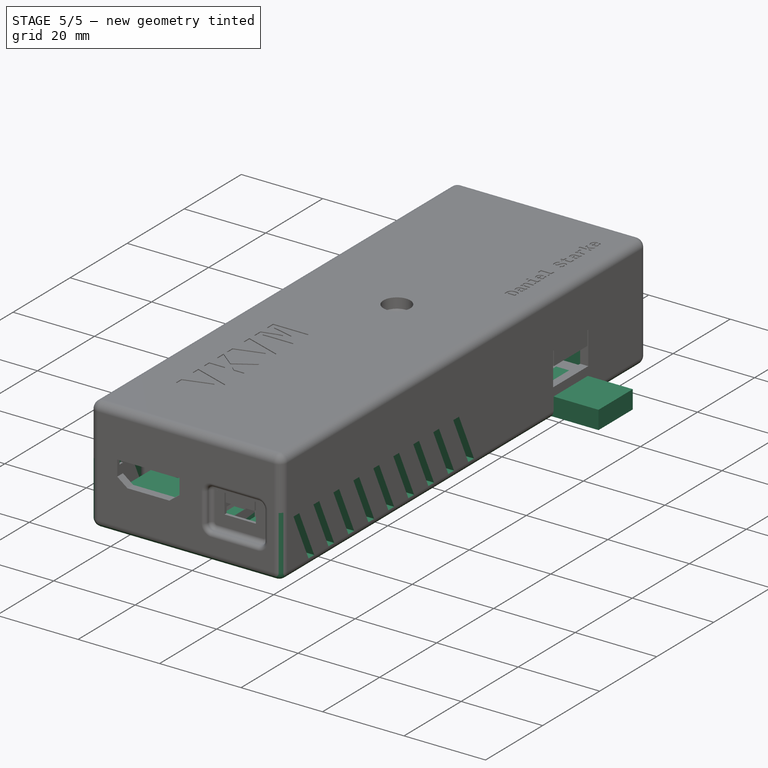
[diagram: stage 5 of 5 — iso view after this stage's code; geometry added in this stage tinted green]
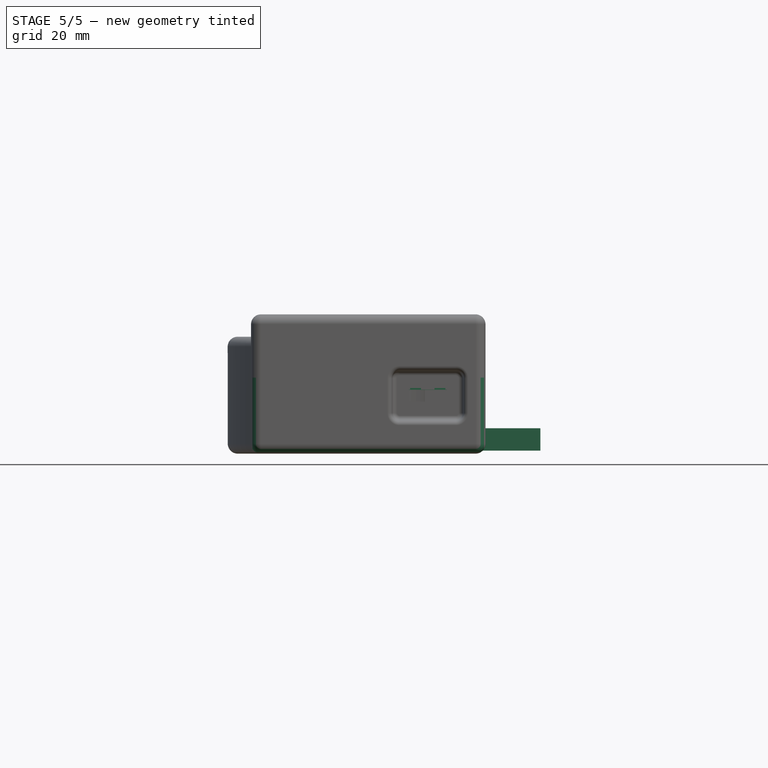
[diagram: stage 5 of 5 — front view after this stage's code; geometry added in this stage tinted green]
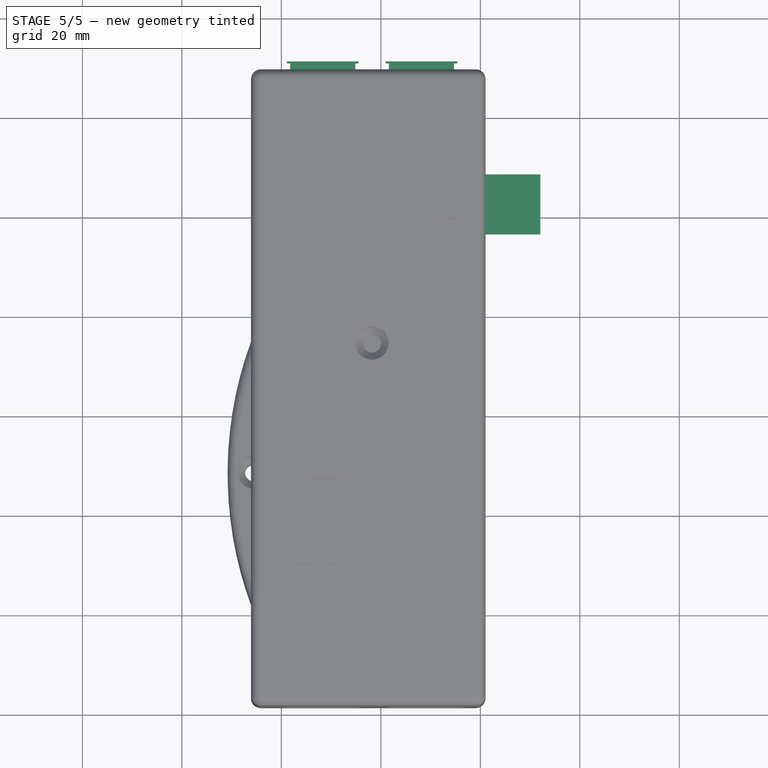
[diagram: stage 5 of 5 — top view after this stage's code; geometry added in this stage tinted green]
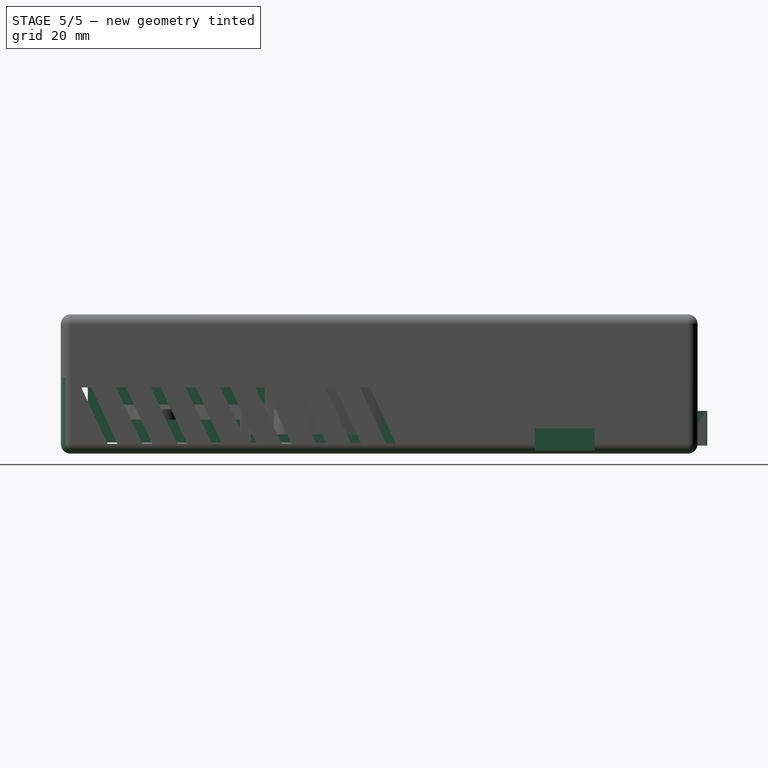
[diagram: stage 5 of 5 — right view after this stage's code; geometry added in this stage tinted green]
FEATURE [PartDesign::Body] Body  label="UsbHub"
  Group = -> [Sketch,Pad,Sketch001,Pad001,Sketch002,Pad002,Sketch021,Pocket006]
  Origin = -> Origin
  Tip = -> Pocket006
FEATURE [Part::Compound] Compound  label="Body"
  Links = -> [Body005,Body004,Body003,Body001,Body]
FEATURE [Sketcher::SketchObject] Sketch026  label="CaseASketch11"
  AttachmentOffset = pos=(0,0,15.29) rot=(0,0,1;0rad)
  FullyConstrained = true
  MapMode = 5
  Placement = pos=(0,0,15.29) rot=(0,0,1;0rad)
  Support = -> [XY_Plane006]
  expr: .AttachmentOffset.Base.z = <<Params>>.CASE_A_D
  expr: Constraints[10] = Sketch016.Constraints.HDMI_X
  expr: Constraints[11] = -<<HdmiCapture>>.Placement.Base.y + <<Params>>.SPACE_XY + <<Params>>.GAP_XY
  expr: Constraints[8] = Sketch016.Constraints.HDMI_W
  expr: Constraints[9] = Sketch016.Constraints.HDMI_H
  sketch-geometry (4):
    g0: LineSegment StartX=4.3 StartY=-74 StartZ=0 EndX=12.3 EndY=-74 EndZ=0
    g1: LineSegment StartX=12.3 StartY=-74 StartZ=0 EndX=12.3 EndY=-76.65 EndZ=0
    g2: LineSegment StartX=12.3 StartY=-76.65 StartZ=0 EndX=4.3 EndY=-76.65 EndZ=0
    g3: LineSegment StartX=4.3 StartY=-76.65 StartZ=0 EndX=4.3 EndY=-74 EndZ=0
  constraints (12):
    c: Coincident(g0,g1)
    c: Coincident(g1,g2)
    c: Coincident(g2,g3)
    c: Coincident(g3,g0)
    c: Horizontal(g0)
    c: Horizontal(g2)
    c: Vertical(g1)
    c: Vertical(g3)
    c: DistanceX(g0,g0) = 8
    c: DistanceY(g1,g1) = 2.65
    c: DistanceX(g-1,g0) = 4.3
    c: DistanceY(g2,g-1) = 76.65
FEATURE [PartDesign::Pocket] Pocket010  label="CaseAPocket9"
  AllowMultiFace = false
  BaseFeature = -> Pocket009
  Direction = (0,0,-1)
  Length = 5.695
  Length2 = 100
  Profile = -> Sketch026
  Type = 0
  expr: Length = <<Params>>.USB_HUB_D - <<HdmiCapture>>.Placement.Base.z + <<Params>>.USB_B_D + <<Params>>.GAP_Z
FEATURE [Sketcher::SketchObject] Sketch027  label="CaseASketch12"
  AttachmentOffset = pos=(0,0,15.29) rot=(0,0,1;0rad)
  FullyConstrained = true
  MapMode = 5
  Placement = pos=(0,0,15.29) rot=(0,0,1;0rad)
  Support = -> [XY_Plane006]
  expr: .AttachmentOffset.Base.z = <<Params>>.CASE_A_D
  expr: Constraints[0] = <<CaseASketch2>>.Constraints.USB_HUB_R - 1 mm
  expr: Constraints[10] = <<Params>>.SPACE_XY
  expr: Constraints[11] = <<CaseASketch2>>.Constraints.WIDTH
  expr: Constraints[12] = <<CaseASketch2>>.Constraints.TOP_HEIGHT
  expr: Constraints[9] = <<CaseASketch1>>.Constraints.OFFSET_LEFT_X - <<Params>>.WALL
  sketch-geometry (5):
    g0: Circle CenterX=19.515 CenterY=23.695 CenterZ=0 NormalX=0 NormalY=0 NormalZ=1 AngleXU=0 Radius=4
    g1: LineSegment StartX=-4.1 StartY=47.39 StartZ=0 EndX=39.03 EndY=47.39 EndZ=0
    g2: LineSegment StartX=39.03 StartY=47.39 StartZ=0 EndX=39.03 EndY=-0.5 EndZ=0
    g3: LineSegment StartX=39.03 StartY=-0.5 StartZ=0 EndX=-4.1 EndY=-0.5 EndZ=0
    g4: LineSegment StartX=-4.1 StartY=-0.5 StartZ=0 EndX=-4.1 EndY=47.39 EndZ=0
  constraints (14):
    c: Radius(g0) = 4
    c: Coincident(g1,g2)
    c: Coincident(g2,g3)
    c: Coincident(g3,g4)
    c: Coincident(g4,g1)
    c: Horizontal(g1)
    c: Horizontal(g3)
    c: Vertical(g2)
    c: Vertical(g4)
    c: DistanceX(g3,g-1) = 4.1
    c: DistanceY(g3,g-1) = 0.5
    c: DistanceX(g1,g1) = 43.13
    c: DistanceY(g-1,g1) = 47.39
    c: Symmetric(g-1,g1,g0)
FEATURE [PartDesign::Pocket] Pocket011  label="CaseAPocket10"
  AllowMultiFace = false
  BaseFeature = -> Pocket010
  Direction = (0,0,-1)
  Length = 13.29
  Length2 = 100
  Profile = -> Sketch027
  Type = 0
  expr: Length = <<Params>>.CASE_A_D - <<Params>>.WALL
FEATURE [Sketcher::SketchObject] Sketch028  label="CaseASketch13"
  AttachmentOffset = pos=(0,0,15.29) rot=(0,0,1;0rad)
  FullyConstrained = true
  MapMode = 5
  Placement = pos=(0,0,15.29) rot=(0,0,1;0rad)
  Support = -> [XY_Plane006]
  expr: .AttachmentOffset.Base.z = <<Params>>.CASE_A_D
  expr: Constraints[0] = Sketch016.Constraints.USB_HID_R - 1 mm
  expr: Constraints[1] = Sketch016.Constraints.USB_HID_X
  expr: Constraints[2] = Sketch016.Constraints.USB_HID_Y
  sketch-geometry (1):
    g0: Circle CenterX=29.43 CenterY=-59.185 CenterZ=0 NormalX=0 NormalY=0 NormalZ=1 AngleXU=0 Radius=4
  constraints (3):
    c: Radius(g0) = 4
    c: DistanceX(g-1,g0) = 29.43
    c: DistanceY(g0,g-1) = 59.185
FEATURE [PartDesign::Pocket] Pocket012  label="CaseAPocket11"
  AllowMultiFace = false
  BaseFeature = -> Pocket011
  Direction = (0,0,-1)
  Length = 13.29
  Length2 = 100
  Profile = -> Sketch028
  Type = 0
  expr: Length = <<Params>>.CASE_A_D - <<Params>>.WALL
FEATURE [Sketcher::SketchObject] Sketch031  label="CaseASketch14"
  AttachmentOffset = pos=(0,0,2) rot=(0,0,1;0rad)
  FullyConstrained = true
  MapMode = 5
  Placement = pos=(0,0,2) rot=(0,0,1;0rad)
  Support = -> [XY_Plane006]
  expr: .AttachmentOffset.Base.z = <<Params>>.WALL
  expr: .Constraints.HEIGHT = <<UsbHubSketch2>>.Constraints.USB_GAP_X + 2 mm
  expr: Constraints[10] = <<UsbHubSketch2>>.Constraints.USB_GAP_X + 4 mm
  expr: Constraints[8] = <<Params>>.SPACE_XY + <<Params>>.WALL
  expr: Constraints[9] = <<UsbHubSketch2>>.Constraints.USB_B_X + <<Params>>.USB_B_W - 2 mm
  sketch-geometry (4):
    g0: LineSegment StartX=12.85 StartY=-11.26 StartZ=0 EndX=23.61 EndY=-11.26 EndZ=0
    g1: LineSegment StartX=23.61 StartY=-11.26 StartZ=0 EndX=23.61 EndY=-2.5 EndZ=0
    g2: LineSegment StartX=23.61 StartY=-2.5 StartZ=0 EndX=12.85 EndY=-2.5 EndZ=0
    g3: LineSegment StartX=12.85 StartY=-2.5 StartZ=0 EndX=12.85 EndY=-11.26 EndZ=0
  constraints (12):
    c: Coincident(g0,g1)
    c: Coincident(g1,g2)
    c: Coincident(g2,g3)
    c: Coincident(g3,g0)
    c: Horizontal(g0)
    c: Horizontal(g2)
    c: Vertical(g1)
    c: Vertical(g3)
    c: DistanceY(g2,g-1) = 2.5
    c: DistanceX(g-1,g2) = 12.85
    c: DistanceX(g2,g2) = 10.76
    c: DistanceY(g1,g1) = 8.76  'HEIGHT'
FEATURE [PartDesign::Pad] Pad016  label="CaseAPad3"
  AllowMultiFace = false
  BaseFeature = -> Pocket012
  Direction = (0,0,1)
  Length = 2
  Length2 = 100
  Profile = -> Sketch031
  Type = 0
FEATURE [Sketcher::SketchObject] Sketch032  label="CaseASketch15"
  FullyConstrained = true
  MapMode = 5
  Support = -> [XY_Plane006]
  expr: Constraints[0] = <<UsbHubSketch2>>.Constraints.USB_B_X + <<Params>>.USB_B_W + <<UsbHubSketch2>>.Constraints.USB_GAP_X / 2
  expr: Constraints[1] = <<Params>>.SPACE_XY + <<Params>>.WALL + <<UsbHubSketch2>>.Constraints.USB_GAP_X / 2 - <<Params>>.GAP_XY
  sketch-geometry (1):
    g0: Circle CenterX=18.23 CenterY=-5.73 CenterZ=0 NormalX=0 NormalY=0 NormalZ=1 AngleXU=0 Radius=1.5
  constraints (3):
    c: DistanceX(g-1,g0) = 18.23
    c: DistanceY(g0,g-1) = 5.73
    c: Radius(g0) = 1.5
FEATURE [PartDesign::Hole] Hole  label="CaseAHole1"
  AllowMultiFace = false
  BaseFeature = -> Pad016
  CustomThreadClearance = 0
  Depth = 25
  DepthType = 1
  Diameter = 3.6
  DrillForDepth = false
  DrillPoint = 1
  DrillPointAngle = 118
  HoleCutCountersinkAngle = 90
  HoleCutCustomValues = false
  HoleCutDepth = 0
  HoleCutDiameter = 0
  HoleCutType = 0
  ModelThread = false
  Profile = -> Sketch032
  Reversed = true
  Tapered = false
  TaperedAngle = 90
  ThreadClass = 0
  ThreadDepth = 23.5
  ThreadDepthType = 0
  ThreadDirection = 0
  ThreadFit = 0
  ThreadSize = 0
  ThreadType = 0
  Threaded = false
  UseCustomThreadClearance = false
  expr: Diameter = 3.3 mm + 2 * <<Params>>.GAP_XY
FEATURE [Sketcher::SketchObject] Sketch033  label="CaseASketch16"
  FullyConstrained = true
  MapMode = 5
  Support = -> [XY_Plane006]
  expr: Constraints[17] = <<UsbHubSketch2>>.Constraints.USB_B_X + <<Params>>.USB_B_W + <<UsbHubSketch2>>.Constraints.USB_GAP_X / 2
  expr: Constraints[18] = <<Params>>.SPACE_XY + <<Params>>.WALL + <<UsbHubSketch2>>.Constraints.USB_GAP_X / 2 - <<Params>>.GAP_XY
  expr: Constraints[20] = 5.5 mm + 2 * <<Params>>.GAP_XY
  sketch-geometry (7):
    g0: LineSegment StartX=18.23 StartY=-9.07863 StartZ=0 EndX=21.13 EndY=-7.40432 EndZ=0
    g1: LineSegment StartX=21.13 StartY=-7.40432 StartZ=0 EndX=21.13 EndY=-4.05568 EndZ=0
    g2: LineSegment StartX=21.13 StartY=-4.05568 StartZ=0 EndX=18.23 EndY=-2.38137 EndZ=0
    g3: LineSegment StartX=18.23 StartY=-2.38137 StartZ=0 EndX=15.33 EndY=-4.05568 EndZ=0
    g4: LineSegment StartX=15.33 StartY=-4.05568 StartZ=0 EndX=15.33 EndY=-7.40432 EndZ=0
    g5: LineSegment StartX=15.33 StartY=-7.40432 StartZ=0 EndX=18.23 EndY=-9.07863 EndZ=0
    g6: Circle CenterX=18.23 CenterY=-5.73 CenterZ=0 NormalX=0 NormalY=0 NormalZ=1 AngleXU=0 Radius=3.34863
  constraints (17):
    c: Coincident(g0,g1)
    c: Coincident(g1,g2)
    c: Coincident(g2,g3)
    c: Coincident(g3,g4)
    c: Coincident(g4,g5)
    c: Coincident(g5,g0)
    c: Equal(g0, g1-g5) x5
    c: PointOnObject(g0,g6)
    c: PointOnObject(g1,g6)
    c: PointOnObject(g2,g6)
    c: PointOnObject(g3,g6)
    c: PointOnObject(g4,g6)
    c: PointOnObject(g5,g6)
    c: DistanceX(g-1,g6) = 18.23
    c: DistanceY(g6,g-1) = 5.73
    c: Horizontal(g1,g3)
    c: DistanceX(g3,g1) = 5.8
FEATURE [PartDesign::Pocket] Pocket013  label="CaseAPocket12"
  AllowMultiFace = false
  BaseFeature = -> Hole
  Direction = (0,0,-1)
  Length = 2.55
  Length2 = 100
  Profile = -> Sketch033
  Reversed = true
  Type = 0
  expr: Length = 2.5 mm + <<Params>>.GAP_Z
FEATURE [Sketcher::SketchObject] Sketch034  label="CaseASketch17"
  AttachmentOffset = pos=(0,0,-6.1) rot=(0,1,0;3.14159rad)
  FullyConstrained = true
  MapMode = 5
  Placement = pos=(-6.1,1.4e-15,-1.4e-15) rot=(-0.57735,0.57735,0.57735;4.18879rad)
  Support = -> [YZ_Plane006]
  expr: .AttachmentOffset.Base.z = -<<CaseASketch1>>.Constraints.OFFSET_LEFT_X
  expr: .Constraints.WIDTH = <<Params>>.WALL
  expr: .Constraints.X = <<Params>>.SPACE_XY + <<Params>>.WALL + <<CaseASketch14>>.Constraints.HEIGHT
  expr: .Constraints.Y1 = <<Params>>.WALL
  expr: .Constraints.Y2 = <<Params>>.CASE_A_D - <<Params>>.WALL
  expr: Constraints[102] = .Constraints.ANGLE
  expr: Constraints[107] = .Constraints.GAP
  expr: Constraints[18] = .Constraints.ANGLE
  expr: Constraints[30] = .Constraints.ANGLE
  expr: Constraints[38] = .Constraints.ANGLE
  expr: Constraints[46] = .Constraints.ANGLE
  expr: Constraints[54] = .Constraints.ANGLE
  expr: Constraints[62] = .Constraints.ANGLE
  expr: Constraints[79] = .Constraints.GAP
  expr: Constraints[80] = .Constraints.GAP
  expr: Constraints[81] = .Constraints.GAP
  expr: Constraints[82] = .Constraints.GAP
  expr: Constraints[83] = .Constraints.GAP
  expr: Constraints[90] = .Constraints.ANGLE
  expr: Constraints[95] = .Constraints.GAP
  sketch-geometry (36):
    g0: LineSegment StartX=11.26 StartY=2 StartZ=0 EndX=16.5246 EndY=13.29 EndZ=0
    g1: LineSegment StartX=16.5246 StartY=13.29 StartZ=0 EndX=18.5246 EndY=13.29 EndZ=0
    g2: LineSegment StartX=18.5246 StartY=13.29 StartZ=0 EndX=13.26 EndY=2 EndZ=0
    g3: LineSegment StartX=13.26 StartY=2 StartZ=0 EndX=11.26 EndY=2 EndZ=0
    g4: LineSegment StartX=18.26 StartY=2 StartZ=0 EndX=23.5246 EndY=13.29 EndZ=0
    g5: LineSegment StartX=23.5246 StartY=13.29 StartZ=0 EndX=25.5246 EndY=13.29 EndZ=0
    g6: LineSegment StartX=25.5246 StartY=13.29 StartZ=0 EndX=20.26 EndY=2 EndZ=0
    g7: LineSegment StartX=20.26 StartY=2 StartZ=0 EndX=18.26 EndY=2 EndZ=0
    g8: LineSegment StartX=25.26 StartY=2 StartZ=0 EndX=30.5246 EndY=13.29 EndZ=0
    g9: LineSegment StartX=30.5246 StartY=13.29 StartZ=0 EndX=32.5246 EndY=13.29 EndZ=0
    g10: LineSegment StartX=32.5246 StartY=13.29 StartZ=0 EndX=27.26 EndY=2 EndZ=0
    g11: LineSegment StartX=27.26 StartY=2 StartZ=0 EndX=25.26 EndY=2 EndZ=0
    g12: LineSegment StartX=32.26 StartY=2 StartZ=0 EndX=37.5246 EndY=13.29 EndZ=0
    g13: LineSegment StartX=37.5246 StartY=13.29 StartZ=0 EndX=39.5246 EndY=13.29 EndZ=0
    g14: LineSegment StartX=39.5246 StartY=13.29 StartZ=0 EndX=34.26 EndY=2 EndZ=0
    g15: LineSegment StartX=34.26 StartY=2 StartZ=0 EndX=32.26 EndY=2 EndZ=0
    g16: LineSegment StartX=39.26 StartY=2 StartZ=0 EndX=44.5246 EndY=13.29 EndZ=0
    g17: LineSegment StartX=44.5246 StartY=13.29 StartZ=0 EndX=46.5246 EndY=13.29 EndZ=0
    g18: LineSegment StartX=46.5246 StartY=13.29 StartZ=0 EndX=41.26 EndY=2 EndZ=0
    g19: LineSegment StartX=41.26 StartY=2 StartZ=0 EndX=39.26 EndY=2 EndZ=0
    g20: LineSegment StartX=46.26 StartY=2 StartZ=0 EndX=51.5246 EndY=13.29 EndZ=0
    g21: LineSegment StartX=51.5246 StartY=13.29 StartZ=0 EndX=53.5246 EndY=13.29 EndZ=0
    g22: LineSegment StartX=53.5246 StartY=13.29 StartZ=0 EndX=48.26 EndY=2 EndZ=0
    g23: LineSegment StartX=48.26 StartY=2 StartZ=0 EndX=46.26 EndY=2 EndZ=0
    g24: LineSegment StartX=53.26 StartY=2 StartZ=0 EndX=58.5246 EndY=13.29 EndZ=0
    g25: LineSegment StartX=58.5246 StartY=13.29 StartZ=0 EndX=60.5246 EndY=13.29 EndZ=0
    g26: LineSegment StartX=60.5246 StartY=13.29 StartZ=0 EndX=55.26 EndY=2 EndZ=0
    g27: LineSegment StartX=55.26 StartY=2 StartZ=0 EndX=53.26 EndY=2 EndZ=0
    g28: LineSegment StartX=60.26 StartY=2 StartZ=0 EndX=65.5246 EndY=13.29 EndZ=0
    g29: LineSegment StartX=65.5246 StartY=13.29 StartZ=0 EndX=67.5246 EndY=13.29 EndZ=0
    g30: LineSegment StartX=67.5246 StartY=13.29 StartZ=0 EndX=62.26 EndY=2 EndZ=0
    g31: LineSegment StartX=62.26 StartY=2 StartZ=0 EndX=60.26 EndY=2 EndZ=0
    g32: LineSegment StartX=67.26 StartY=2 StartZ=0 EndX=72.5246 EndY=13.29 EndZ=0
    g33: LineSegment StartX=72.5246 StartY=13.29 StartZ=0 EndX=74.5246 EndY=13.29 EndZ=0
    g34: LineSegment StartX=74.5246 StartY=13.29 StartZ=0 EndX=69.26 EndY=2 EndZ=0
    g35: LineSegment StartX=69.26 StartY=2 StartZ=0 EndX=67.26 EndY=2 EndZ=0
  constraints (108):
    c: Coincident(g0,g1)
    c: Coincident(g1,g2)
    c: Coincident(g2,g3)
    c: Coincident(g3,g0)
    c: Horizontal(g3)
    c: Horizontal(g1)
    c: Angle(g3,g0) = 1.13446  'ANGLE'
    c: DistanceX(g1,g1) = 2  'WIDTH'
    c: DistanceY(g-1,g0) = 2  'Y1'
    c: DistanceY(g-1,g0) = 13.29  'Y2'
    c: DistanceX(g-1,g0) = 11.26  'X'
    c: Parallel(g2,g0)
    c: Coincident(g4,g5)
    c: Coincident(g5,g6)
    c: Coincident(g6,g7)
    c: Coincident(g7,g4)
    c: Horizontal(g7)
    c: Horizontal(g5)
    c: Angle(g7,g4) = 1.13446
    c: Equal(g1,g5) = 2
    c: Parallel(g6,g4)
    c: Horizontal(g4,g2)
    c: Horizontal(g4,g1)
    c: DistanceX(g2,g4) = 5  'GAP'
    c: Coincident(g8,g9)
    c: Coincident(g9,g10)
    c: Coincident(g10,g11)
    c: Coincident(g11,g8)
    c: Horizontal(g11)
    c: Horizontal(g9)
    c: Angle(g11,g8) = 1.13446
    c: Parallel(g10,g8)
    c: Coincident(g12,g13)
    c: Coincident(g13,g14)
    c: Coincident(g14,g15)
    c: Coincident(g15,g12)
    c: Horizontal(g15)
    c: Horizontal(g13)
    c: Angle(g15,g12) = 1.13446
    c: Parallel(g14,g12)
    c: Coincident(g16,g17)
    c: Coincident(g17,g18)
    c: Coincident(g18,g19)
    c: Coincident(g19,g16)
    c: Horizontal(g19)
    c: Horizontal(g17)
    c: Angle(g19,g16) = 1.13446
    c: Parallel(g18,g16)
    c: Coincident(g20,g21)
    c: Coincident(g21,g22)
    c: Coincident(g22,g23)
    c: Coincident(g23,g20)
    c: Horizontal(g23)
    c: Horizontal(g21)
    c: Angle(g23,g20) = 1.13446
    c: Parallel(g22,g20)
    c: Coincident(g24,g25)
    c: Coincident(g25,g26)
    c: Coincident(g26,g27)
    c: Coincident(g27,g24)
    c: Horizontal(g27)
    c: Horizontal(g25)
    c: Angle(g27,g24) = 1.13446
    c: Parallel(g26,g24)
    c: Horizontal(g8,g5)
    c: Horizontal(g8,g6)
    c: Horizontal(g12,g10)
    c: Horizontal(g16,g14)
    c: Horizontal(g20,g18)
    c: Horizontal(g24,g22)
    c: Horizontal(g12,g9)
    c: Horizontal(g16,g13)
    c: Horizontal(g20,g17)
    c: Horizontal(g24,g21)
    c: Equal(g1,g9)
    c: Equal(g1,g13)
    c: Equal(g1,g17)
    c: Equal(g1,g21)
    c: Equal(g1,g25)
    c: DistanceX(g6,g8) = 5
    c: DistanceX(g10,g12) = 5
    c: DistanceX(g14,g16) = 5
    c: DistanceX(g18,g20) = 5
    c: DistanceX(g22,g24) = 5
    c: Coincident(g28,g29)
    c: Coincident(g29,g30)
    c: Coincident(g30,g31)
    c: Coincident(g31,g28)
    c: Horizontal(g31)
    c: Horizontal(g29)
    c: Angle(g31,g28) = 1.13446
    c: Parallel(g30,g28)
    c: Equal(g29,g1)
    c: Horizontal(g28,g26)
    c: Horizontal(g28,g25)
    c: DistanceX(g26,g28) = 5
    c: Coincident(g32,g33)
    c: Coincident(g33,g34)
    c: Coincident(g34,g35)
    c: Coincident(g35,g32)
    c: Horizontal(g35)
    c: Horizontal(g33)
    c: Angle(g35,g32) = 1.13446
    c: Parallel(g34,g32)
    c: Horizontal(g32,g30)
    c: Horizontal(g32,g29)
    c: Equal(g33,g1)
    c: DistanceX(g30,g32) = 5
FEATURE [PartDesign::Pocket] Pocket014  label="CaseAPocket13"
  AllowMultiFace = false
  BaseFeature = -> Pocket013
  Direction = (1,-4e-16,1e-16)
  Length = 2
  Length2 = 100
  Profile = -> Sketch034
  Type = 0
  expr: Length = <<Params>>.WALL
FEATURE [Sketcher::SketchObject] Sketch035  label="CaseASketch18"
  AttachmentOffset = pos=(0,0,41.03) rot=(0,0,1;0rad)
  FullyConstrained = true
  MapMode = 5
  Placement = pos=(41.03,-9.1e-15,9.1e-15) rot=(0.57735,0.57735,0.57735;2.0944rad)
  Support = -> [YZ_Plane006]
  expr: .AttachmentOffset.Base.z = <<CaseASketch1>>.Constraints.WIDTH - <<CaseASketch1>>.Constraints.OFFSET_LEFT_X
  expr: Constraints[100] = <<CaseASketch17>>.Constraints.GAP
  expr: Constraints[101] = <<CaseASketch17>>.Constraints.GAP
  expr: Constraints[102] = <<CaseASketch17>>.Constraints.GAP
  expr: Constraints[103] = <<CaseASketch17>>.Constraints.GAP
  expr: Constraints[104] = <<CaseASketch17>>.Constraints.GAP
  expr: Constraints[105] = <<CaseASketch17>>.Constraints.GAP
  expr: Constraints[106] = <<CaseASketch17>>.Constraints.GAP
  expr: Constraints[107] = <<CaseASketch17>>.Constraints.GAP
  expr: Constraints[10] = <<CaseASketch17>>.Constraints.X
  expr: Constraints[11] = <<CaseASketch17>>.Constraints.Y2
  expr: Constraints[20] = <<CaseASketch17>>.Constraints.ANGLE
  expr: Constraints[29] = <<CaseASketch17>>.Constraints.ANGLE
  expr: Constraints[38] = <<CaseASketch17>>.Constraints.ANGLE
  expr: Constraints[47] = <<CaseASketch17>>.Constraints.ANGLE
  expr: Constraints[56] = <<CaseASketch17>>.Constraints.ANGLE
  expr: Constraints[65] = <<CaseASketch17>>.Constraints.ANGLE
  expr: Constraints[74] = <<CaseASketch17>>.Constraints.ANGLE
  expr: Constraints[7] = <<CaseASketch17>>.Constraints.WIDTH
  expr: Constraints[83] = <<CaseASketch17>>.Constraints.ANGLE
  expr: Constraints[8] = <<CaseASketch17>>.Constraints.ANGLE
  expr: Constraints[9] = <<CaseASketch17>>.Constraints.Y1
  sketch-geometry (36):
    g0: LineSegment StartX=-18.5246 StartY=13.29 StartZ=0 EndX=-16.5246 EndY=13.29 EndZ=0
    g1: LineSegment StartX=-16.5246 StartY=13.29 StartZ=0 EndX=-11.26 EndY=2 EndZ=0
    g2: LineSegment StartX=-11.26 StartY=2 StartZ=0 EndX=-13.26 EndY=2 EndZ=0
    g3: LineSegment StartX=-13.26 StartY=2 StartZ=0 EndX=-18.5246 EndY=13.29 EndZ=0
    g4: LineSegment StartX=-25.5246 StartY=13.29 StartZ=0 EndX=-23.5246 EndY=13.29 EndZ=0
    g5: LineSegment StartX=-23.5246 StartY=13.29 StartZ=0 EndX=-18.26 EndY=2 EndZ=0
    g6: LineSegment StartX=-18.26 StartY=2 StartZ=0 EndX=-20.26 EndY=2 EndZ=0
    g7: LineSegment StartX=-20.26 StartY=2 StartZ=0 EndX=-25.5246 EndY=13.29 EndZ=0
    g8: LineSegment StartX=-32.5246 StartY=13.29 StartZ=0 EndX=-30.5246 EndY=13.29 EndZ=0
    g9: LineSegment StartX=-30.5246 StartY=13.29 StartZ=0 EndX=-25.26 EndY=2 EndZ=0
    g10: LineSegment StartX=-27.26 StartY=2 StartZ=0 EndX=-32.5246 EndY=13.29 EndZ=0
    g11: LineSegment StartX=-25.26 StartY=2 StartZ=0 EndX=-27.26 EndY=2 EndZ=0
    g12: LineSegment StartX=-39.5246 StartY=13.29 StartZ=0 EndX=-37.5246 EndY=13.29 EndZ=0
    g13: LineSegment StartX=-37.5246 StartY=13.29 StartZ=0 EndX=-32.26 EndY=2 EndZ=0
    g14: LineSegment StartX=-34.26 StartY=2 StartZ=0 EndX=-39.5246 EndY=13.29 EndZ=0
    g15: LineSegment StartX=-32.26 StartY=2 StartZ=0 EndX=-34.26 EndY=2 EndZ=0
    g16: LineSegment StartX=-46.5246 StartY=13.29 StartZ=0 EndX=-44.5246 EndY=13.29 EndZ=0
    g17: LineSegment StartX=-44.5246 StartY=13.29 StartZ=0 EndX=-39.26 EndY=2 EndZ=0
    g18: LineSegment StartX=-41.26 StartY=2 StartZ=0 EndX=-46.5246 EndY=13.29 EndZ=0
    g19: LineSegment StartX=-39.26 StartY=2 StartZ=0 EndX=-41.26 EndY=2 EndZ=0
    g20: LineSegment StartX=-53.5246 StartY=13.29 StartZ=0 EndX=-51.5246 EndY=13.29 EndZ=0
    g21: LineSegment StartX=-51.5246 StartY=13.29 StartZ=0 EndX=-46.26 EndY=2 EndZ=0
    g22: LineSegment StartX=-48.26 StartY=2 StartZ=0 EndX=-53.5246 EndY=13.29 EndZ=0
    g23: LineSegment StartX=-46.26 StartY=2 StartZ=0 EndX=-48.26 EndY=2 EndZ=0
    g24: LineSegment StartX=-60.5246 StartY=13.29 StartZ=0 EndX=-58.5246 EndY=13.29 EndZ=0
    g25: LineSegment StartX=-58.5246 StartY=13.29 StartZ=0 EndX=-53.26 EndY=2 EndZ=0
    g26: LineSegment StartX=-55.26 StartY=2 StartZ=0 EndX=-60.5246 EndY=13.29 EndZ=0
    g27: LineSegment StartX=-53.26 StartY=2 StartZ=0 EndX=-55.26 EndY=2 EndZ=0
    g28: LineSegment StartX=-67.5246 StartY=13.29 StartZ=0 EndX=-65.5246 EndY=13.29 EndZ=0
    g29: LineSegment StartX=-65.5246 StartY=13.29 StartZ=0 EndX=-60.26 EndY=2 EndZ=0
    g30: LineSegment StartX=-62.26 StartY=2 StartZ=0 EndX=-67.5246 EndY=13.29 EndZ=0
    g31: LineSegment StartX=-60.26 StartY=2 StartZ=0 EndX=-62.26 EndY=2 EndZ=0
    g32: LineSegment StartX=-74.5246 StartY=13.29 StartZ=0 EndX=-72.5246 EndY=13.29 EndZ=0
    g33: LineSegment StartX=-72.5246 StartY=13.29 StartZ=0 EndX=-67.26 EndY=2 EndZ=0
    g34: LineSegment StartX=-69.26 StartY=2 StartZ=0 EndX=-74.5246 EndY=13.29 EndZ=0
    g35: LineSegment StartX=-67.26 StartY=2 StartZ=0 EndX=-69.26 EndY=2 EndZ=0
  constraints (108):
    c: Coincident(g0,g1)
    c: Coincident(g1,g2)
    c: Coincident(g2,g3)
    c: Coincident(g3,g0)
    c: Horizontal(g0)
    c: Horizontal(g2)
    c: Parallel(g3,g1)
    c: DistanceX(g0,g0) = 2
    c: Angle(g1,g2) = 1.13446
    c: DistanceY(g-1,g1) = 2
    c: DistanceX(g1,g-1) = 11.26
    c: DistanceY(g-1,g0) = 13.29
    c: Coincident(g4,g5)
    c: Coincident(g5,g6)
    c: Coincident(g6,g7)
    c: Coincident(g7,g4)
    c: Horizontal(g4)
    c: Horizontal(g6)
    c: Parallel(g7,g5)
    c: Equal(g0,g4) = 2
    c: Angle(g5,g6) = 1.13446
    c: Coincident(g8,g9)
    c: Coincident(g9,g11)
    c: Coincident(g11,g10)
    c: Coincident(g10,g8)
    c: Horizontal(g8)
    c: Horizontal(g11)
    c: Parallel(g10,g9)
    c: Equal(g0,g8) = 2
    c: Angle(g9,g11) = 1.13446
    c: Coincident(g12,g13)
    c: Coincident(g13,g15)
    c: Coincident(g15,g14)
    c: Coincident(g14,g12)
    c: Horizontal(g12)
    c: Horizontal(g15)
    c: Parallel(g14,g13)
    c: Equal(g0,g12) = 2
    c: Angle(g13,g15) = 1.13446
    c: Coincident(g16,g17)
    c: Coincident(g17,g19)
    c: Coincident(g19,g18)
    c: Coincident(g18,g16)
    c: Horizontal(g16)
    c: Horizontal(g19)
    c: Parallel(g18,g17)
    c: Equal(g0,g16) = 2
    c: Angle(g17,g19) = 1.13446
    c: Coincident(g20,g21)
    c: Coincident(g21,g23)
    c: Coincident(g23,g22)
    c: Coincident(g22,g20)
    c: Horizontal(g20)
    c: Horizontal(g23)
    c: Parallel(g22,g21)
    c: Equal(g0,g20) = 2
    c: Angle(g21,g23) = 1.13446
    c: Coincident(g24,g25)
    c: Coincident(g25,g27)
    c: Coincident(g27,g26)
    c: Coincident(g26,g24)
    c: Horizontal(g24)
    c: Horizontal(g27)
    c: Parallel(g26,g25)
    c: Equal(g0,g24) = 2
    c: Angle(g25,g27) = 1.13446
    c: Coincident(g28,g29)
    c: Coincident(g29,g31)
    c: Coincident(g31,g30)
    c: Coincident(g30,g28)
    c: Horizontal(g28)
    c: Horizontal(g31)
    c: Parallel(g30,g29)
    c: Equal(g0,g28) = 2
    c: Angle(g29,g31) = 1.13446
    c: Coincident(g32,g33)
    c: Coincident(g33,g35)
    c: Coincident(g35,g34)
    c: Coincident(g34,g32)
    c: Horizontal(g32)
    c: Horizontal(g35)
    c: Parallel(g34,g33)
    c: Equal(g0,g32) = 2
    c: Angle(g33,g35) = 1.13446
    c: Horizontal(g5,g2)
    c: Horizontal(g0,g4)
    c: Horizontal(g4,g8)
    c: Horizontal(g12,g8)
    c: Horizontal(g12,g16)
    c: Horizontal(g16,g20)
    c: Horizontal(g20,g24)
    c: Horizontal(g24,g28)
    c: Horizontal(g28,g32)
    c: Horizontal(g33,g30)
    c: Horizontal(g29,g26)
    c: Horizontal(g25,g22)
    c: Horizontal(g21,g18)
    c: Horizontal(g17,g14)
    c: Horizontal(g13,g10)
    c: Horizontal(g9,g6)
    c: DistanceX(g5,g2) = 5
    c: DistanceX(g9,g6) = 5
    c: DistanceX(g13,g10) = 5
    c: DistanceX(g17,g14) = 5
    c: DistanceX(g21,g18) = 5
    c: DistanceX(g25,g22) = 5
    c: DistanceX(g29,g26) = 5
    c: DistanceX(g33,g30) = 5
FEATURE [PartDesign::Pocket] Pocket015  label="CaseAPocket14"
  AllowMultiFace = false
  BaseFeature = -> Pocket014
  Direction = (-1,2e-16,-3e-16)
  Length = 2
  Length2 = 100
  Profile = -> Sketch035
  Type = 0
  expr: Length = <<Params>>.WALL
FEATURE [Sketcher::SketchObject] Sketch036  label="CaseASketch19"
  AttachmentOffset = pos=(0,0,15.29) rot=(0,0,1;0rad)
  FullyConstrained = true
  MapMode = 5
  Placement = pos=(0,0,15.29) rot=(0,0,1;0rad)
  Support = -> [XY_Plane006]
  expr: .AttachmentOffset.Base.z = <<Params>>.CASE_A_D
  expr: Constraints[14] = <<Params>>.WALL / 2 - <<Params>>.GAP_XY
  expr: Constraints[15] = <<Params>>.USB_HUB_H * 3 / 4
  expr: Constraints[16] = <<Params>>.USB_HUB_H + <<Params>>.SPACE_XY + <<Params>>.GAP_XY
  expr: Constraints[17] = <<CaseASketch1>>.Constraints.OFFSET_LEFT_X - <<Params>>.WALL
  expr: Constraints[32] = <<Params>>.USB_HUB_W
  expr: Constraints[33] = <<CaseASketch2>>.Constraints.WIDTH
  expr: Constraints[46] = <<Params>>.USB_HUB_W / 4
  expr: Constraints[47] = -<<HdmiCapture>>.Placement.Base.y - <<Params>>.HDMI_CAP_H
  expr: Constraints[75] = <<CaseASketch2>>.Constraints.HEIGHT
  expr: Constraints[76] = <<Params>>.HDMI_H
  expr: Constraints[77] = <<HdmiCaptureSketch4>>.Constraints.HDMI_X
  expr: Constraints[94] = (<<Params>>.USB_HID_W - <<Params>>.USB_M_W) / 2 - <<Params>>.USB_M_W / 2
  sketch-geometry (32):
    g0: LineSegment StartX=-4.1 StartY=35.055 StartZ=0 EndX=-4.1 EndY=47.39 EndZ=0
    g1: LineSegment StartX=-4.1 StartY=47.39 StartZ=0 EndX=0 EndY=47.39 EndZ=0
    g2: LineSegment StartX=0 StartY=47.39 StartZ=0 EndX=0 EndY=48.24 EndZ=0
    g3: LineSegment StartX=0 StartY=48.24 StartZ=0 EndX=-4.95 EndY=48.24 EndZ=0
    g4: LineSegment StartX=-4.95 StartY=48.24 StartZ=0 EndX=-4.95 EndY=35.055 EndZ=0
    g5: LineSegment StartX=-4.95 StartY=35.055 StartZ=0 EndX=-4.1 EndY=35.055 EndZ=0
    g6: LineSegment StartX=36.66 StartY=48.24 StartZ=0 EndX=39.88 EndY=48.24 EndZ=0
    g7: LineSegment StartX=39.88 StartY=48.24 StartZ=0 EndX=39.88 EndY=35.055 EndZ=0
    g8: LineSegment StartX=39.88 StartY=35.055 StartZ=0 EndX=39.03 EndY=35.055 EndZ=0
    g9: LineSegment StartX=39.03 StartY=35.055 StartZ=0 EndX=39.03 EndY=47.39 EndZ=0
    g10: LineSegment StartX=39.03 StartY=47.39 StartZ=0 EndX=36.66 EndY=47.39 EndZ=0
    g11: LineSegment StartX=36.66 StartY=47.39 StartZ=0 EndX=36.66 EndY=48.24 EndZ=0
    g12: LineSegment StartX=-4.1 StartY=9.165 StartZ=0 EndX=-4.95 EndY=9.165 EndZ=0
    g13: LineSegment StartX=-4.95 StartY=9.165 StartZ=0 EndX=-4.95 EndY=-11 EndZ=0
    g14: LineSegment StartX=-4.95 StartY=-11 StartZ=0 EndX=-4.1 EndY=-11 EndZ=0
    g15: LineSegment StartX=-4.1 StartY=-11 StartZ=0 EndX=-4.1 EndY=9.165 EndZ=0
    g16: LineSegment StartX=39.03 StartY=9.165 StartZ=0 EndX=39.88 EndY=9.165 EndZ=0
    g17: LineSegment StartX=39.88 StartY=9.165 StartZ=0 EndX=39.88 EndY=-11 EndZ=0
    g18: LineSegment StartX=39.88 StartY=-11 StartZ=0 EndX=39.03 EndY=-11 EndZ=0
    g19: LineSegment StartX=39.03 StartY=-11 StartZ=0 EndX=39.03 EndY=9.165 EndZ=0
    g20: LineSegment StartX=-4.1 StartY=-65.75 StartZ=0 EndX=-4.1 EndY=-76.65 EndZ=0
    g21: LineSegment StartX=-4.1 StartY=-76.65 StartZ=0 EndX=0.15 EndY=-76.65 EndZ=0
    g22: LineSegment StartX=0.15 StartY=-76.65 StartZ=0 EndX=0.15 EndY=-77.5 EndZ=0
    g23: LineSegment StartX=0.15 StartY=-77.5 StartZ=0 EndX=-4.95 EndY=-77.5 EndZ=0
    g24: LineSegment StartX=-4.95 StartY=-77.5 StartZ=0 EndX=-4.95 EndY=-65.75 EndZ=0
    g25: LineSegment StartX=-4.95 StartY=-65.75 StartZ=0 EndX=-4.1 EndY=-65.75 EndZ=0
    g26: LineSegment StartX=39.03 StartY=-65.75 StartZ=0 EndX=39.88 EndY=-65.75 EndZ=0
    g27: LineSegment StartX=39.88 StartY=-65.75 StartZ=0 EndX=39.88 EndY=-77.5 EndZ=0
    g28: LineSegment StartX=39.88 StartY=-77.5 StartZ=0 EndX=37.48 EndY=-77.5 EndZ=0
    g29: LineSegment StartX=37.48 StartY=-77.5 StartZ=0 EndX=37.48 EndY=-76.65 EndZ=0
    g30: LineSegment StartX=37.48 StartY=-76.65 StartZ=0 EndX=39.03 EndY=-76.65 EndZ=0
    g31: LineSegment StartX=39.03 StartY=-76.65 StartZ=0 EndX=39.03 EndY=-65.75 EndZ=0
  constraints (96):
    c: Vertical(g0)
    c: Coincident(g0,g1)
    c: PointOnObject(g1,g-2)
    c: Coincident(g1,g2)
    c: PointOnObject(g2,g-2)
    c: Coincident(g2,g3)
    c: Horizontal(g3)
    c: Coincident(g3,g4)
    c: Vertical(g4)
    c: Coincident(g4,g5)
    c: Coincident(g0,g5)
    c: Horizontal(g5)
    c: Horizontal(g1)
    c: Equal(g5,g2)
    c: DistanceX(g5,g5) = 0.85
    c: DistanceY(g-1,g0) = 35.055
    c: DistanceY(g-1,g1) = 47.39
    c: DistanceX(g0,g-1) = 4.1
    c: Horizontal(g6)
    c: Coincident(g6,g7)
    c: Vertical(g7)
    c: Coincident(g7,g8)
    c: Horizontal(g8)
    c: Coincident(g8,g9)
    c: Vertical(g9)
    c: Coincident(g9,g10)
    c: Horizontal(g10)
    c: Coincident(g10,g11)
    c: Coincident(g6,g11)
    c: Vertical(g11)
    c: Equal(g11,g5)
    c: Horizontal(g10,g1)
    c: DistanceX(g2,g6) = 36.66
    c: DistanceX(g0,g8) = 43.13
    c: Equal(g8,g11)
    c: Horizontal(g8,g0)
    c: Coincident(g12,g13)
    c: Coincident(g13,g14)
    c: Coincident(g14,g15)
    c: Coincident(g15,g12)
    c: Horizontal(g12)
    c: Horizontal(g14)
    c: Vertical(g13)
    c: Vertical(g15)
    c: Equal(g12,g5)
    c: Vertical(g12,g0)
    c: DistanceY(g-1,g12) = 9.165
    c: DistanceY(g14,g-1) = 11
    c: Coincident(g16,g17)
    c: Coincident(g17,g18)
    c: Coincident(g18,g19)
    c: Coincident(g19,g16)
    c: Horizontal(g16)
    c: Horizontal(g18)
    c: Vertical(g17)
    c: Vertical(g19)
    c: Equal(g16,g12)
    c: Horizontal(g16,g12)
    c: Horizontal(g18,g14)
    c: Vertical(g8,g16)
    c: Vertical(g20)
    c: Coincident(g20,g21)
    c: Horizontal(g21)
    c: Coincident(g21,g22)
    c: Vertical(g22)
    c: Coincident(g22,g23)
    c: Horizontal(g23)
    c: Coincident(g23,g24)
    c: Vertical(g24)
    c: Coincident(g24,g25)
    c: Coincident(g20,g25)
    c: Horizontal(g25)
    c: Equal(g25,g5)
    c: Equal(g22,g25)
    c: Vertical(g20,g14)
    c: DistanceY(g20,g0) = 124.04
    c: DistanceY(g20,g20) = 10.9
    c: DistanceX(g21,g21) = 4.25
    c: Horizontal(g26)
    c: Coincident(g26,g27)
    c: Vertical(g27)
    c: Coincident(g27,g28)
    c: Horizontal(g28)
    c: Coincident(g28,g29)
    c: Vertical(g29)
    c: Coincident(g29,g30)
    c: Horizontal(g30)
    c: Coincident(g30,g31)
    c: Vertical(g31)
    c: Coincident(g26,g31)
    c: Horizontal(g29,g21)
    c: Equal(g29,g5)
    c: Equal(g26,g29)
    c: Vertical(g26,g18)
    c: DistanceX(g29,g30) = 1.55
    c: Horizontal(g26,g20)
FEATURE [PartDesign::Pad] Pad017  label="CaseAPad4"
  AllowMultiFace = false
  BaseFeature = -> Pocket015
  Direction = (0,0,1)
  Length = 2.5
  Length2 = 100
  Profile = -> Sketch036
  Type = 0
  expr: Length = <<Params>>.CASE_A_L
FEATURE [Sketcher::SketchObject] Sketch037  label="CaseASketch20"
  AttachmentOffset = pos=(0,0,15.29) rot=(0,0,1;0rad)
  FullyConstrained = true
  MapMode = 5
  Placement = pos=(0,0,15.29) rot=(0,0,1;0rad)
  Support = -> [XY_Plane006]
  expr: .AttachmentOffset.Base.z = <<Params>>.CASE_A_D
  expr: Constraints[0] = Sketch016.Constraints.USB_SER_X
  expr: Constraints[1] = Sketch016.Constraints.USB_SER_Y
  expr: Constraints[2] = Sketch016.Constraints.USB_SER_R
  sketch-geometry (1):
    g0: Circle CenterX=28.16 CenterY=-33.125 CenterZ=0 NormalX=0 NormalY=0 NormalZ=1 AngleXU=0 Radius=3
  constraints (3):
    c: DistanceX(g-1,g0) = 28.16
    c: DistanceY(g0,g-1) = 33.125
    c: Radius(g0) = 3
FEATURE [PartDesign::Pocket] Pocket016  label="CaseAPocket15"
  AllowMultiFace = false
  BaseFeature = -> Pad017
  Direction = (0,0,-1)
  Length = 6.395
  Length2 = 100
  Profile = -> Sketch037
  Type = 0
  expr: Length = <<Params>>.USB_HUB_D - <<UsbSer>>.Placement.Base.z + <<Params>>.USB_B_D + <<Params>>.GAP_Z
FEATURE [Sketcher::SketchObject] Sketch038  label="CaseASketch21"
  AttachmentOffset = pos=(0,0,15.29) rot=(0,0,1;0rad)
  FullyConstrained = true
  MapMode = 5
  Placement = pos=(0,0,15.29) rot=(0,0,1;0rad)
  Support = -> [XY_Plane006]
  expr: .AttachmentOffset.Base.z = <<Params>>.CASE_A_D
  expr: Constraints[0] = Sketch016.Constraints.USB_SER_X
  expr: Constraints[1] = Sketch016.Constraints.USB_SER_Y
  expr: Constraints[2] = Sketch016.Constraints.USB_SER_R - 1 mm
  sketch-geometry (1):
    g0: Circle CenterX=28.16 CenterY=-33.125 CenterZ=0 NormalX=0 NormalY=0 NormalZ=1 AngleXU=0 Radius=2
  constraints (3):
    c: DistanceX(g-1,g0) = 28.16
    c: DistanceY(g0,g-1) = 33.125
    c: Radius(g0) = 2
FEATURE [PartDesign::Pocket] Pocket017  label="CaseAPocket16"
  AllowMultiFace = false
  BaseFeature = -> Pocket016
  Direction = (0,0,-1)
  Length = 13.29
  Length2 = 100
  Profile = -> Sketch038
  Refine = true
  Type = 0
  expr: Length = <<Params>>.CASE_A_D - <<Params>>.WALL
FEATURE [PartDesign::Fillet] Fillet  label="CaseAFilletOut"
  Base = -> Pocket017 [Edge40,Edge28,Edge41,Edge42,Edge29,Edge39,Edge139,Edge49]
  BaseFeature = -> Pocket017
  Radius = 1.99
  SupportTransform = false
  UseAllEdges = false
  expr: Radius = <<Params>>.FILLET_OUT
FEATURE [PartDesign::Fillet] Fillet001  label="CaseAFilletStand"
  Base = -> Fillet [Edge440,Edge616,Edge391,Edge614,Edge388,Edge390,Edge612,Edge386]
  BaseFeature = -> Fillet
  Radius = 1.5
  SupportTransform = false
  UseAllEdges = false
  expr: Radius = <<Params>>.FILLET_STAND
FEATURE [PartDesign::Fillet] Fillet002  label="CaseAFilletUsbM"
  Base = -> Fillet001 [Edge553,Edge548,Edge549,Edge543,Edge545,Edge544,Edge541,Edge550,Edge551,Edge540]
  BaseFeature = -> Fillet001
  Radius = 0.99
  SupportTransform = false
  UseAllEdges = false
  expr: Radius = <<Params>>.FILLET_USB_M
FEATURE [PartDesign::Fillet] Fillet003  label="CaseAFilletScrew"
  Base = -> Fillet002 [Edge560,Edge287,Edge619,Edge622,Edge607,Edge564,Edge289,Edge563,Edge569,Edge568,Edge561,Edge562,Edge288,Edge559,Edge608,Edge618,Edge398,Edge399,Edge400,Edge603,Edge617]
  BaseFeature = -> Fillet002
  Radius = 0.45
  SupportTransform = false
  UseAllEdges = false
  expr: Radius = <<Params>>.FILLET_SCREW
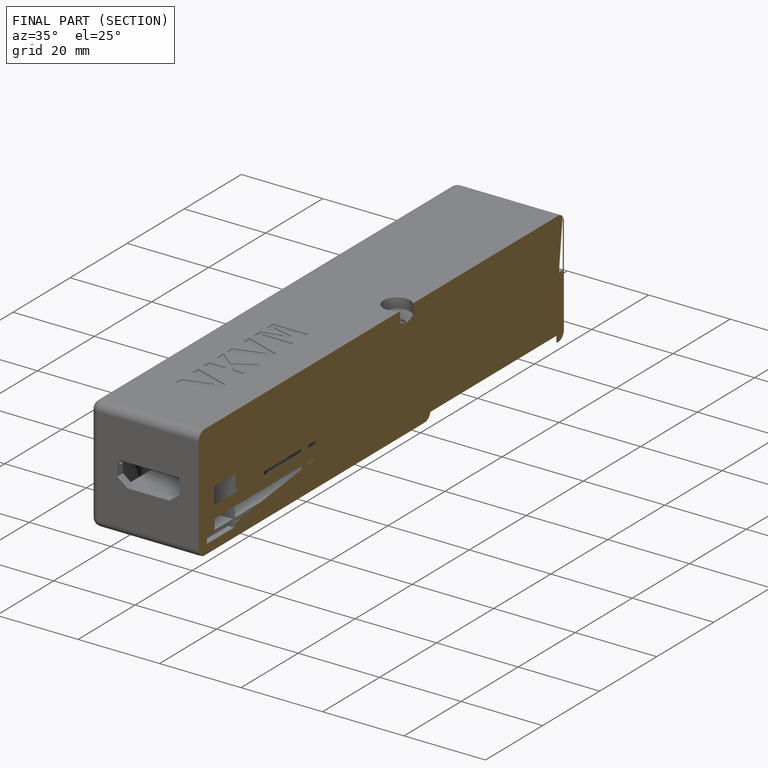
[diagram: finished part — half-section view (interior)]
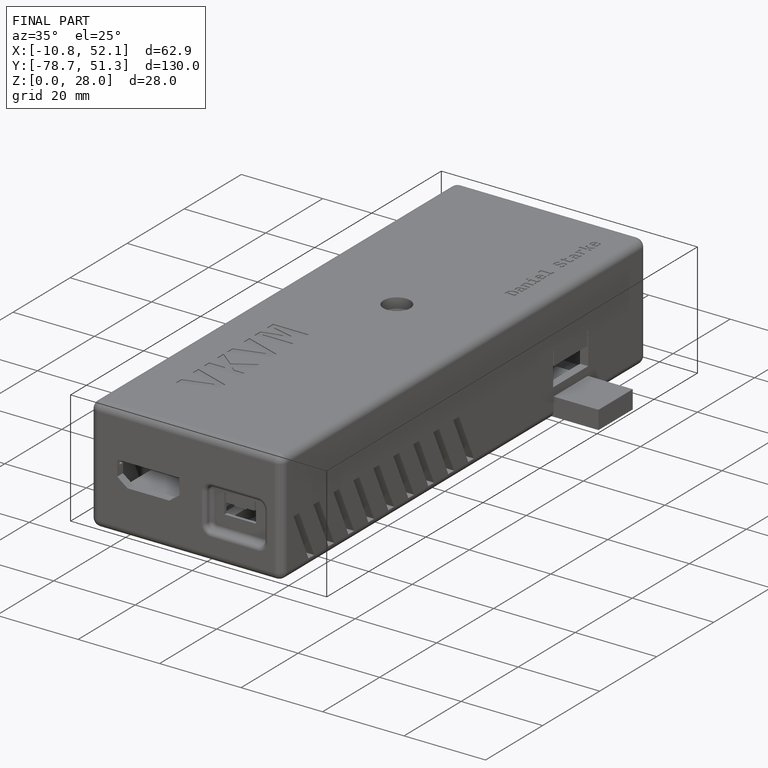
[diagram: finished part — iso view with bounding-box wireframe]
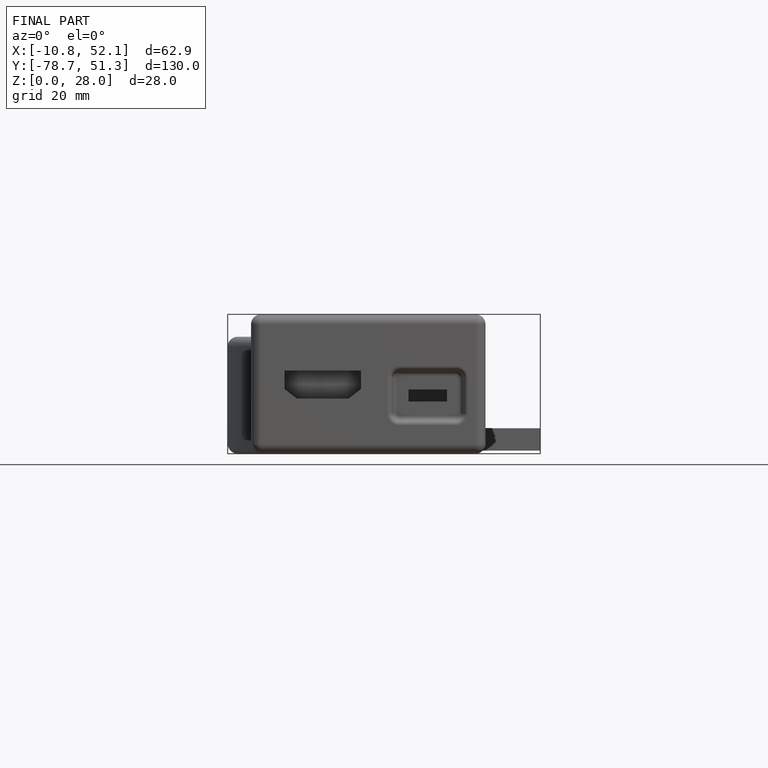
[diagram: finished part — front view with bounding-box wireframe]
